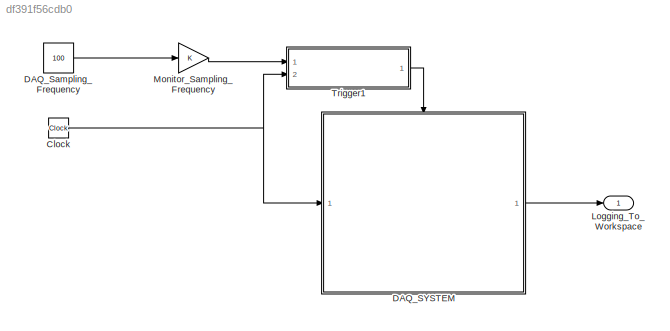
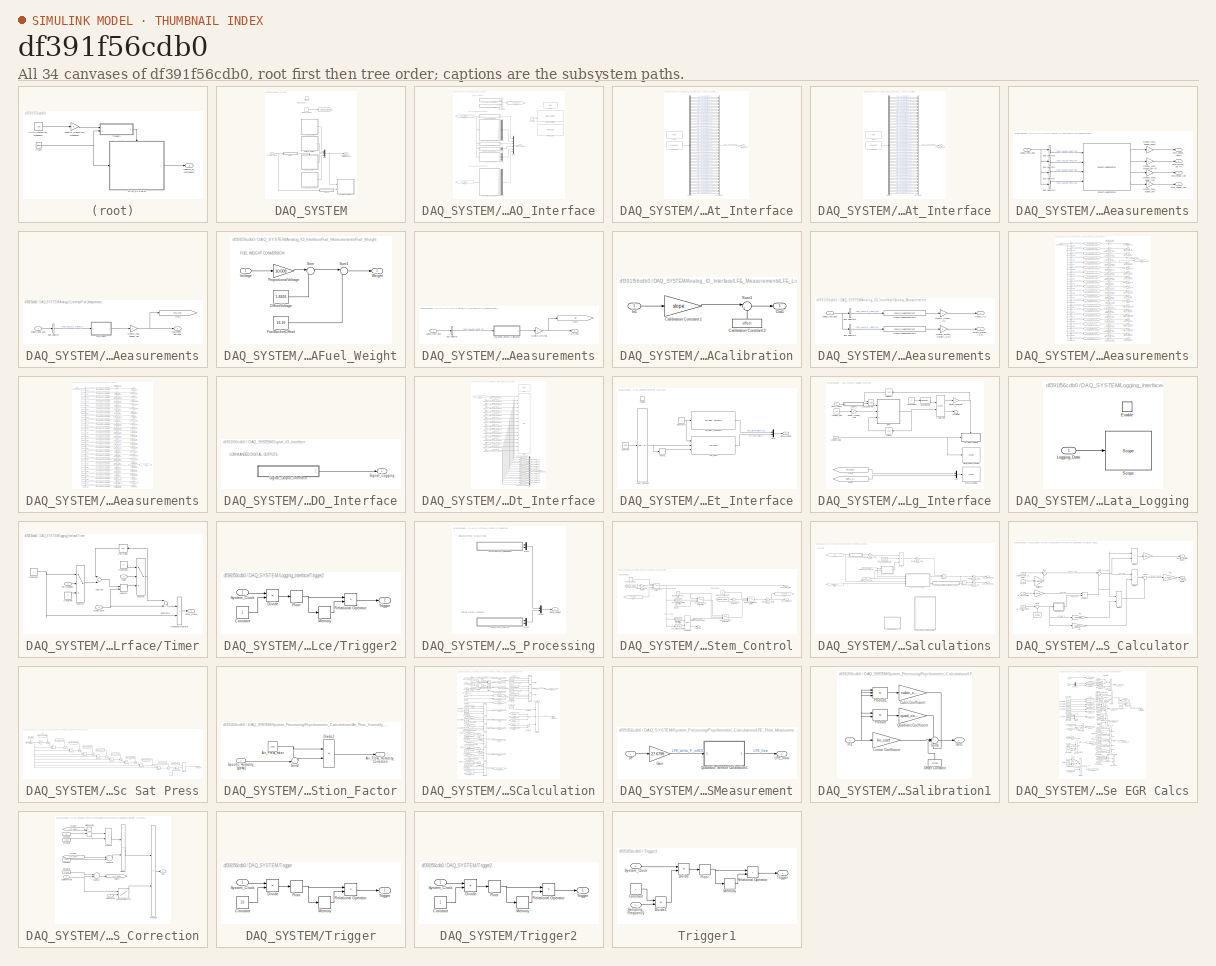
[diagram: thumbnail index - all 34 canvases of the model, root first then tree order]
MODEL slx_df391f56cdb0
KIND model
CONFIG AbsTol = auto
CONFIG EnableMultiTasking = on
CONFIG FixedStep = 0.001
CONFIG MaxStep = auto
CONFIG MinStep = auto
CONFIG RelTol = 1e-3
CONFIG SampleTimeConstraint = Unconstrained
CONFIG Solver = ode4
CONFIG SolverName = ode4
CONFIG StartTime = 0.0
CONFIG StopTime = 10000
BLOCK [Clock] Clock
BLOCK [SubSystem] DAQ_SYSTEM
  Ports = [1, 1, 0, 1]
  RequestExecContextInheritance = off
  Variant = off
BLOCK [Goto] DAQ_SYSTEM/ 
  GotoTag = Debug_Mode
  TagVisibility = global
BLOCK [SubSystem] DAQ_SYSTEM/Analog_IO_Interface
  Ports = [0, 1]
  RequestExecContextInheritance = off
  Variant = off
BLOCK [BusCreator] DAQ_SYSTEM/Analog_IO_Interface/Bus Creator
  DisplayOption = bar
  InheritFromInputs = on
  Inputs = 2
  Ports = [2, 1]
BLOCK [SubSystem] DAQ_SYSTEM/Analog_IO_Interface/CH1_Analog_Input_Interface
  Ports = [0, 1]
  RequestExecContextInheritance = off
  Variant = off
BLOCK [Reference] DAQ_SYSTEM/Analog_IO_Interface/CH1_Analog_Input_Interface/Analog input  REF=speedgoatlib_IO106/Analog input
  Ports = [0, 1]
  SourceBlock = speedgoatlib_IO106/Analog input
  SourceProductName = Simulink Real-Time: Speedgoat I/O Driver Library
  SourceType = ad_IO106
BLOCK [BusCreator] DAQ_SYSTEM/Analog_IO_Interface/CH1_Analog_Input_Interface/Bus Creator
  DisplayOption = bar
  InheritFromInputs = on
  Inputs = 64
  Ports = [64, 1]
BLOCK [Outport] DAQ_SYSTEM/Analog_IO_Interface/CH1_Analog_Input_Interface/CH1_ANALOG_INPUTS
  IconDisplay = Port number
BLOCK [Demux] DAQ_SYSTEM/Analog_IO_Interface/CH1_Analog_Input_Interface/Demux
  DisplayOption = bar
  Outputs = 64
  Ports = [1, 64]
BLOCK [Reference] DAQ_SYSTEM/Analog_IO_Interface/CH1_Analog_Input_Interface/Setup  REF=speedgoatlib_IO106/Setup
  Ports = []
  SourceBlock = speedgoatlib_IO106/Setup
  SourceProductName = Simulink Real-Time: Speedgoat I/O Driver Library
  SourceType = setup_IO106
BLOCK [SubSystem] DAQ_SYSTEM/Analog_IO_Interface/CH2_Analog_Input_Interface
  Ports = [0, 1]
  RequestExecContextInheritance = off
  Variant = off
BLOCK [Reference] DAQ_SYSTEM/Analog_IO_Interface/CH2_Analog_Input_Interface/Analog input  REF=speedgoatlib_IO106/Analog input
  Ports = [0, 1]
  SourceBlock = speedgoatlib_IO106/Analog input
  SourceProductName = Simulink Real-Time: Speedgoat I/O Driver Library
  SourceType = ad_IO106
BLOCK [BusCreator] DAQ_SYSTEM/Analog_IO_Interface/CH2_Analog_Input_Interface/Bus Creator
  DisplayOption = bar
  InheritFromInputs = on
  Inputs = 64
  Ports = [64, 1]
BLOCK [Outport] DAQ_SYSTEM/Analog_IO_Interface/CH2_Analog_Input_Interface/CH2_ANALOG_INPUTS
  IconDisplay = Port number
BLOCK [Demux] DAQ_SYSTEM/Analog_IO_Interface/CH2_Analog_Input_Interface/Demux
  DisplayOption = bar
  Outputs = 64
  Ports = [1, 64]
BLOCK [Reference] DAQ_SYSTEM/Analog_IO_Interface/CH2_Analog_Input_Interface/Setup  REF=speedgoatlib_IO106/Setup
  Ports = []
  SourceBlock = speedgoatlib_IO106/Setup
  SourceProductName = Simulink Real-Time: Speedgoat I/O Driver Library
  SourceType = setup_IO106
BLOCK [Constant] DAQ_SYSTEM/Analog_IO_Interface/Constant1
  Value = .2
BLOCK [SubSystem] DAQ_SYSTEM/Analog_IO_Interface/Dyno_Measurements
  Ports = [1, 4]
  RequestExecContextInheritance = off
  Variant = off
BLOCK [Inport] DAQ_SYSTEM/Analog_IO_Interface/Dyno_Measurements/Analog_Input_Bus
  IconDisplay = Port number
BLOCK [BusSelector] DAQ_SYSTEM/Analog_IO_Interface/Dyno_Measurements/Bus Selector1
  OutputAsBus = off
  OutputSignals = CH1_ANALOG_INPUTS.CH1_ANALOG_INPUT_34
  Ports = [1, 1]
BLOCK [BusSelector] DAQ_SYSTEM/Analog_IO_Interface/Dyno_Measurements/Bus Selector2
  OutputAsBus = off
  OutputSignals = CH1_ANALOG_INPUTS.CH1_ANALOG_INPUT_35
  Ports = [1, 1]
BLOCK [BusSelector] DAQ_SYSTEM/Analog_IO_Interface/Dyno_Measurements/Bus Selector3
  OutputAsBus = off
  OutputSignals = CH1_ANALOG_INPUTS.CH1_ANALOG_INPUT_36
  Ports = [1, 1]
BLOCK [BusSelector] DAQ_SYSTEM/Analog_IO_Interface/Dyno_Measurements/Bus Selector5
  OutputAsBus = off
  OutputSignals = CH1_ANALOG_INPUTS.CH1_ANALOG_INPUT_33
  Ports = [1, 1]
BLOCK [Reference] DAQ_SYSTEM/Analog_IO_Interface/Dyno_Measurements/ConvertAnalogToDyno  REF=NEXTCAR_Library/ConvertAnalogToDyno
  Ports = [4, 4]
  SourceBlock = NEXTCAR_Library/ConvertAnalogToDyno
  SourceProductName = NEXTCAR Library
  SourceType = Voltage [V] to Dyno Parameter Conversion
BLOCK [Outport] DAQ_SYSTEM/Analog_IO_Interface/Dyno_Measurements/Dyno_Power_[HP]
  IconDisplay = Port number
  Port = 3
BLOCK [Outport] DAQ_SYSTEM/Analog_IO_Interface/Dyno_Measurements/Dyno_Speed_[RPM]
  IconDisplay = Port number
BLOCK [Outport] DAQ_SYSTEM/Analog_IO_Interface/Dyno_Measurements/Dyno_Torque_[lbf-ft]
  IconDisplay = Port number
  Port = 2
BLOCK [Outport] DAQ_SYSTEM/Analog_IO_Interface/Dyno_Measurements/Dyno_Trigger_[int]
  IconDisplay = Port number
  Port = 4
BLOCK [Gain] DAQ_SYSTEM/Analog_IO_Interface/Dyno_Measurements/Monitor_Dyno_Power_[HP]
  OutDataTypeStr = Inherit: Inherit via internal rule
  ParamDataTypeStr = Inherit: Inherit via internal rule
  SaturateOnIntegerOverflow = off
BLOCK [Gain] DAQ_SYSTEM/Analog_IO_Interface/Dyno_Measurements/Monitor_Dyno_Speed_[RPM]
  OutDataTypeStr = Inherit: Inherit via internal rule
  ParamDataTypeStr = Inherit: Inherit via internal rule
  SaturateOnIntegerOverflow = off
BLOCK [Gain] DAQ_SYSTEM/Analog_IO_Interface/Dyno_Measurements/Monitor_Dyno_Torque_[lbf-ft]
  OutDataTypeStr = Inherit: Inherit via internal rule
  ParamDataTypeStr = Inherit: Inherit via internal rule
  SaturateOnIntegerOverflow = off
BLOCK [Gain] DAQ_SYSTEM/Analog_IO_Interface/Dyno_Measurements/Monitor_Dyno_Trigger_[int]
  OutDataTypeStr = Inherit: Inherit via internal rule
  ParamDataTypeStr = Inherit: Inherit via internal rule
  SaturateOnIntegerOverflow = off
BLOCK [From] DAQ_SYSTEM/Analog_IO_Interface/From5
  GotoTag = ANALOG_INPUT_BUS
  TagVisibility = global
BLOCK [From] DAQ_SYSTEM/Analog_IO_Interface/From6
  GotoTag = ANALOG_INPUT_BUS
  TagVisibility = global
BLOCK [SubSystem] DAQ_SYSTEM/Analog_IO_Interface/Fuel_Measurements
  Ports = [1, 1]
  RequestExecContextInheritance = off
  Variant = off
BLOCK [Inport] DAQ_SYSTEM/Analog_IO_Interface/Fuel_Measurements/Analog_Input_Bus 
  IconDisplay = Port number
BLOCK [BusSelector] DAQ_SYSTEM/Analog_IO_Interface/Fuel_Measurements/Bus Selector
  OutputAsBus = off
  OutputSignals = CH1_ANALOG_INPUTS.CH1_ANALOG_INPUT_1
  Ports = [1, 1]
BLOCK [SubSystem] DAQ_SYSTEM/Analog_IO_Interface/Fuel_Measurements/Fuel_Weight
  Ports = [1, 1]
  RequestExecContextInheritance = off
  Variant = off
BLOCK [Constant] DAQ_SYSTEM/Analog_IO_Interface/Fuel_Measurements/Fuel_Weight/FuelBucketOffset  
  Value = 16.16
BLOCK [Constant] DAQ_SYSTEM/Analog_IO_Interface/Fuel_Measurements/Fuel_Weight/OffsetVoltage 
  Value = 1.8826
BLOCK [Gain] DAQ_SYSTEM/Analog_IO_Interface/Fuel_Measurements/Fuel_Weight/ProportionalVoltage 
  Gain = 10.009
  OutDataTypeStr = Inherit: Inherit via internal rule
  ParamDataTypeStr = Inherit: Inherit via internal rule
  SaturateOnIntegerOverflow = off
BLOCK [Sum] DAQ_SYSTEM/Analog_IO_Interface/Fuel_Measurements/Fuel_Weight/Sum
  IconShape = round
  InputSameDT = off
  Inputs = |+-
  OutDataTypeStr = Inherit: Inherit via internal rule
  Ports = [2, 1]
  SaturateOnIntegerOverflow = off
BLOCK [Sum] DAQ_SYSTEM/Analog_IO_Interface/Fuel_Measurements/Fuel_Weight/Sum1
  IconShape = round
  InputSameDT = off
  Inputs = |+-
  OutDataTypeStr = Inherit: Inherit via internal rule
  Ports = [2, 1]
  SaturateOnIntegerOverflow = off
BLOCK [Inport] DAQ_SYSTEM/Analog_IO_Interface/Fuel_Measurements/Fuel_Weight/Voltage
  IconDisplay = Port number
BLOCK [Outport] DAQ_SYSTEM/Analog_IO_Interface/Fuel_Measurements/Fuel_Weight/Weight
  IconDisplay = Port number
BLOCK [Outport] DAQ_SYSTEM/Analog_IO_Interface/Fuel_Measurements/Fuel_Weight_[lb][kPa]
  IconDisplay = Port number
BLOCK [Goto] DAQ_SYSTEM/Analog_IO_Interface/Fuel_Measurements/Goto
  GotoTag = Fuel_Weight
BLOCK [Gain] DAQ_SYSTEM/Analog_IO_Interface/Fuel_Measurements/Monitor_Fuel_Weight_[lb]
  OutDataTypeStr = Inherit: Inherit via internal rule
  ParamDataTypeStr = Inherit: Inherit via internal rule
  SaturateOnIntegerOverflow = off
BLOCK [Goto] DAQ_SYSTEM/Analog_IO_Interface/Goto2
  GotoTag = ANALOG_INPUT_BUS
  TagVisibility = global
BLOCK [SubSystem] DAQ_SYSTEM/Analog_IO_Interface/LFE_Measurements
  Ports = [1, 1]
  RequestExecContextInheritance = off
  Variant = off
BLOCK [Inport] DAQ_SYSTEM/Analog_IO_Interface/LFE_Measurements/Analog_Input_Bus
  IconDisplay = Port number
BLOCK [BusSelector] DAQ_SYSTEM/Analog_IO_Interface/LFE_Measurements/Bus Selector
  OutputAsBus = off
  OutputSignals = CH1_ANALOG_INPUTS.CH1_ANALOG_INPUT_27
  Ports = [1, 1]
BLOCK [Outport] DAQ_SYSTEM/Analog_IO_Interface/LFE_Measurements/DP_[Psi]
  IconDisplay = Port number
BLOCK [Goto] DAQ_SYSTEM/Analog_IO_Interface/LFE_Measurements/Goto
  GotoTag = DP
  TagVisibility = global
BLOCK [SubSystem] DAQ_SYSTEM/Analog_IO_Interface/LFE_Measurements/LFE_Linear_Sensor_Calibration
  Ports = [1, 1]
  RequestExecContextInheritance = off
  Variant = off
BLOCK [Gain] DAQ_SYSTEM/Analog_IO_Interface/LFE_Measurements/LFE_Linear_Sensor_Calibration/Calibration Constant 1
  Gain = slope
BLOCK [Constant] DAQ_SYSTEM/Analog_IO_Interface/LFE_Measurements/LFE_Linear_Sensor_Calibration/Calibration Constant 2
  Value = offset
BLOCK [Inport] DAQ_SYSTEM/Analog_IO_Interface/LFE_Measurements/LFE_Linear_Sensor_Calibration/In1
  IconDisplay = Port number
BLOCK [Outport] DAQ_SYSTEM/Analog_IO_Interface/LFE_Measurements/LFE_Linear_Sensor_Calibration/Out1
  IconDisplay = Port number
BLOCK [Sum] DAQ_SYSTEM/Analog_IO_Interface/LFE_Measurements/LFE_Linear_Sensor_Calibration/Sum1
  IconShape = round
  Inputs = |++
  Ports = [2, 1]
BLOCK [Gain] DAQ_SYSTEM/Analog_IO_Interface/LFE_Measurements/Monitor_DP_[Psi]
  OutDataTypeStr = Inherit: Inherit via internal rule
  ParamDataTypeStr = Inherit: Inherit via internal rule
  SaturateOnIntegerOverflow = off
BLOCK [Mux] DAQ_SYSTEM/Analog_IO_Interface/Mux2
  DisplayOption = bar
  Inputs = 21
  Ports = [21, 1]
BLOCK [Mux] DAQ_SYSTEM/Analog_IO_Interface/Mux3
  DisplayOption = bar
  Ports = [4, 1]
BLOCK [Mux] DAQ_SYSTEM/Analog_IO_Interface/Mux4
  DisplayOption = bar
  Inputs = 2
  Ports = [2, 1]
BLOCK [Mux] DAQ_SYSTEM/Analog_IO_Interface/Mux5
  DisplayOption = bar
  Inputs = 26
  Ports = [26, 1]
BLOCK [Mux] DAQ_SYSTEM/Analog_IO_Interface/Mux6
  DisplayOption = bar
  Inputs = 6
  Ports = [6, 1]
BLOCK [SubSystem] DAQ_SYSTEM/Analog_IO_Interface/Opacity_Measurements
  Ports = [1, 2]
  RequestExecContextInheritance = off
  Variant = off
BLOCK [Inport] DAQ_SYSTEM/Analog_IO_Interface/Opacity_Measurements/Analog_Input_Bus
  IconDisplay = Port number
BLOCK [BusSelector] DAQ_SYSTEM/Analog_IO_Interface/Opacity_Measurements/Bus Selector1
  OutputAsBus = off
  OutputSignals = CH1_ANALOG_INPUTS.CH1_ANALOG_INPUT_30
  Ports = [1, 1]
BLOCK [BusSelector] DAQ_SYSTEM/Analog_IO_Interface/Opacity_Measurements/Bus Selector5
  OutputAsBus = off
  OutputSignals = CH1_ANALOG_INPUTS.CH1_ANALOG_INPUT_29
  Ports = [1, 1]
BLOCK [Reference] DAQ_SYSTEM/Analog_IO_Interface/Opacity_Measurements/ConvertAnalogToPercent1  REF=NEXTCAR_Library/ConvertAnalogToPercent
  Ports = [1, 1]
  SourceBlock = NEXTCAR_Library/ConvertAnalogToPercent
  SourceProductName = NEXTCAR Library
  SourceType = Voltage [V] to Percentage [%] Conversion
BLOCK [Reference] DAQ_SYSTEM/Analog_IO_Interface/Opacity_Measurements/ConvertAnalogToPercent2  REF=NEXTCAR_Library/ConvertAnalogToPercent
  Ports = [1, 1]
  SourceBlock = NEXTCAR_Library/ConvertAnalogToPercent
  SourceProductName = NEXTCAR Library
  SourceType = Voltage [V] to Percentage [%] Conversion
BLOCK [Gain] DAQ_SYSTEM/Analog_IO_Interface/Opacity_Measurements/Monitor_Opacity_[%]
  OutDataTypeStr = Inherit: Inherit via internal rule
  ParamDataTypeStr = Inherit: Inherit via internal rule
  SaturateOnIntegerOverflow = off
BLOCK [Gain] DAQ_SYSTEM/Analog_IO_Interface/Opacity_Measurements/Monitor_Smoke_Density_[1//m]
  OutDataTypeStr = Inherit: Inherit via internal rule
  ParamDataTypeStr = Inherit: Inherit via internal rule
  SaturateOnIntegerOverflow = off
BLOCK [Outport] DAQ_SYSTEM/Analog_IO_Interface/Opacity_Measurements/Opacity_[%]
  IconDisplay = Port number
BLOCK [Outport] DAQ_SYSTEM/Analog_IO_Interface/Opacity_Measurements/Smoke_Density_[1//m]
  IconDisplay = Port number
  Port = 2
BLOCK [Reference] DAQ_SYSTEM/Analog_IO_Interface/PWM Capture  REF=speedgoatlib_fpga_pwm/PWM Capture
  Commented = on
  Ports = [0, 3]
  SourceBlock = speedgoatlib_fpga_pwm/PWM Capture
  SourceProductName = Simulink Real-Time: Speedgoat I/O Driver Library
  SourceType = cap_fpga_1
BLOCK [Reference] DAQ_SYSTEM/Analog_IO_Interface/PWM generation (5)  REF=speedgoatlib_fpga_pwm/PWM generation (5)
  Ports = [2]
  SourceBlock = speedgoatlib_fpga_pwm/PWM generation (5)
  SourceProductName = Simulink Real-Time: Speedgoat I/O Driver Library
  SourceType = pwm_fpga_5
BLOCK [SubSystem] DAQ_SYSTEM/Analog_IO_Interface/Pressure_Measurements
  Ports = [1, 21]
  RequestExecContextInheritance = off
  Variant = off
BLOCK [Inport] DAQ_SYSTEM/Analog_IO_Interface/Pressure_Measurements/Analog_Input_Bus
  IconDisplay = Port number
BLOCK [Outport] DAQ_SYSTEM/Analog_IO_Interface/Pressure_Measurements/Block_Intake_Pressure_[kPa]
  IconDisplay = Port number
  Port = 20
BLOCK [Outport] DAQ_SYSTEM/Analog_IO_Interface/Pressure_Measurements/Blowby_Pressure_[kPa]
  IconDisplay = Port number
  Port = 9
BLOCK [BusSelector] DAQ_SYSTEM/Analog_IO_Interface/Pressure_Measurements/Bus Selector
  OutputAsBus = off
  OutputSignals = CH1_ANALOG_INPUTS.CH1_ANALOG_INPUT_7
  Ports = [1, 1]
BLOCK [BusSelector] DAQ_SYSTEM/Analog_IO_Interface/Pressure_Measurements/Bus Selector1
  OutputAsBus = off
  OutputSignals = CH1_ANALOG_INPUTS.CH1_ANALOG_INPUT_16
  Ports = [1, 1]
BLOCK [BusSelector] DAQ_SYSTEM/Analog_IO_Interface/Pressure_Measurements/Bus Selector10
  OutputAsBus = off
  OutputSignals = CH1_ANALOG_INPUTS.CH1_ANALOG_INPUT_17
  Ports = [1, 1]
BLOCK [BusSelector] DAQ_SYSTEM/Analog_IO_Interface/Pressure_Measurements/Bus Selector11
  OutputAsBus = off
  OutputSignals = CH1_ANALOG_INPUTS.CH1_ANALOG_INPUT_18
  Ports = [1, 1]
BLOCK [BusSelector] DAQ_SYSTEM/Analog_IO_Interface/Pressure_Measurements/Bus Selector12
  OutputAsBus = off
  OutputSignals = CH1_ANALOG_INPUTS.CH1_ANALOG_INPUT_19
  Ports = [1, 1]
BLOCK [BusSelector] DAQ_SYSTEM/Analog_IO_Interface/Pressure_Measurements/Bus Selector13
  OutputAsBus = off
  OutputSignals = CH1_ANALOG_INPUTS.CH1_ANALOG_INPUT_21
  Ports = [1, 1]
BLOCK [BusSelector] DAQ_SYSTEM/Analog_IO_Interface/Pressure_Measurements/Bus Selector14
  OutputAsBus = off
  OutputSignals = CH1_ANALOG_INPUTS.CH1_ANALOG_INPUT_22
  Ports = [1, 1]
BLOCK [BusSelector] DAQ_SYSTEM/Analog_IO_Interface/Pressure_Measurements/Bus Selector15
  OutputAsBus = off
  OutputSignals = CH1_ANALOG_INPUTS.CH1_ANALOG_INPUT_23
  Ports = [1, 1]
BLOCK [BusSelector] DAQ_SYSTEM/Analog_IO_Interface/Pressure_Measurements/Bus Selector16
  OutputAsBus = off
  OutputSignals = CH1_ANALOG_INPUTS.CH1_ANALOG_INPUT_24
  Ports = [1, 1]
BLOCK [BusSelector] DAQ_SYSTEM/Analog_IO_Interface/Pressure_Measurements/Bus Selector17
  OutputAsBus = off
  OutputSignals = CH1_ANALOG_INPUTS.CH1_ANALOG_INPUT_25
  Ports = [1, 1]
BLOCK [BusSelector] DAQ_SYSTEM/Analog_IO_Interface/Pressure_Measurements/Bus Selector18
  OutputAsBus = off
  OutputSignals = CH1_ANALOG_INPUTS.CH1_ANALOG_INPUT_3
  Ports = [1, 1]
BLOCK [BusSelector] DAQ_SYSTEM/Analog_IO_Interface/Pressure_Measurements/Bus Selector19
  OutputAsBus = off
  OutputSignals = CH1_ANALOG_INPUTS.CH1_ANALOG_INPUT_4
  Ports = [1, 1]
BLOCK [BusSelector] DAQ_SYSTEM/Analog_IO_Interface/Pressure_Measurements/Bus Selector2
  OutputAsBus = off
  OutputSignals = CH1_ANALOG_INPUTS.CH1_ANALOG_INPUT_12
  Ports = [1, 1]
BLOCK [BusSelector] DAQ_SYSTEM/Analog_IO_Interface/Pressure_Measurements/Bus Selector20
  OutputAsBus = off
  OutputSignals = CH1_ANALOG_INPUTS.CH1_ANALOG_INPUT_2
  Ports = [1, 1]
BLOCK [BusSelector] DAQ_SYSTEM/Analog_IO_Interface/Pressure_Measurements/Bus Selector3
  OutputAsBus = off
  OutputSignals = CH1_ANALOG_INPUTS.CH1_ANALOG_INPUT_26
  Ports = [1, 1]
BLOCK [BusSelector] DAQ_SYSTEM/Analog_IO_Interface/Pressure_Measurements/Bus Selector4
  OutputAsBus = off
  OutputSignals = CH1_ANALOG_INPUTS.CH1_ANALOG_INPUT_6
  Ports = [1, 1]
BLOCK [BusSelector] DAQ_SYSTEM/Analog_IO_Interface/Pressure_Measurements/Bus Selector5
  OutputAsBus = off
  OutputSignals = CH1_ANALOG_INPUTS.CH1_ANALOG_INPUT_8
  Ports = [1, 1]
BLOCK [BusSelector] DAQ_SYSTEM/Analog_IO_Interface/Pressure_Measurements/Bus Selector6
  OutputAsBus = off
  OutputSignals = CH1_ANALOG_INPUTS.CH1_ANALOG_INPUT_10
  Ports = [1, 1]
BLOCK [BusSelector] DAQ_SYSTEM/Analog_IO_Interface/Pressure_Measurements/Bus Selector7
  OutputAsBus = off
  OutputSignals = CH1_ANALOG_INPUTS.CH1_ANALOG_INPUT_11
  Ports = [1, 1]
BLOCK [BusSelector] DAQ_SYSTEM/Analog_IO_Interface/Pressure_Measurements/Bus Selector8
  OutputAsBus = off
  OutputSignals = CH1_ANALOG_INPUTS.CH1_ANALOG_INPUT_14
  Ports = [1, 1]
BLOCK [BusSelector] DAQ_SYSTEM/Analog_IO_Interface/Pressure_Measurements/Bus Selector9
  OutputAsBus = off
  OutputSignals = CH1_ANALOG_INPUTS.CH1_ANALOG_INPUT_15
  Ports = [1, 1]
BLOCK [Outport] DAQ_SYSTEM/Analog_IO_Interface/Pressure_Measurements/CAC_In_Pressure_[kPa]
  IconDisplay = Port number
  Port = 10
BLOCK [Outport] DAQ_SYSTEM/Analog_IO_Interface/Pressure_Measurements/CAC_Out_Pressure_[kPa]
  IconDisplay = Port number
  Port = 13
BLOCK [Outport] DAQ_SYSTEM/Analog_IO_Interface/Pressure_Measurements/Compressor_In_Pressure_[kPa]
  IconDisplay = Port number
  Port = 5
BLOCK [Outport] DAQ_SYSTEM/Analog_IO_Interface/Pressure_Measurements/Compressor_Out_Pressure_[kPa]
  IconDisplay = Port number
  Port = 11
BLOCK [Reference] DAQ_SYSTEM/Analog_IO_Interface/Pressure_Measurements/ConvertAnalogTokPa  REF=NEXTCAR_Library/ConvertAnalogTokPa
  Ports = [1, 1]
  SourceBlock = NEXTCAR_Library/ConvertAnalogTokPa
  SourceProductName = NEXTCAR Library
  SourceType = Voltage [V] to Pressure [kPa] Conversion
BLOCK [Reference] DAQ_SYSTEM/Analog_IO_Interface/Pressure_Measurements/ConvertAnalogTokPa1  REF=NEXTCAR_Library/ConvertAnalogTokPa
  Ports = [1, 1]
  SourceBlock = NEXTCAR_Library/ConvertAnalogTokPa
  SourceProductName = NEXTCAR Library
  SourceType = Voltage [V] to Pressure [kPa] Conversion
BLOCK [Reference] DAQ_SYSTEM/Analog_IO_Interface/Pressure_Measurements/ConvertAnalogTokPa10  REF=NEXTCAR_Library/ConvertAnalogTokPa
  Ports = [1, 1]
  SourceBlock = NEXTCAR_Library/ConvertAnalogTokPa
  SourceProductName = NEXTCAR Library
  SourceType = Voltage [V] to Pressure [kPa] Conversion
BLOCK [Reference] DAQ_SYSTEM/Analog_IO_Interface/Pressure_Measurements/ConvertAnalogTokPa11  REF=NEXTCAR_Library/ConvertAnalogTokPa
  Ports = [1, 1]
  SourceBlock = NEXTCAR_Library/ConvertAnalogTokPa
  SourceProductName = NEXTCAR Library
  SourceType = Voltage [V] to Pressure [kPa] Conversion
BLOCK [Reference] DAQ_SYSTEM/Analog_IO_Interface/Pressure_Measurements/ConvertAnalogTokPa12  REF=NEXTCAR_Library/ConvertAnalogTokPa
  Ports = [1, 1]
  SourceBlock = NEXTCAR_Library/ConvertAnalogTokPa
  SourceProductName = NEXTCAR Library
  SourceType = Voltage [V] to Pressure [kPa] Conversion
BLOCK [Reference] DAQ_SYSTEM/Analog_IO_Interface/Pressure_Measurements/ConvertAnalogTokPa13  REF=NEXTCAR_Library/ConvertAnalogTokPa
  Ports = [1, 1]
  SourceBlock = NEXTCAR_Library/ConvertAnalogTokPa
  SourceProductName = NEXTCAR Library
  SourceType = Voltage [V] to Pressure [kPa] Conversion
BLOCK [Reference] DAQ_SYSTEM/Analog_IO_Interface/Pressure_Measurements/ConvertAnalogTokPa14  REF=NEXTCAR_Library/ConvertAnalogTokPa
  Ports = [1, 1]
  SourceBlock = NEXTCAR_Library/ConvertAnalogTokPa
  SourceProductName = NEXTCAR Library
  SourceType = Voltage [V] to Pressure [kPa] Conversion
BLOCK [Reference] DAQ_SYSTEM/Analog_IO_Interface/Pressure_Measurements/ConvertAnalogTokPa15  REF=NEXTCAR_Library/ConvertAnalogTokPa
  Ports = [1, 1]
  SourceBlock = NEXTCAR_Library/ConvertAnalogTokPa
  SourceProductName = NEXTCAR Library
  SourceType = Voltage [V] to Pressure [kPa] Conversion
BLOCK [Reference] DAQ_SYSTEM/Analog_IO_Interface/Pressure_Measurements/ConvertAnalogTokPa16  REF=NEXTCAR_Library/ConvertAnalogTokPa
  Ports = [1, 1]
  SourceBlock = NEXTCAR_Library/ConvertAnalogTokPa
  SourceProductName = NEXTCAR Library
  SourceType = Voltage [V] to Pressure [kPa] Conversion
BLOCK [Reference] DAQ_SYSTEM/Analog_IO_Interface/Pressure_Measurements/ConvertAnalogTokPa17  REF=NEXTCAR_Library/ConvertAnalogTokPa
  Ports = [1, 1]
  SourceBlock = NEXTCAR_Library/ConvertAnalogTokPa
  SourceProductName = NEXTCAR Library
  SourceType = Voltage [V] to Pressure [kPa] Conversion
BLOCK [Reference] DAQ_SYSTEM/Analog_IO_Interface/Pressure_Measurements/ConvertAnalogTokPa18  REF=NEXTCAR_Library/ConvertAnalogTokPa
  Ports = [1, 1]
  SourceBlock = NEXTCAR_Library/ConvertAnalogTokPa
  SourceProductName = NEXTCAR Library
  SourceType = Voltage [V] to Pressure [kPa] Conversion
BLOCK [Reference] DAQ_SYSTEM/Analog_IO_Interface/Pressure_Measurements/ConvertAnalogTokPa19  REF=NEXTCAR_Library/ConvertAnalogTokPa
  Ports = [1, 1]
  SourceBlock = NEXTCAR_Library/ConvertAnalogTokPa
  SourceProductName = NEXTCAR Library
  SourceType = Voltage [V] to Pressure [kPa] Conversion
BLOCK [Reference] DAQ_SYSTEM/Analog_IO_Interface/Pressure_Measurements/ConvertAnalogTokPa2  REF=NEXTCAR_Library/ConvertAnalogTokPa
  Ports = [1, 1]
  SourceBlock = NEXTCAR_Library/ConvertAnalogTokPa
  SourceProductName = NEXTCAR Library
  SourceType = Voltage [V] to Pressure [kPa] Conversion
BLOCK [Reference] DAQ_SYSTEM/Analog_IO_Interface/Pressure_Measurements/ConvertAnalogTokPa20  REF=NEXTCAR_Library/ConvertAnalogTokPa
  Ports = [1, 1]
  SourceBlock = NEXTCAR_Library/ConvertAnalogTokPa
  SourceProductName = NEXTCAR Library
  SourceType = Voltage [V] to Pressure [kPa] Conversion
BLOCK [Reference] DAQ_SYSTEM/Analog_IO_Interface/Pressure_Measurements/ConvertAnalogTokPa3  REF=NEXTCAR_Library/ConvertAnalogTokPa
  Ports = [1, 1]
  SourceBlock = NEXTCAR_Library/ConvertAnalogTokPa
  SourceProductName = NEXTCAR Library
  SourceType = Voltage [V] to Pressure [kPa] Conversion
BLOCK [Reference] DAQ_SYSTEM/Analog_IO_Interface/Pressure_Measurements/ConvertAnalogTokPa4  REF=NEXTCAR_Library/ConvertAnalogTokPa
  Ports = [1, 1]
  SourceBlock = NEXTCAR_Library/ConvertAnalogTokPa
  SourceProductName = NEXTCAR Library
  SourceType = Voltage [V] to Pressure [kPa] Conversion
BLOCK [Reference] DAQ_SYSTEM/Analog_IO_Interface/Pressure_Measurements/ConvertAnalogTokPa5  REF=NEXTCAR_Library/ConvertAnalogTokPa
  Ports = [1, 1]
  SourceBlock = NEXTCAR_Library/ConvertAnalogTokPa
  SourceProductName = NEXTCAR Library
  SourceType = Voltage [V] to Pressure [kPa] Conversion
BLOCK [Reference] DAQ_SYSTEM/Analog_IO_Interface/Pressure_Measurements/ConvertAnalogTokPa6  REF=NEXTCAR_Library/ConvertAnalogTokPa
  Ports = [1, 1]
  SourceBlock = NEXTCAR_Library/ConvertAnalogTokPa
  SourceProductName = NEXTCAR Library
  SourceType = Voltage [V] to Pressure [kPa] Conversion
BLOCK [Reference] DAQ_SYSTEM/Analog_IO_Interface/Pressure_Measurements/ConvertAnalogTokPa7  REF=NEXTCAR_Library/ConvertAnalogTokPa
  Ports = [1, 1]
  SourceBlock = NEXTCAR_Library/ConvertAnalogTokPa
  SourceProductName = NEXTCAR Library
  SourceType = Voltage [V] to Pressure [kPa] Conversion
BLOCK [Reference] DAQ_SYSTEM/Analog_IO_Interface/Pressure_Measurements/ConvertAnalogTokPa8  REF=NEXTCAR_Library/ConvertAnalogTokPa
  Ports = [1, 1]
  SourceBlock = NEXTCAR_Library/ConvertAnalogTokPa
  SourceProductName = NEXTCAR Library
  SourceType = Voltage [V] to Pressure [kPa] Conversion
BLOCK [Reference] DAQ_SYSTEM/Analog_IO_Interface/Pressure_Measurements/ConvertAnalogTokPa9  REF=NEXTCAR_Library/ConvertAnalogTokPa
  Ports = [1, 1]
  SourceBlock = NEXTCAR_Library/ConvertAnalogTokPa
  SourceProductName = NEXTCAR Library
  SourceType = Voltage [V] to Pressure [kPa] Conversion
BLOCK [Outport] DAQ_SYSTEM/Analog_IO_Interface/Pressure_Measurements/Coolant_In_Pressure_[kPa]
  IconDisplay = Port number
  Port = 17
BLOCK [Outport] DAQ_SYSTEM/Analog_IO_Interface/Pressure_Measurements/Coolant_Out_Pressure_[kPa]
  IconDisplay = Port number
  Port = 21
BLOCK [Outport] DAQ_SYSTEM/Analog_IO_Interface/Pressure_Measurements/Crank_Case_Pressure_[kPa]
  IconDisplay = Port number
  Port = 4
BLOCK [Outport] DAQ_SYSTEM/Analog_IO_Interface/Pressure_Measurements/EGR_Bypass_Out_Pressure_[kPa]
  IconDisplay = Port number
  Port = 14
BLOCK [Outport] DAQ_SYSTEM/Analog_IO_Interface/Pressure_Measurements/EGR_Coolant_In_Pressure_[kPa]
  IconDisplay = Port number
  Port = 18
BLOCK [Outport] DAQ_SYSTEM/Analog_IO_Interface/Pressure_Measurements/EGR_Coolant_Out_Pressure_[kPa]
  IconDisplay = Port number
  Port = 19
BLOCK [Outport] DAQ_SYSTEM/Analog_IO_Interface/Pressure_Measurements/EGR_Cooler_Out_Pressure_[kPa]
  IconDisplay = Port number
  Port = 16
BLOCK [Outport] DAQ_SYSTEM/Analog_IO_Interface/Pressure_Measurements/EGR_In_Pressure_[kPa]
  IconDisplay = Port number
  Port = 6
BLOCK [Outport] DAQ_SYSTEM/Analog_IO_Interface/Pressure_Measurements/Fuel_Pump_In_Pressure_[kPa]
  IconDisplay = Port number
  Port = 2
BLOCK [Outport] DAQ_SYSTEM/Analog_IO_Interface/Pressure_Measurements/Fuel_Return_Pressure_[kPa]
  IconDisplay = Port number
  Port = 3
BLOCK [Goto] DAQ_SYSTEM/Analog_IO_Interface/Pressure_Measurements/Goto
  GotoTag = Compressor_In_Pressure
  TagVisibility = global
BLOCK [Outport] DAQ_SYSTEM/Analog_IO_Interface/Pressure_Measurements/Intake_Manifold_Pressure_[kPa]
  IconDisplay = Port number
  Port = 15
BLOCK [Gain] DAQ_SYSTEM/Analog_IO_Interface/Pressure_Measurements/Monitor_Block_Intake_Pressure_[kPa]
  OutDataTypeStr = Inherit: Inherit via internal rule
  ParamDataTypeStr = Inherit: Inherit via internal rule
  SaturateOnIntegerOverflow = off
BLOCK [Gain] DAQ_SYSTEM/Analog_IO_Interface/Pressure_Measurements/Monitor_Blowby_Pressure_[kPa]
  OutDataTypeStr = Inherit: Inherit via internal rule
  ParamDataTypeStr = Inherit: Inherit via internal rule
  SaturateOnIntegerOverflow = off
BLOCK [Gain] DAQ_SYSTEM/Analog_IO_Interface/Pressure_Measurements/Monitor_CAC_In_Pressure_[kPa]
  OutDataTypeStr = Inherit: Inherit via internal rule
  ParamDataTypeStr = Inherit: Inherit via internal rule
  SaturateOnIntegerOverflow = off
BLOCK [Gain] DAQ_SYSTEM/Analog_IO_Interface/Pressure_Measurements/Monitor_CAC_Out_Pressure_[kPa]
  OutDataTypeStr = Inherit: Inherit via internal rule
  ParamDataTypeStr = Inherit: Inherit via internal rule
  SaturateOnIntegerOverflow = off
BLOCK [Gain] DAQ_SYSTEM/Analog_IO_Interface/Pressure_Measurements/Monitor_Compressor_In_Pressure_[kPa]
  OutDataTypeStr = Inherit: Inherit via internal rule
  ParamDataTypeStr = Inherit: Inherit via internal rule
  SaturateOnIntegerOverflow = off
BLOCK [Gain] DAQ_SYSTEM/Analog_IO_Interface/Pressure_Measurements/Monitor_Compressor_Out_Pressure_[kPa]
  OutDataTypeStr = Inherit: Inherit via internal rule
  ParamDataTypeStr = Inherit: Inherit via internal rule
  SaturateOnIntegerOverflow = off
BLOCK [Gain] DAQ_SYSTEM/Analog_IO_Interface/Pressure_Measurements/Monitor_Coolant_In_Pressure_[kPa]
  OutDataTypeStr = Inherit: Inherit via internal rule
  ParamDataTypeStr = Inherit: Inherit via internal rule
  SaturateOnIntegerOverflow = off
BLOCK [Gain] DAQ_SYSTEM/Analog_IO_Interface/Pressure_Measurements/Monitor_Coolant_Out_Pressure_[kPa]
  OutDataTypeStr = Inherit: Inherit via internal rule
  ParamDataTypeStr = Inherit: Inherit via internal rule
  SaturateOnIntegerOverflow = off
BLOCK [Gain] DAQ_SYSTEM/Analog_IO_Interface/Pressure_Measurements/Monitor_Crank_Case_Pressure_[kPa]
  OutDataTypeStr = Inherit: Inherit via internal rule
  ParamDataTypeStr = Inherit: Inherit via internal rule
  SaturateOnIntegerOverflow = off
BLOCK [Gain] DAQ_SYSTEM/Analog_IO_Interface/Pressure_Measurements/Monitor_EGR_Bypass_Out_Pressure_[kPa]
  OutDataTypeStr = Inherit: Inherit via internal rule
  ParamDataTypeStr = Inherit: Inherit via internal rule
  SaturateOnIntegerOverflow = off
BLOCK [Gain] DAQ_SYSTEM/Analog_IO_Interface/Pressure_Measurements/Monitor_EGR_Coolant_In_Pressure_[kPa]
  OutDataTypeStr = Inherit: Inherit via internal rule
  ParamDataTypeStr = Inherit: Inherit via internal rule
  SaturateOnIntegerOverflow = off
BLOCK [Gain] DAQ_SYSTEM/Analog_IO_Interface/Pressure_Measurements/Monitor_EGR_Coolant_Out_Pressure_[kPa]
  OutDataTypeStr = Inherit: Inherit via internal rule
  ParamDataTypeStr = Inherit: Inherit via internal rule
  SaturateOnIntegerOverflow = off
BLOCK [Gain] DAQ_SYSTEM/Analog_IO_Interface/Pressure_Measurements/Monitor_EGR_Cooler_Out_Pressure_[kPa]
  OutDataTypeStr = Inherit: Inherit via internal rule
  ParamDataTypeStr = Inherit: Inherit via internal rule
  SaturateOnIntegerOverflow = off
BLOCK [Gain] DAQ_SYSTEM/Analog_IO_Interface/Pressure_Measurements/Monitor_EGR_In_Pressure_[kPa]
  OutDataTypeStr = Inherit: Inherit via internal rule
  ParamDataTypeStr = Inherit: Inherit via internal rule
  SaturateOnIntegerOverflow = off
BLOCK [Gain] DAQ_SYSTEM/Analog_IO_Interface/Pressure_Measurements/Monitor_Fuel_Pump_In_Pressure_[kPa]
  OutDataTypeStr = Inherit: Inherit via internal rule
  ParamDataTypeStr = Inherit: Inherit via internal rule
  SaturateOnIntegerOverflow = off
BLOCK [Gain] DAQ_SYSTEM/Analog_IO_Interface/Pressure_Measurements/Monitor_Fuel_Return_Pressure_[kPa]
  OutDataTypeStr = Inherit: Inherit via internal rule
  ParamDataTypeStr = Inherit: Inherit via internal rule
  SaturateOnIntegerOverflow = off
BLOCK [Gain] DAQ_SYSTEM/Analog_IO_Interface/Pressure_Measurements/Monitor_Intake_Manifold_Pressure_[kPa]
  OutDataTypeStr = Inherit: Inherit via internal rule
  ParamDataTypeStr = Inherit: Inherit via internal rule
  SaturateOnIntegerOverflow = off
BLOCK [Gain] DAQ_SYSTEM/Analog_IO_Interface/Pressure_Measurements/Monitor_Oil_Refill_Pressure_[kPa]
  OutDataTypeStr = Inherit: Inherit via internal rule
  ParamDataTypeStr = Inherit: Inherit via internal rule
  SaturateOnIntegerOverflow = off
BLOCK [Gain] DAQ_SYSTEM/Analog_IO_Interface/Pressure_Measurements/Monitor_Turbine_Front_Pressure_[kPa]
  OutDataTypeStr = Inherit: Inherit via internal rule
  ParamDataTypeStr = Inherit: Inherit via internal rule
  SaturateOnIntegerOverflow = off
BLOCK [Gain] DAQ_SYSTEM/Analog_IO_Interface/Pressure_Measurements/Monitor_Turbine_Out_Pressure_[kPa]
  OutDataTypeStr = Inherit: Inherit via internal rule
  ParamDataTypeStr = Inherit: Inherit via internal rule
  SaturateOnIntegerOverflow = off
BLOCK [Gain] DAQ_SYSTEM/Analog_IO_Interface/Pressure_Measurements/Monitor_Turbine_Rear_Pressure_[kPa]
  OutDataTypeStr = Inherit: Inherit via internal rule
  ParamDataTypeStr = Inherit: Inherit via internal rule
  SaturateOnIntegerOverflow = off
BLOCK [Outport] DAQ_SYSTEM/Analog_IO_Interface/Pressure_Measurements/Oil_Refill_Pressure_[kPa]
  IconDisplay = Port number
BLOCK [Outport] DAQ_SYSTEM/Analog_IO_Interface/Pressure_Measurements/Turbine_Front_Pressure_[kPa]
  IconDisplay = Port number
  Port = 7
BLOCK [Outport] DAQ_SYSTEM/Analog_IO_Interface/Pressure_Measurements/Turbine_Out_Pressure_[kPa]
  IconDisplay = Port number
  Port = 12
BLOCK [Outport] DAQ_SYSTEM/Analog_IO_Interface/Pressure_Measurements/Turbine_Rear_Pressure_[kPa]
  IconDisplay = Port number
  Port = 8
BLOCK [Reference] DAQ_SYSTEM/Analog_IO_Interface/Setup  REF=speedgoatlib_fpga/Setup/Setup
  Ports = []
  SourceBlock = speedgoatlib_fpga/Setup/Setup
  SourceProductName = Simulink Real-Time: Speedgoat I/O Driver Library
  SourceType = setup_fpga_3
BLOCK [Outport] DAQ_SYSTEM/Analog_IO_Interface/Signal_Logging
  IconDisplay = Port number
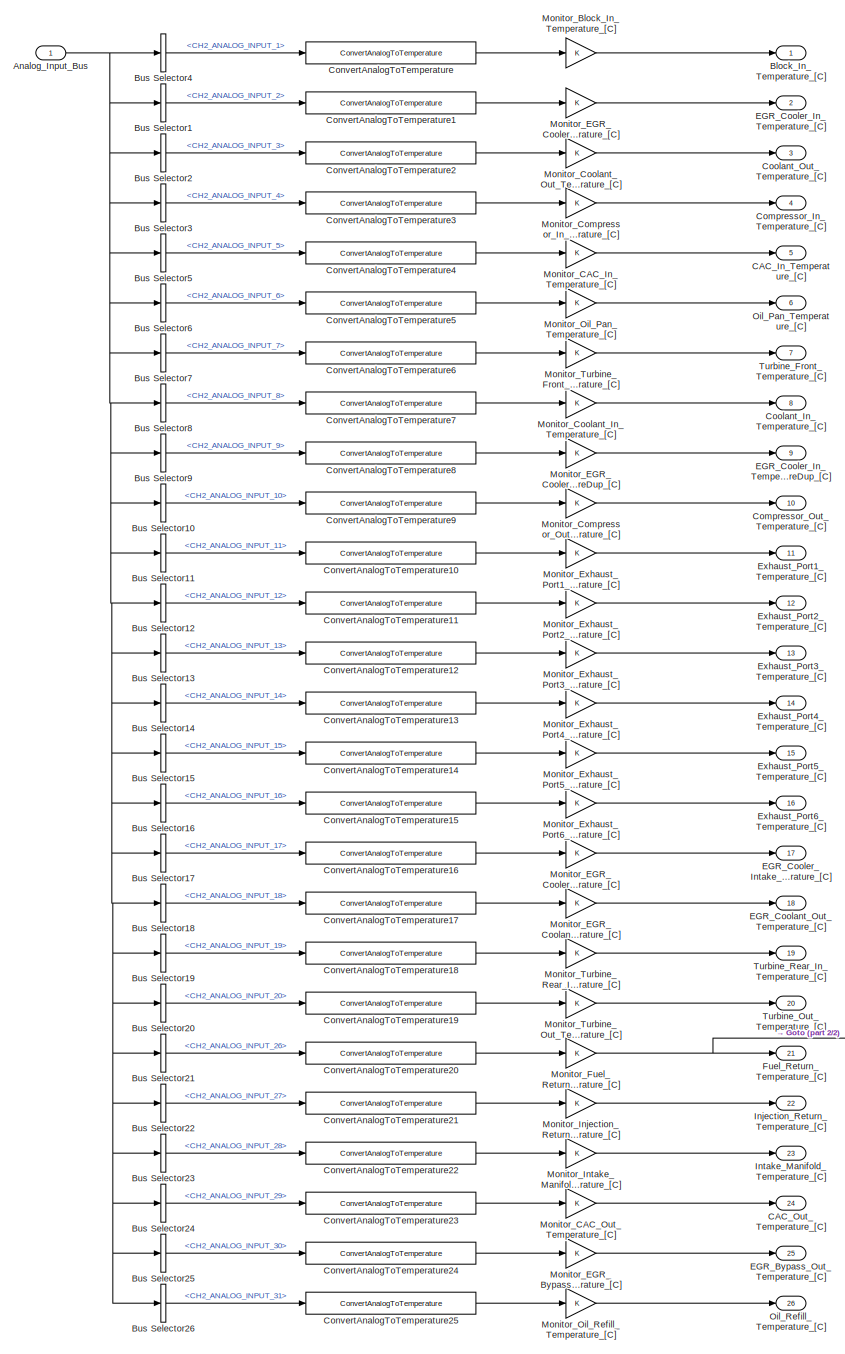
[diagram: DAQ_SYSTEM/Analog_IO_Interface/Temperature_Measurements - part 1/2, most of the canvas]
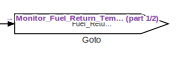
[diagram: DAQ_SYSTEM/Analog_IO_Interface/Temperature_Measurements - part 2/2, bottom right region]
BLOCK [SubSystem] DAQ_SYSTEM/Analog_IO_Interface/Temperature_Measurements
  Ports = [1, 26]
  RequestExecContextInheritance = off
  Variant = off
BLOCK [Inport] DAQ_SYSTEM/Analog_IO_Interface/Temperature_Measurements/Analog_Input_Bus
  IconDisplay = Port number
BLOCK [Outport] DAQ_SYSTEM/Analog_IO_Interface/Temperature_Measurements/Block_In_Temperature_[C]
  IconDisplay = Port number
BLOCK [BusSelector] DAQ_SYSTEM/Analog_IO_Interface/Temperature_Measurements/Bus Selector1
  OutputAsBus = off
  OutputSignals = CH2_ANALOG_INPUTS.CH2_ANALOG_INPUT_2
  Ports = [1, 1]
BLOCK [BusSelector] DAQ_SYSTEM/Analog_IO_Interface/Temperature_Measurements/Bus Selector10
  OutputAsBus = off
  OutputSignals = CH2_ANALOG_INPUTS.CH2_ANALOG_INPUT_10
  Ports = [1, 1]
BLOCK [BusSelector] DAQ_SYSTEM/Analog_IO_Interface/Temperature_Measurements/Bus Selector11
  OutputAsBus = off
  OutputSignals = CH2_ANALOG_INPUTS.CH2_ANALOG_INPUT_11
  Ports = [1, 1]
BLOCK [BusSelector] DAQ_SYSTEM/Analog_IO_Interface/Temperature_Measurements/Bus Selector12
  OutputAsBus = off
  OutputSignals = CH2_ANALOG_INPUTS.CH2_ANALOG_INPUT_12
  Ports = [1, 1]
BLOCK [BusSelector] DAQ_SYSTEM/Analog_IO_Interface/Temperature_Measurements/Bus Selector13
  OutputAsBus = off
  OutputSignals = CH2_ANALOG_INPUTS.CH2_ANALOG_INPUT_13
  Ports = [1, 1]
BLOCK [BusSelector] DAQ_SYSTEM/Analog_IO_Interface/Temperature_Measurements/Bus Selector14
  OutputAsBus = off
  OutputSignals = CH2_ANALOG_INPUTS.CH2_ANALOG_INPUT_14
  Ports = [1, 1]
BLOCK [BusSelector] DAQ_SYSTEM/Analog_IO_Interface/Temperature_Measurements/Bus Selector15
  OutputAsBus = off
  OutputSignals = CH2_ANALOG_INPUTS.CH2_ANALOG_INPUT_15
  Ports = [1, 1]
BLOCK [BusSelector] DAQ_SYSTEM/Analog_IO_Interface/Temperature_Measurements/Bus Selector16
  OutputAsBus = off
  OutputSignals = CH2_ANALOG_INPUTS.CH2_ANALOG_INPUT_16
  Ports = [1, 1]
BLOCK [BusSelector] DAQ_SYSTEM/Analog_IO_Interface/Temperature_Measurements/Bus Selector17
  OutputAsBus = off
  OutputSignals = CH2_ANALOG_INPUTS.CH2_ANALOG_INPUT_17
  Ports = [1, 1]
BLOCK [BusSelector] DAQ_SYSTEM/Analog_IO_Interface/Temperature_Measurements/Bus Selector18
  OutputAsBus = off
  OutputSignals = CH2_ANALOG_INPUTS.CH2_ANALOG_INPUT_18
  Ports = [1, 1]
BLOCK [BusSelector] DAQ_SYSTEM/Analog_IO_Interface/Temperature_Measurements/Bus Selector19
  OutputAsBus = off
  OutputSignals = CH2_ANALOG_INPUTS.CH2_ANALOG_INPUT_19
  Ports = [1, 1]
BLOCK [BusSelector] DAQ_SYSTEM/Analog_IO_Interface/Temperature_Measurements/Bus Selector2
  OutputAsBus = off
  OutputSignals = CH2_ANALOG_INPUTS.CH2_ANALOG_INPUT_3
  Ports = [1, 1]
BLOCK [BusSelector] DAQ_SYSTEM/Analog_IO_Interface/Temperature_Measurements/Bus Selector20
  OutputAsBus = off
  OutputSignals = CH2_ANALOG_INPUTS.CH2_ANALOG_INPUT_20
  Ports = [1, 1]
BLOCK [BusSelector] DAQ_SYSTEM/Analog_IO_Interface/Temperature_Measurements/Bus Selector21
  OutputAsBus = off
  OutputSignals = CH2_ANALOG_INPUTS.CH2_ANALOG_INPUT_26
  Ports = [1, 1]
BLOCK [BusSelector] DAQ_SYSTEM/Analog_IO_Interface/Temperature_Measurements/Bus Selector22
  OutputAsBus = off
  OutputSignals = CH2_ANALOG_INPUTS.CH2_ANALOG_INPUT_27
  Ports = [1, 1]
BLOCK [BusSelector] DAQ_SYSTEM/Analog_IO_Interface/Temperature_Measurements/Bus Selector23
  OutputAsBus = off
  OutputSignals = CH2_ANALOG_INPUTS.CH2_ANALOG_INPUT_28
  Ports = [1, 1]
BLOCK [BusSelector] DAQ_SYSTEM/Analog_IO_Interface/Temperature_Measurements/Bus Selector24
  OutputAsBus = off
  OutputSignals = CH2_ANALOG_INPUTS.CH2_ANALOG_INPUT_29
  Ports = [1, 1]
BLOCK [BusSelector] DAQ_SYSTEM/Analog_IO_Interface/Temperature_Measurements/Bus Selector25
  OutputAsBus = off
  OutputSignals = CH2_ANALOG_INPUTS.CH2_ANALOG_INPUT_30
  Ports = [1, 1]
BLOCK [BusSelector] DAQ_SYSTEM/Analog_IO_Interface/Temperature_Measurements/Bus Selector26
  OutputAsBus = off
  OutputSignals = CH2_ANALOG_INPUTS.CH2_ANALOG_INPUT_31
  Ports = [1, 1]
BLOCK [BusSelector] DAQ_SYSTEM/Analog_IO_Interface/Temperature_Measurements/Bus Selector3
  OutputAsBus = off
  OutputSignals = CH2_ANALOG_INPUTS.CH2_ANALOG_INPUT_4
  Ports = [1, 1]
BLOCK [BusSelector] DAQ_SYSTEM/Analog_IO_Interface/Temperature_Measurements/Bus Selector4
  OutputAsBus = off
  OutputSignals = CH2_ANALOG_INPUTS.CH2_ANALOG_INPUT_1
  Ports = [1, 1]
BLOCK [BusSelector] DAQ_SYSTEM/Analog_IO_Interface/Temperature_Measurements/Bus Selector5
  OutputAsBus = off
  OutputSignals = CH2_ANALOG_INPUTS.CH2_ANALOG_INPUT_5
  Ports = [1, 1]
BLOCK [BusSelector] DAQ_SYSTEM/Analog_IO_Interface/Temperature_Measurements/Bus Selector6
  OutputAsBus = off
  OutputSignals = CH2_ANALOG_INPUTS.CH2_ANALOG_INPUT_6
  Ports = [1, 1]
BLOCK [BusSelector] DAQ_SYSTEM/Analog_IO_Interface/Temperature_Measurements/Bus Selector7
  OutputAsBus = off
  OutputSignals = CH2_ANALOG_INPUTS.CH2_ANALOG_INPUT_7
  Ports = [1, 1]
BLOCK [BusSelector] DAQ_SYSTEM/Analog_IO_Interface/Temperature_Measurements/Bus Selector8
  OutputAsBus = off
  OutputSignals = CH2_ANALOG_INPUTS.CH2_ANALOG_INPUT_8
  Ports = [1, 1]
BLOCK [BusSelector] DAQ_SYSTEM/Analog_IO_Interface/Temperature_Measurements/Bus Selector9
  OutputAsBus = off
  OutputSignals = CH2_ANALOG_INPUTS.CH2_ANALOG_INPUT_9
  Ports = [1, 1]
BLOCK [Outport] DAQ_SYSTEM/Analog_IO_Interface/Temperature_Measurements/CAC_In_Temperature_[C]
  IconDisplay = Port number
  Port = 5
BLOCK [Outport] DAQ_SYSTEM/Analog_IO_Interface/Temperature_Measurements/CAC_Out_Temperature_[C]
  IconDisplay = Port number
  Port = 24
BLOCK [Outport] DAQ_SYSTEM/Analog_IO_Interface/Temperature_Measurements/Compressor_In_Temperature_[C]
  IconDisplay = Port number
  Port = 4
BLOCK [Outport] DAQ_SYSTEM/Analog_IO_Interface/Temperature_Measurements/Compressor_Out_Temperature_[C]
  IconDisplay = Port number
  Port = 10
BLOCK [Reference] DAQ_SYSTEM/Analog_IO_Interface/Temperature_Measurements/ConvertAnalogToTemperature  REF=NEXTCAR_Library/ConvertAnalogToTemperature
  Ports = [1, 1]
  SourceBlock = NEXTCAR_Library/ConvertAnalogToTemperature
  SourceProductName = NEXTCAR Library
  SourceType = Voltage [V] to Temperature [C] Conversion
BLOCK [Reference] DAQ_SYSTEM/Analog_IO_Interface/Temperature_Measurements/ConvertAnalogToTemperature1  REF=NEXTCAR_Library/ConvertAnalogToTemperature
  Ports = [1, 1]
  SourceBlock = NEXTCAR_Library/ConvertAnalogToTemperature
  SourceProductName = NEXTCAR Library
  SourceType = Voltage [V] to Temperature [C] Conversion
BLOCK [Reference] DAQ_SYSTEM/Analog_IO_Interface/Temperature_Measurements/ConvertAnalogToTemperature10  REF=NEXTCAR_Library/ConvertAnalogToTemperature
  Ports = [1, 1]
  SourceBlock = NEXTCAR_Library/ConvertAnalogToTemperature
  SourceProductName = NEXTCAR Library
  SourceType = Voltage [V] to Temperature [C] Conversion
BLOCK [Reference] DAQ_SYSTEM/Analog_IO_Interface/Temperature_Measurements/ConvertAnalogToTemperature11  REF=NEXTCAR_Library/ConvertAnalogToTemperature
  Ports = [1, 1]
  SourceBlock = NEXTCAR_Library/ConvertAnalogToTemperature
  SourceProductName = NEXTCAR Library
  SourceType = Voltage [V] to Temperature [C] Conversion
BLOCK [Reference] DAQ_SYSTEM/Analog_IO_Interface/Temperature_Measurements/ConvertAnalogToTemperature12  REF=NEXTCAR_Library/ConvertAnalogToTemperature
  Ports = [1, 1]
  SourceBlock = NEXTCAR_Library/ConvertAnalogToTemperature
  SourceProductName = NEXTCAR Library
  SourceType = Voltage [V] to Temperature [C] Conversion
BLOCK [Reference] DAQ_SYSTEM/Analog_IO_Interface/Temperature_Measurements/ConvertAnalogToTemperature13  REF=NEXTCAR_Library/ConvertAnalogToTemperature
  Ports = [1, 1]
  SourceBlock = NEXTCAR_Library/ConvertAnalogToTemperature
  SourceProductName = NEXTCAR Library
  SourceType = Voltage [V] to Temperature [C] Conversion
BLOCK [Reference] DAQ_SYSTEM/Analog_IO_Interface/Temperature_Measurements/ConvertAnalogToTemperature14  REF=NEXTCAR_Library/ConvertAnalogToTemperature
  Ports = [1, 1]
  SourceBlock = NEXTCAR_Library/ConvertAnalogToTemperature
  SourceProductName = NEXTCAR Library
  SourceType = Voltage [V] to Temperature [C] Conversion
BLOCK [Reference] DAQ_SYSTEM/Analog_IO_Interface/Temperature_Measurements/ConvertAnalogToTemperature15  REF=NEXTCAR_Library/ConvertAnalogToTemperature
  Ports = [1, 1]
  SourceBlock = NEXTCAR_Library/ConvertAnalogToTemperature
  SourceProductName = NEXTCAR Library
  SourceType = Voltage [V] to Temperature [C] Conversion
BLOCK [Reference] DAQ_SYSTEM/Analog_IO_Interface/Temperature_Measurements/ConvertAnalogToTemperature16  REF=NEXTCAR_Library/ConvertAnalogToTemperature
  Ports = [1, 1]
  SourceBlock = NEXTCAR_Library/ConvertAnalogToTemperature
  SourceProductName = NEXTCAR Library
  SourceType = Voltage [V] to Temperature [C] Conversion
BLOCK [Reference] DAQ_SYSTEM/Analog_IO_Interface/Temperature_Measurements/ConvertAnalogToTemperature17  REF=NEXTCAR_Library/ConvertAnalogToTemperature
  Ports = [1, 1]
  SourceBlock = NEXTCAR_Library/ConvertAnalogToTemperature
  SourceProductName = NEXTCAR Library
  SourceType = Voltage [V] to Temperature [C] Conversion
BLOCK [Reference] DAQ_SYSTEM/Analog_IO_Interface/Temperature_Measurements/ConvertAnalogToTemperature18  REF=NEXTCAR_Library/ConvertAnalogToTemperature
  Ports = [1, 1]
  SourceBlock = NEXTCAR_Library/ConvertAnalogToTemperature
  SourceProductName = NEXTCAR Library
  SourceType = Voltage [V] to Temperature [C] Conversion
BLOCK [Reference] DAQ_SYSTEM/Analog_IO_Interface/Temperature_Measurements/ConvertAnalogToTemperature19  REF=NEXTCAR_Library/ConvertAnalogToTemperature
  Ports = [1, 1]
  SourceBlock = NEXTCAR_Library/ConvertAnalogToTemperature
  SourceProductName = NEXTCAR Library
  SourceType = Voltage [V] to Temperature [C] Conversion
BLOCK [Reference] DAQ_SYSTEM/Analog_IO_Interface/Temperature_Measurements/ConvertAnalogToTemperature2  REF=NEXTCAR_Library/ConvertAnalogToTemperature
  Ports = [1, 1]
  SourceBlock = NEXTCAR_Library/ConvertAnalogToTemperature
  SourceProductName = NEXTCAR Library
  SourceType = Voltage [V] to Temperature [C] Conversion
BLOCK [Reference] DAQ_SYSTEM/Analog_IO_Interface/Temperature_Measurements/ConvertAnalogToTemperature20  REF=NEXTCAR_Library/ConvertAnalogToTemperature
  Ports = [1, 1]
  SourceBlock = NEXTCAR_Library/ConvertAnalogToTemperature
  SourceProductName = NEXTCAR Library
  SourceType = Voltage [V] to Temperature [C] Conversion
BLOCK [Reference] DAQ_SYSTEM/Analog_IO_Interface/Temperature_Measurements/ConvertAnalogToTemperature21  REF=NEXTCAR_Library/ConvertAnalogToTemperature
  Ports = [1, 1]
  SourceBlock = NEXTCAR_Library/ConvertAnalogToTemperature
  SourceProductName = NEXTCAR Library
  SourceType = Voltage [V] to Temperature [C] Conversion
BLOCK [Reference] DAQ_SYSTEM/Analog_IO_Interface/Temperature_Measurements/ConvertAnalogToTemperature22  REF=NEXTCAR_Library/ConvertAnalogToTemperature
  Ports = [1, 1]
  SourceBlock = NEXTCAR_Library/ConvertAnalogToTemperature
  SourceProductName = NEXTCAR Library
  SourceType = Voltage [V] to Temperature [C] Conversion
BLOCK [Reference] DAQ_SYSTEM/Analog_IO_Interface/Temperature_Measurements/ConvertAnalogToTemperature23  REF=NEXTCAR_Library/ConvertAnalogToTemperature
  Ports = [1, 1]
  SourceBlock = NEXTCAR_Library/ConvertAnalogToTemperature
  SourceProductName = NEXTCAR Library
  SourceType = Voltage [V] to Temperature [C] Conversion
BLOCK [Reference] DAQ_SYSTEM/Analog_IO_Interface/Temperature_Measurements/ConvertAnalogToTemperature24  REF=NEXTCAR_Library/ConvertAnalogToTemperature
  Ports = [1, 1]
  SourceBlock = NEXTCAR_Library/ConvertAnalogToTemperature
  SourceProductName = NEXTCAR Library
  SourceType = Voltage [V] to Temperature [C] Conversion
BLOCK [Reference] DAQ_SYSTEM/Analog_IO_Interface/Temperature_Measurements/ConvertAnalogToTemperature25  REF=NEXTCAR_Library/ConvertAnalogToTemperature
  Ports = [1, 1]
  SourceBlock = NEXTCAR_Library/ConvertAnalogToTemperature
  SourceProductName = NEXTCAR Library
  SourceType = Voltage [V] to Temperature [C] Conversion
BLOCK [Reference] DAQ_SYSTEM/Analog_IO_Interface/Temperature_Measurements/ConvertAnalogToTemperature3  REF=NEXTCAR_Library/ConvertAnalogToTemperature
  Ports = [1, 1]
  SourceBlock = NEXTCAR_Library/ConvertAnalogToTemperature
  SourceProductName = NEXTCAR Library
  SourceType = Voltage [V] to Temperature [C] Conversion
BLOCK [Reference] DAQ_SYSTEM/Analog_IO_Interface/Temperature_Measurements/ConvertAnalogToTemperature4  REF=NEXTCAR_Library/ConvertAnalogToTemperature
  Ports = [1, 1]
  SourceBlock = NEXTCAR_Library/ConvertAnalogToTemperature
  SourceProductName = NEXTCAR Library
  SourceType = Voltage [V] to Temperature [C] Conversion
BLOCK [Reference] DAQ_SYSTEM/Analog_IO_Interface/Temperature_Measurements/ConvertAnalogToTemperature5  REF=NEXTCAR_Library/ConvertAnalogToTemperature
  Ports = [1, 1]
  SourceBlock = NEXTCAR_Library/ConvertAnalogToTemperature
  SourceProductName = NEXTCAR Library
  SourceType = Voltage [V] to Temperature [C] Conversion
BLOCK [Reference] DAQ_SYSTEM/Analog_IO_Interface/Temperature_Measurements/ConvertAnalogToTemperature6  REF=NEXTCAR_Library/ConvertAnalogToTemperature
  Ports = [1, 1]
  SourceBlock = NEXTCAR_Library/ConvertAnalogToTemperature
  SourceProductName = NEXTCAR Library
  SourceType = Voltage [V] to Temperature [C] Conversion
BLOCK [Reference] DAQ_SYSTEM/Analog_IO_Interface/Temperature_Measurements/ConvertAnalogToTemperature7  REF=NEXTCAR_Library/ConvertAnalogToTemperature
  Ports = [1, 1]
  SourceBlock = NEXTCAR_Library/ConvertAnalogToTemperature
  SourceProductName = NEXTCAR Library
  SourceType = Voltage [V] to Temperature [C] Conversion
BLOCK [Reference] DAQ_SYSTEM/Analog_IO_Interface/Temperature_Measurements/ConvertAnalogToTemperature8  REF=NEXTCAR_Library/ConvertAnalogToTemperature
  Ports = [1, 1]
  SourceBlock = NEXTCAR_Library/ConvertAnalogToTemperature
  SourceProductName = NEXTCAR Library
  SourceType = Voltage [V] to Temperature [C] Conversion
BLOCK [Reference] DAQ_SYSTEM/Analog_IO_Interface/Temperature_Measurements/ConvertAnalogToTemperature9  REF=NEXTCAR_Library/ConvertAnalogToTemperature
  Ports = [1, 1]
  SourceBlock = NEXTCAR_Library/ConvertAnalogToTemperature
  SourceProductName = NEXTCAR Library
  SourceType = Voltage [V] to Temperature [C] Conversion
BLOCK [Outport] DAQ_SYSTEM/Analog_IO_Interface/Temperature_Measurements/Coolant_In_Temperature_[C]
  IconDisplay = Port number
  Port = 8
BLOCK [Outport] DAQ_SYSTEM/Analog_IO_Interface/Temperature_Measurements/Coolant_Out_Temperature_[C]
  IconDisplay = Port number
  Port = 3
BLOCK [Outport] DAQ_SYSTEM/Analog_IO_Interface/Temperature_Measurements/EGR_Bypass_Out_Temperature_[C]
  IconDisplay = Port number
  Port = 25
BLOCK [Outport] DAQ_SYSTEM/Analog_IO_Interface/Temperature_Measurements/EGR_Coolant_Out_Temperature_[C]
  IconDisplay = Port number
  Port = 18
BLOCK [Outport] DAQ_SYSTEM/Analog_IO_Interface/Temperature_Measurements/EGR_Cooler_In_TemperatureDup_[C]
  IconDisplay = Port number
  Port = 9
BLOCK [Outport] DAQ_SYSTEM/Analog_IO_Interface/Temperature_Measurements/EGR_Cooler_In_Temperature_[C]
  IconDisplay = Port number
  Port = 2
BLOCK [Outport] DAQ_SYSTEM/Analog_IO_Interface/Temperature_Measurements/EGR_Cooler_Intake_Temperature_[C]
  IconDisplay = Port number
  Port = 17
BLOCK [Outport] DAQ_SYSTEM/Analog_IO_Interface/Temperature_Measurements/Exhaust_Port1_Temperature_[C]
  IconDisplay = Port number
  Port = 11
BLOCK [Outport] DAQ_SYSTEM/Analog_IO_Interface/Temperature_Measurements/Exhaust_Port2_Temperature_[C]
  IconDisplay = Port number
  Port = 12
BLOCK [Outport] DAQ_SYSTEM/Analog_IO_Interface/Temperature_Measurements/Exhaust_Port3_Temperature_[C]
  IconDisplay = Port number
  Port = 13
BLOCK [Outport] DAQ_SYSTEM/Analog_IO_Interface/Temperature_Measurements/Exhaust_Port4_Temperature_[C]
  IconDisplay = Port number
  Port = 14
BLOCK [Outport] DAQ_SYSTEM/Analog_IO_Interface/Temperature_Measurements/Exhaust_Port5_Temperature_[C]
  IconDisplay = Port number
  Port = 15
BLOCK [Outport] DAQ_SYSTEM/Analog_IO_Interface/Temperature_Measurements/Exhaust_Port6_Temperature_[C]
  IconDisplay = Port number
  Port = 16
BLOCK [Outport] DAQ_SYSTEM/Analog_IO_Interface/Temperature_Measurements/Fuel_Return_Temperature_[C]
  IconDisplay = Port number
  Port = 21
BLOCK [Goto] DAQ_SYSTEM/Analog_IO_Interface/Temperature_Measurements/Goto
  GotoTag = Fuel_Return_Temperature
  TagVisibility = global
BLOCK [Outport] DAQ_SYSTEM/Analog_IO_Interface/Temperature_Measurements/Injection_Return_Temperature_[C]
  IconDisplay = Port number
  Port = 22
BLOCK [Outport] DAQ_SYSTEM/Analog_IO_Interface/Temperature_Measurements/Intake_Manifold_Temperature_[C]
  IconDisplay = Port number
  Port = 23
BLOCK [Gain] DAQ_SYSTEM/Analog_IO_Interface/Temperature_Measurements/Monitor_Block_In_Temperature_[C]
  OutDataTypeStr = Inherit: Inherit via internal rule
  ParamDataTypeStr = Inherit: Inherit via internal rule
  SaturateOnIntegerOverflow = off
BLOCK [Gain] DAQ_SYSTEM/Analog_IO_Interface/Temperature_Measurements/Monitor_CAC_In_Temperature_[C]
  OutDataTypeStr = Inherit: Inherit via internal rule
  ParamDataTypeStr = Inherit: Inherit via internal rule
  SaturateOnIntegerOverflow = off
BLOCK [Gain] DAQ_SYSTEM/Analog_IO_Interface/Temperature_Measurements/Monitor_CAC_Out_Temperature_[C]
  OutDataTypeStr = Inherit: Inherit via internal rule
  ParamDataTypeStr = Inherit: Inherit via internal rule
  SaturateOnIntegerOverflow = off
BLOCK [Gain] DAQ_SYSTEM/Analog_IO_Interface/Temperature_Measurements/Monitor_Compressor_In_Temperature_[C]
  OutDataTypeStr = Inherit: Inherit via internal rule
  ParamDataTypeStr = Inherit: Inherit via internal rule
  SaturateOnIntegerOverflow = off
BLOCK [Gain] DAQ_SYSTEM/Analog_IO_Interface/Temperature_Measurements/Monitor_Compressor_Out_Temperature_[C]
  OutDataTypeStr = Inherit: Inherit via internal rule
  ParamDataTypeStr = Inherit: Inherit via internal rule
  SaturateOnIntegerOverflow = off
BLOCK [Gain] DAQ_SYSTEM/Analog_IO_Interface/Temperature_Measurements/Monitor_Coolant_In_Temperature_[C]
  OutDataTypeStr = Inherit: Inherit via internal rule
  ParamDataTypeStr = Inherit: Inherit via internal rule
  SaturateOnIntegerOverflow = off
BLOCK [Gain] DAQ_SYSTEM/Analog_IO_Interface/Temperature_Measurements/Monitor_Coolant_Out_Temperature_[C]
  OutDataTypeStr = Inherit: Inherit via internal rule
  ParamDataTypeStr = Inherit: Inherit via internal rule
  SaturateOnIntegerOverflow = off
BLOCK [Gain] DAQ_SYSTEM/Analog_IO_Interface/Temperature_Measurements/Monitor_EGR_Bypass_Out_Temperature_[C]
  OutDataTypeStr = Inherit: Inherit via internal rule
  ParamDataTypeStr = Inherit: Inherit via internal rule
  SaturateOnIntegerOverflow = off
BLOCK [Gain] DAQ_SYSTEM/Analog_IO_Interface/Temperature_Measurements/Monitor_EGR_Coolant_Out_Temperature_[C]
  OutDataTypeStr = Inherit: Inherit via internal rule
  ParamDataTypeStr = Inherit: Inherit via internal rule
  SaturateOnIntegerOverflow = off
BLOCK [Gain] DAQ_SYSTEM/Analog_IO_Interface/Temperature_Measurements/Monitor_EGR_Cooler_In_TemperatureDup_[C]
  OutDataTypeStr = Inherit: Inherit via internal rule
  ParamDataTypeStr = Inherit: Inherit via internal rule
  SaturateOnIntegerOverflow = off
BLOCK [Gain] DAQ_SYSTEM/Analog_IO_Interface/Temperature_Measurements/Monitor_EGR_Cooler_In_Temperature_[C]
  OutDataTypeStr = Inherit: Inherit via internal rule
  ParamDataTypeStr = Inherit: Inherit via internal rule
  SaturateOnIntegerOverflow = off
BLOCK [Gain] DAQ_SYSTEM/Analog_IO_Interface/Temperature_Measurements/Monitor_EGR_Cooler_Intake_Temperature_[C]
  OutDataTypeStr = Inherit: Inherit via internal rule
  ParamDataTypeStr = Inherit: Inherit via internal rule
  SaturateOnIntegerOverflow = off
BLOCK [Gain] DAQ_SYSTEM/Analog_IO_Interface/Temperature_Measurements/Monitor_Exhaust_Port1_Temperature_[C]
  OutDataTypeStr = Inherit: Inherit via internal rule
  ParamDataTypeStr = Inherit: Inherit via internal rule
  SaturateOnIntegerOverflow = off
BLOCK [Gain] DAQ_SYSTEM/Analog_IO_Interface/Temperature_Measurements/Monitor_Exhaust_Port2_Temperature_[C]
  OutDataTypeStr = Inherit: Inherit via internal rule
  ParamDataTypeStr = Inherit: Inherit via internal rule
  SaturateOnIntegerOverflow = off
BLOCK [Gain] DAQ_SYSTEM/Analog_IO_Interface/Temperature_Measurements/Monitor_Exhaust_Port3_Temperature_[C]
  OutDataTypeStr = Inherit: Inherit via internal rule
  ParamDataTypeStr = Inherit: Inherit via internal rule
  SaturateOnIntegerOverflow = off
BLOCK [Gain] DAQ_SYSTEM/Analog_IO_Interface/Temperature_Measurements/Monitor_Exhaust_Port4_Temperature_[C]
  OutDataTypeStr = Inherit: Inherit via internal rule
  ParamDataTypeStr = Inherit: Inherit via internal rule
  SaturateOnIntegerOverflow = off
BLOCK [Gain] DAQ_SYSTEM/Analog_IO_Interface/Temperature_Measurements/Monitor_Exhaust_Port5_Temperature_[C]
  OutDataTypeStr = Inherit: Inherit via internal rule
  ParamDataTypeStr = Inherit: Inherit via internal rule
  SaturateOnIntegerOverflow = off
BLOCK [Gain] DAQ_SYSTEM/Analog_IO_Interface/Temperature_Measurements/Monitor_Exhaust_Port6_Temperature_[C]
  OutDataTypeStr = Inherit: Inherit via internal rule
  ParamDataTypeStr = Inherit: Inherit via internal rule
  SaturateOnIntegerOverflow = off
BLOCK [Gain] DAQ_SYSTEM/Analog_IO_Interface/Temperature_Measurements/Monitor_Fuel_Return_Temperature_[C]
  OutDataTypeStr = Inherit: Inherit via internal rule
  ParamDataTypeStr = Inherit: Inherit via internal rule
  SaturateOnIntegerOverflow = off
BLOCK [Gain] DAQ_SYSTEM/Analog_IO_Interface/Temperature_Measurements/Monitor_Injection_Return_Temperature_[C]
  OutDataTypeStr = Inherit: Inherit via internal rule
  ParamDataTypeStr = Inherit: Inherit via internal rule
  SaturateOnIntegerOverflow = off
BLOCK [Gain] DAQ_SYSTEM/Analog_IO_Interface/Temperature_Measurements/Monitor_Intake_Manifold_Temperature_[C]
  OutDataTypeStr = Inherit: Inherit via internal rule
  ParamDataTypeStr = Inherit: Inherit via internal rule
  SaturateOnIntegerOverflow = off
BLOCK [Gain] DAQ_SYSTEM/Analog_IO_Interface/Temperature_Measurements/Monitor_Oil_Pan_Temperature_[C]
  OutDataTypeStr = Inherit: Inherit via internal rule
  ParamDataTypeStr = Inherit: Inherit via internal rule
  SaturateOnIntegerOverflow = off
BLOCK [Gain] DAQ_SYSTEM/Analog_IO_Interface/Temperature_Measurements/Monitor_Oil_Refill_Temperature_[C]
  OutDataTypeStr = Inherit: Inherit via internal rule
  ParamDataTypeStr = Inherit: Inherit via internal rule
  SaturateOnIntegerOverflow = off
BLOCK [Gain] DAQ_SYSTEM/Analog_IO_Interface/Temperature_Measurements/Monitor_Turbine_Front_Temperature_[C]
  OutDataTypeStr = Inherit: Inherit via internal rule
  ParamDataTypeStr = Inherit: Inherit via internal rule
  SaturateOnIntegerOverflow = off
BLOCK [Gain] DAQ_SYSTEM/Analog_IO_Interface/Temperature_Measurements/Monitor_Turbine_Out_Temperature_[C]
  OutDataTypeStr = Inherit: Inherit via internal rule
  ParamDataTypeStr = Inherit: Inherit via internal rule
  SaturateOnIntegerOverflow = off
BLOCK [Gain] DAQ_SYSTEM/Analog_IO_Interface/Temperature_Measurements/Monitor_Turbine_Rear_In_Temperature_[C]
  OutDataTypeStr = Inherit: Inherit via internal rule
  ParamDataTypeStr = Inherit: Inherit via internal rule
  SaturateOnIntegerOverflow = off
BLOCK [Outport] DAQ_SYSTEM/Analog_IO_Interface/Temperature_Measurements/Oil_Pan_Temperature_[C]
  IconDisplay = Port number
  Port = 6
BLOCK [Outport] DAQ_SYSTEM/Analog_IO_Interface/Temperature_Measurements/Oil_Refill_Temperature_[C]
  IconDisplay = Port number
  Port = 26
BLOCK [Outport] DAQ_SYSTEM/Analog_IO_Interface/Temperature_Measurements/Turbine_Front_Temperature_[C]
  IconDisplay = Port number
  Port = 7
BLOCK [Outport] DAQ_SYSTEM/Analog_IO_Interface/Temperature_Measurements/Turbine_Out_Temperature_[C]
  IconDisplay = Port number
  Port = 20
BLOCK [Outport] DAQ_SYSTEM/Analog_IO_Interface/Temperature_Measurements/Turbine_Rear_In_Temperature_[C]
  IconDisplay = Port number
  Port = 19
BLOCK [Constant] DAQ_SYSTEM/Debug_Mode
  Value = 0
BLOCK [SubSystem] DAQ_SYSTEM/Digital_IO_Interface
  Ports = [0, 1]
  RequestExecContextInheritance = off
  Variant = off
BLOCK [SubSystem] DAQ_SYSTEM/Digital_IO_Interface/Digital_Output_Interface
  Ports = [0, 1]
  RequestExecContextInheritance = off
  Variant = off
BLOCK [DataTypeConversion] DAQ_SYSTEM/Digital_IO_Interface/Digital_Output_Interface/Data Type Conversion
  OutDataTypeStr = boolean
  RndMeth = Floor
  SaturateOnIntegerOverflow = off
BLOCK [DataTypeConversion] DAQ_SYSTEM/Digital_IO_Interface/Digital_Output_Interface/Data Type Conversion1
  OutDataTypeStr = boolean
  RndMeth = Floor
  SaturateOnIntegerOverflow = off
BLOCK [DataTypeConversion] DAQ_SYSTEM/Digital_IO_Interface/Digital_Output_Interface/Data Type Conversion10
  OutDataTypeStr = boolean
  RndMeth = Floor
  SaturateOnIntegerOverflow = off
BLOCK [DataTypeConversion] DAQ_SYSTEM/Digital_IO_Interface/Digital_Output_Interface/Data Type Conversion11
  OutDataTypeStr = boolean
  RndMeth = Floor
  SaturateOnIntegerOverflow = off
BLOCK [DataTypeConversion] DAQ_SYSTEM/Digital_IO_Interface/Digital_Output_Interface/Data Type Conversion12
  OutDataTypeStr = boolean
  RndMeth = Floor
  SaturateOnIntegerOverflow = off
BLOCK [DataTypeConversion] DAQ_SYSTEM/Digital_IO_Interface/Digital_Output_Interface/Data Type Conversion13
  OutDataTypeStr = boolean
  RndMeth = Floor
  SaturateOnIntegerOverflow = off
BLOCK [DataTypeConversion] DAQ_SYSTEM/Digital_IO_Interface/Digital_Output_Interface/Data Type Conversion14
  OutDataTypeStr = boolean
  RndMeth = Floor
  SaturateOnIntegerOverflow = off
BLOCK [DataTypeConversion] DAQ_SYSTEM/Digital_IO_Interface/Digital_Output_Interface/Data Type Conversion15
  OutDataTypeStr = boolean
  RndMeth = Floor
  SaturateOnIntegerOverflow = off
BLOCK [DataTypeConversion] DAQ_SYSTEM/Digital_IO_Interface/Digital_Output_Interface/Data Type Conversion16
  OutDataTypeStr = double
  RndMeth = Floor
  SaturateOnIntegerOverflow = off
BLOCK [DataTypeConversion] DAQ_SYSTEM/Digital_IO_Interface/Digital_Output_Interface/Data Type Conversion17
  OutDataTypeStr = double
  RndMeth = Floor
  SaturateOnIntegerOverflow = off
BLOCK [DataTypeConversion] DAQ_SYSTEM/Digital_IO_Interface/Digital_Output_Interface/Data Type Conversion18
  OutDataTypeStr = double
  RndMeth = Floor
  SaturateOnIntegerOverflow = off
BLOCK [DataTypeConversion] DAQ_SYSTEM/Digital_IO_Interface/Digital_Output_Interface/Data Type Conversion19
  OutDataTypeStr = double
  RndMeth = Floor
  SaturateOnIntegerOverflow = off
BLOCK [DataTypeConversion] DAQ_SYSTEM/Digital_IO_Interface/Digital_Output_Interface/Data Type Conversion2
  OutDataTypeStr = boolean
  RndMeth = Floor
  SaturateOnIntegerOverflow = off
BLOCK [DataTypeConversion] DAQ_SYSTEM/Digital_IO_Interface/Digital_Output_Interface/Data Type Conversion20
  OutDataTypeStr = double
  RndMeth = Floor
  SaturateOnIntegerOverflow = off
BLOCK [DataTypeConversion] DAQ_SYSTEM/Digital_IO_Interface/Digital_Output_Interface/Data Type Conversion21
  OutDataTypeStr = double
  RndMeth = Floor
  SaturateOnIntegerOverflow = off
BLOCK [DataTypeConversion] DAQ_SYSTEM/Digital_IO_Interface/Digital_Output_Interface/Data Type Conversion22
  OutDataTypeStr = double
  RndMeth = Floor
  SaturateOnIntegerOverflow = off
BLOCK [DataTypeConversion] DAQ_SYSTEM/Digital_IO_Interface/Digital_Output_Interface/Data Type Conversion23
  OutDataTypeStr = double
  RndMeth = Floor
  SaturateOnIntegerOverflow = off
BLOCK [DataTypeConversion] DAQ_SYSTEM/Digital_IO_Interface/Digital_Output_Interface/Data Type Conversion24
  OutDataTypeStr = double
  RndMeth = Floor
  SaturateOnIntegerOverflow = off
BLOCK [DataTypeConversion] DAQ_SYSTEM/Digital_IO_Interface/Digital_Output_Interface/Data Type Conversion25
  OutDataTypeStr = double
  RndMeth = Floor
  SaturateOnIntegerOverflow = off
BLOCK [DataTypeConversion] DAQ_SYSTEM/Digital_IO_Interface/Digital_Output_Interface/Data Type Conversion26
  OutDataTypeStr = double
  RndMeth = Floor
  SaturateOnIntegerOverflow = off
BLOCK [DataTypeConversion] DAQ_SYSTEM/Digital_IO_Interface/Digital_Output_Interface/Data Type Conversion27
  OutDataTypeStr = double
  RndMeth = Floor
  SaturateOnIntegerOverflow = off
BLOCK [DataTypeConversion] DAQ_SYSTEM/Digital_IO_Interface/Digital_Output_Interface/Data Type Conversion28
  OutDataTypeStr = double
  RndMeth = Floor
  SaturateOnIntegerOverflow = off
BLOCK [DataTypeConversion] DAQ_SYSTEM/Digital_IO_Interface/Digital_Output_Interface/Data Type Conversion29
  OutDataTypeStr = double
  RndMeth = Floor
  SaturateOnIntegerOverflow = off
BLOCK [DataTypeConversion] DAQ_SYSTEM/Digital_IO_Interface/Digital_Output_Interface/Data Type Conversion3
  OutDataTypeStr = boolean
  RndMeth = Floor
  SaturateOnIntegerOverflow = off
BLOCK [DataTypeConversion] DAQ_SYSTEM/Digital_IO_Interface/Digital_Output_Interface/Data Type Conversion30
  OutDataTypeStr = double
  RndMeth = Floor
  SaturateOnIntegerOverflow = off
BLOCK [DataTypeConversion] DAQ_SYSTEM/Digital_IO_Interface/Digital_Output_Interface/Data Type Conversion31
  OutDataTypeStr = double
  RndMeth = Floor
  SaturateOnIntegerOverflow = off
BLOCK [DataTypeConversion] DAQ_SYSTEM/Digital_IO_Interface/Digital_Output_Interface/Data Type Conversion4
  OutDataTypeStr = boolean
  RndMeth = Floor
  SaturateOnIntegerOverflow = off
BLOCK [DataTypeConversion] DAQ_SYSTEM/Digital_IO_Interface/Digital_Output_Interface/Data Type Conversion5
  OutDataTypeStr = boolean
  RndMeth = Floor
  SaturateOnIntegerOverflow = off
BLOCK [DataTypeConversion] DAQ_SYSTEM/Digital_IO_Interface/Digital_Output_Interface/Data Type Conversion6
  OutDataTypeStr = boolean
  RndMeth = Floor
  SaturateOnIntegerOverflow = off
BLOCK [DataTypeConversion] DAQ_SYSTEM/Digital_IO_Interface/Digital_Output_Interface/Data Type Conversion7
  OutDataTypeStr = boolean
  RndMeth = Floor
  SaturateOnIntegerOverflow = off
BLOCK [DataTypeConversion] DAQ_SYSTEM/Digital_IO_Interface/Digital_Output_Interface/Data Type Conversion8
  OutDataTypeStr = boolean
  RndMeth = Floor
  SaturateOnIntegerOverflow = off
BLOCK [DataTypeConversion] DAQ_SYSTEM/Digital_IO_Interface/Digital_Output_Interface/Data Type Conversion9
  OutDataTypeStr = boolean
  RndMeth = Floor
  SaturateOnIntegerOverflow = off
BLOCK [From] DAQ_SYSTEM/Digital_IO_Interface/Digital_Output_Interface/From1
  GotoTag = Fuel_Refill
  TagVisibility = global
BLOCK [Ground] DAQ_SYSTEM/Digital_IO_Interface/Digital_Output_Interface/Ground1
BLOCK [Ground] DAQ_SYSTEM/Digital_IO_Interface/Digital_Output_Interface/Ground10
BLOCK [Ground] DAQ_SYSTEM/Digital_IO_Interface/Digital_Output_Interface/Ground11
BLOCK [Ground] DAQ_SYSTEM/Digital_IO_Interface/Digital_Output_Interface/Ground12
BLOCK [Ground] DAQ_SYSTEM/Digital_IO_Interface/Digital_Output_Interface/Ground13
BLOCK [Ground] DAQ_SYSTEM/Digital_IO_Interface/Digital_Output_Interface/Ground14
BLOCK [Ground] DAQ_SYSTEM/Digital_IO_Interface/Digital_Output_Interface/Ground15
BLOCK [Ground] DAQ_SYSTEM/Digital_IO_Interface/Digital_Output_Interface/Ground2
BLOCK [Ground] DAQ_SYSTEM/Digital_IO_Interface/Digital_Output_Interface/Ground3
BLOCK [Ground] DAQ_SYSTEM/Digital_IO_Interface/Digital_Output_Interface/Ground4
BLOCK [Ground] DAQ_SYSTEM/Digital_IO_Interface/Digital_Output_Interface/Ground5
BLOCK [Ground] DAQ_SYSTEM/Digital_IO_Interface/Digital_Output_Interface/Ground6
BLOCK [Ground] DAQ_SYSTEM/Digital_IO_Interface/Digital_Output_Interface/Ground7
BLOCK [Ground] DAQ_SYSTEM/Digital_IO_Interface/Digital_Output_Interface/Ground8
BLOCK [Ground] DAQ_SYSTEM/Digital_IO_Interface/Digital_Output_Interface/Ground9
BLOCK [Mux] DAQ_SYSTEM/Digital_IO_Interface/Digital_Output_Interface/Mux
  DisplayOption = bar
  Inputs = 16
  Ports = [16, 1]
BLOCK [Reference] DAQ_SYSTEM/Digital_IO_Interface/Digital_Output_Interface/Setup  REF=speedgoatlib_IO204/Setup
  Ports = []
  SourceBlock = speedgoatlib_IO204/Setup
  SourceProductName = Simulink Real-Time: Speedgoat I/O Driver Library
  SourceType = setup_IO204
BLOCK [Outport] DAQ_SYSTEM/Digital_IO_Interface/Digital_Output_Interface/Signal_Logging
  IconDisplay = Port number
BLOCK [Reference] DAQ_SYSTEM/Digital_IO_Interface/Digital_Output_Interface/Write  REF=speedgoatlib_IO204/Write
  Ports = [16]
  SourceBlock = speedgoatlib_IO204/Write
  SourceProductName = Simulink Real-Time: Speedgoat I/O Driver Library
  SourceType = write_IO204
BLOCK [Outport] DAQ_SYSTEM/Digital_IO_Interface/Signal_Logging
  IconDisplay = Port number
BLOCK [SubSystem] DAQ_SYSTEM/Ethernet_Interface
  Ports = [0, 1, 0, 1]
  RequestExecContextInheritance = off
  TreatAsAtomicUnit = on
  Variant = off
BLOCK [Reference] DAQ_SYSTEM/Ethernet_Interface/ASCII_Encode  REF=xpcseriallib/ASCII Encode 
  Ports = [1, 1]
  SourceBlock = xpcseriallib/ASCII Encode
  SourceProductBaseCode = XP
  SourceProductName = Simulink Real-Time
  SourceType = ASCII Encode
BLOCK [Constant] DAQ_SYSTEM/Ethernet_Interface/Constant
  Value = 100
BLOCK [Constant] DAQ_SYSTEM/Ethernet_Interface/Constant1
BLOCK [Mux] DAQ_SYSTEM/Ethernet_Interface/Mux
  DisplayOption = bar
  Inputs = 2
  Ports = [2, 1]
BLOCK [Outport] DAQ_SYSTEM/Ethernet_Interface/Signal_Logging
  IconDisplay = Port number
BLOCK [Reference] DAQ_SYSTEM/Ethernet_Interface/TCP_Client_Configure  REF=slrttcplib/TCP Client Configure
  Ports = [1, 1]
  Priority = -1
  SourceBlock = slrttcplib/TCP Client Configure
  SourceProductBaseCode = XP
  SourceProductName = Simulink Real-Time
  SourceType = slrttcpclientconfig
BLOCK [Reference] DAQ_SYSTEM/Ethernet_Interface/TCP_Send  REF=slrttcplib/TCP Send
  Ports = [3, 1]
  SourceBlock = slrttcplib/TCP Send
  SourceProductBaseCode = XP
  SourceProductName = Simulink Real-Time
  SourceType = slrttcpsend
BLOCK [TriggerPort] DAQ_SYSTEM/Ethernet_Interface/Trigger
  Ports = []
  StatesWhenEnabling = held
  VariantControl = Variant
BLOCK [Width] DAQ_SYSTEM/Ethernet_Interface/Width1
BLOCK [SubSystem] DAQ_SYSTEM/Logging_Interface
  Ports = [2]
  RequestExecContextInheritance = off
  Variant = off
BLOCK [SubSystem] DAQ_SYSTEM/Logging_Interface/CPL_Data_Logging
  Ports = [1, 0, 1]
  RequestExecContextInheritance = off
  TreatAsAtomicUnit = on
  Variant = off
BLOCK [EnablePort] DAQ_SYSTEM/Logging_Interface/CPL_Data_Logging/Enable
  Ports = []
  StatesWhenEnabling = reset
BLOCK [Inport] DAQ_SYSTEM/Logging_Interface/CPL_Data_Logging/Logging_Data
  IconDisplay = Port number
BLOCK [Reference] DAQ_SYSTEM/Logging_Interface/CPL_Data_Logging/Scope   REF=slrtlib/Displays and
Logging/Scope 
  Ports = [1]
  SourceBlock = slrtlib/Displays and\nLogging/Scope
  SourceProductBaseCode = XP
  SourceProductName = Simulink Real-Time
  SourceType = xpcscopeblock
BLOCK [Inport] DAQ_SYSTEM/Logging_Interface/Clock_Trigger
  IconDisplay = Port number
  Port = 2
BLOCK [Reference] DAQ_SYSTEM/Logging_Interface/Edge Detector  REF=powerlib_meascontrol/Logic/Edge Detector
  Ports = [1, 1]
  SourceBlock = powerlib_meascontrol/Logic/Edge Detector
  SourceProductBaseCode = PS
  SourceProductName = Simscape Power Systems
  SourceType = Edge Detector
BLOCK [From] DAQ_SYSTEM/Logging_Interface/From
  GotoTag = DIGITAL_OUTPUT_BUS
  TagVisibility = global
BLOCK [From] DAQ_SYSTEM/Logging_Interface/From1
  GotoTag = ANALOG_INPUT_BUS
  TagVisibility = global
BLOCK [Inport] DAQ_SYSTEM/Logging_Interface/Logging_Data
  IconDisplay = Port number
BLOCK [Constant] DAQ_SYSTEM/Logging_Interface/Logging_Time
  Value = 30
BLOCK [Logic] DAQ_SYSTEM/Logging_Interface/Logical Operator
  AllPortsSameDT = off
  OutDataTypeStr = boolean
  Ports = [2, 1]
BLOCK [Reference] DAQ_SYSTEM/Logging_Interface/Model_Signal_Logging   REF=slrtlib/Displays and
Logging/Scope 
  Ports = [1]
  SourceBlock = slrtlib/Displays and\nLogging/Scope
  SourceProductBaseCode = XP
  SourceProductName = Simulink Real-Time
  SourceType = xpcscopeblock
BLOCK [Gain] DAQ_SYSTEM/Logging_Interface/MonitorLoggingState
  OutDataTypeStr = Inherit: Inherit via internal rule
  ParamDataTypeStr = Inherit: Inherit via internal rule
  SaturateOnIntegerOverflow = off
BLOCK [Gain] DAQ_SYSTEM/Logging_Interface/Monitor_Logging_Time
  OutDataTypeStr = Inherit: Inherit via internal rule
  ParamDataTypeStr = Inherit: Inherit via internal rule
  SaturateOnIntegerOverflow = off
BLOCK [Mux] DAQ_SYSTEM/Logging_Interface/Mux
  DisplayOption = bar
  Inputs = 2
  Ports = [2, 1]
BLOCK [Reference] DAQ_SYSTEM/Logging_Interface/Raw_IO_Logging  REF=slrtlib/Displays and
Logging/Scope 
  Ports = [1]
  SourceBlock = slrtlib/Displays and\nLogging/Scope
  SourceProductBaseCode = XP
  SourceProductName = Simulink Real-Time
  SourceType = xpcscopeblock
BLOCK [Reference] DAQ_SYSTEM/Logging_Interface/S-R Flip-Flop  REF=simulink_extras/Flip Flops/S-R
Flip-Flop
  Ports = [2, 2]
  SourceBlock = simulink_extras/Flip Flops/S-R\nFlip-Flop
  SourceProductBaseCode = SL
  SourceProductName = Simulink
  SourceType = SRFlipFlop
BLOCK [Constant] DAQ_SYSTEM/Logging_Interface/StartLogging
  Value = 0
BLOCK [Terminator] DAQ_SYSTEM/Logging_Interface/Terminator
BLOCK [SubSystem] DAQ_SYSTEM/Logging_Interface/Timer
  Ports = [3, 1]
  RequestExecContextInheritance = off
  Variant = off
BLOCK [Constant] DAQ_SYSTEM/Logging_Interface/Timer/Constant
  Value = 0
BLOCK [Constant] DAQ_SYSTEM/Logging_Interface/Timer/Constant1
  Value = 0
BLOCK [Constant] DAQ_SYSTEM/Logging_Interface/Timer/Constant2
BLOCK [MinMax] DAQ_SYSTEM/Logging_Interface/Timer/MinMax
  InputSameDT = off
  Inputs = 2
  Ports = [2, 1]
  SaturateOnIntegerOverflow = off
BLOCK [RelationalOperator] DAQ_SYSTEM/Logging_Interface/Timer/Relational Operator
  InputSameDT = off
  Operator = <
  OutDataTypeStr = boolean
  Ports = [2, 1]
  RndMeth = Simplest
BLOCK [Sum] DAQ_SYSTEM/Logging_Interface/Timer/Subtract
  InputSameDT = off
  OutDataTypeStr = Inherit: Inherit via internal rule
  Ports = [2, 1]
  SaturateOnIntegerOverflow = off
BLOCK [Sum] DAQ_SYSTEM/Logging_Interface/Timer/Subtract1
  InputSameDT = off
  Inputs = -+
  OutDataTypeStr = Inherit: Inherit via internal rule
  Ports = [2, 1]
  SaturateOnIntegerOverflow = off
BLOCK [Switch] DAQ_SYSTEM/Logging_Interface/Timer/Switch1
  Criteria = u2 > Threshold
  InputSameDT = off
  SaturateOnIntegerOverflow = off
BLOCK [Switch] DAQ_SYSTEM/Logging_Interface/Timer/Switch2
  Criteria = u2 > Threshold
  InputSameDT = off
  SaturateOnIntegerOverflow = off
BLOCK [UnitDelay] DAQ_SYSTEM/Logging_Interface/Timer/Unit Delay
  InputProcessing = Elements as channels (sample based)
  SampleTime = -1
BLOCK [Inport] DAQ_SYSTEM/Logging_Interface/Timer/incr_condition
  IconDisplay = Port number
BLOCK [Inport] DAQ_SYSTEM/Logging_Interface/Timer/reset
  IconDisplay = Port number
  Port = 3
BLOCK [Inport] DAQ_SYSTEM/Logging_Interface/Timer/target_time
  IconDisplay = Port number
  Port = 2
BLOCK [Outport] DAQ_SYSTEM/Logging_Interface/Timer/timer_status
  IconDisplay = Port number
BLOCK [SubSystem] DAQ_SYSTEM/Logging_Interface/Trigger2
  Ports = [1, 1]
  RequestExecContextInheritance = off
  Variant = off
BLOCK [Constant] DAQ_SYSTEM/Logging_Interface/Trigger2/Constant
BLOCK [Product] DAQ_SYSTEM/Logging_Interface/Trigger2/Divide
  InputSameDT = off
  Inputs = */
  OutDataTypeStr = Inherit: Inherit via internal rule
  Ports = [2, 1]
  RndMeth = Floor
  SaturateOnIntegerOverflow = off
BLOCK [Rounding] DAQ_SYSTEM/Logging_Interface/Trigger2/Floor
BLOCK [Memory] DAQ_SYSTEM/Logging_Interface/Trigger2/Memory
  InheritSampleTime = on
BLOCK [RelationalOperator] DAQ_SYSTEM/Logging_Interface/Trigger2/Relational Operator
  InputSameDT = off
  Operator = >
  OutDataTypeStr = boolean
  Ports = [2, 1]
  RndMeth = Simplest
BLOCK [Inport] DAQ_SYSTEM/Logging_Interface/Trigger2/System_Clock
  IconDisplay = Port number
BLOCK [Outport] DAQ_SYSTEM/Logging_Interface/Trigger2/Trigger
  IconDisplay = Port number
BLOCK [UnitDelay] DAQ_SYSTEM/Logging_Interface/Unit Delay
  InputProcessing = Elements as channels (sample based)
  SampleTime = -1
BLOCK [UnitDelay] DAQ_SYSTEM/Logging_Interface/Unit Delay1
  InputProcessing = Elements as channels (sample based)
  SampleTime = -1
BLOCK [Outport] DAQ_SYSTEM/Logging_To_Workspace
  IconDisplay = Port number
BLOCK [Mux] DAQ_SYSTEM/Mux
  DisplayOption = bar
  Ports = [4, 1]
BLOCK [Inport] DAQ_SYSTEM/System_Clock
  IconDisplay = Port number
BLOCK [SubSystem] DAQ_SYSTEM/System_Processing
  Ports = [0, 1]
  RequestExecContextInheritance = off
  Variant = off
BLOCK [SubSystem] DAQ_SYSTEM/System_Processing/Fuel_System_Control
  Ports = [0, 2]
  RequestExecContextInheritance = off
  Variant = off
BLOCK [From] DAQ_SYSTEM/System_Processing/Fuel_System_Control/ 
  GotoTag = Debug_Mode
  TagVisibility = global
BLOCK [From] DAQ_SYSTEM/System_Processing/Fuel_System_Control/  
  GotoTag = Debug_Mode
  TagVisibility = global
BLOCK [DataTypeConversion] DAQ_SYSTEM/System_Processing/Fuel_System_Control/Data Type Conversion
  OutDataTypeStr = double
  RndMeth = Floor
  SaturateOnIntegerOverflow = off
BLOCK [Constant] DAQ_SYSTEM/System_Processing/Fuel_System_Control/Debug_Refill_Mode
BLOCK [Switch] DAQ_SYSTEM/System_Processing/Fuel_System_Control/Debug_Refill_Mode_Switch
  Criteria = u2 > Threshold
  InputSameDT = off
  SaturateOnIntegerOverflow = off
  Threshold = 0.5
BLOCK [Constant] DAQ_SYSTEM/System_Processing/Fuel_System_Control/Debug_Weight
BLOCK [Switch] DAQ_SYSTEM/System_Processing/Fuel_System_Control/Debug_Weight_Switch
  Criteria = u2 > Threshold
  InputSameDT = off
  SaturateOnIntegerOverflow = off
  Threshold = 0.5
BLOCK [Gain] DAQ_SYSTEM/System_Processing/Fuel_System_Control/Enable_Debug_Refill_Mode
  Gain = 0
  OutDataTypeStr = Inherit: Inherit via internal rule
  ParamDataTypeStr = Inherit: Inherit via internal rule
  SaturateOnIntegerOverflow = off
BLOCK [Gain] DAQ_SYSTEM/System_Processing/Fuel_System_Control/Enable_Debug_Weight
  Gain = 0
  OutDataTypeStr = Inherit: Inherit via internal rule
  ParamDataTypeStr = Inherit: Inherit via internal rule
  SaturateOnIntegerOverflow = off
BLOCK [Constant] DAQ_SYSTEM/System_Processing/Fuel_System_Control/Enable_Manual_Refill
  OutDataTypeStr = boolean
  Value = 0
BLOCK [Switch] DAQ_SYSTEM/System_Processing/Fuel_System_Control/Enable_Manual_Refill_Switch
  Criteria = u2 > Threshold
  InputSameDT = off
  SaturateOnIntegerOverflow = off
  Threshold = 0.5
BLOCK [Reference] DAQ_SYSTEM/System_Processing/Fuel_System_Control/End_Filling_Condition  REF=simulink/Logic and Bit
Operations/Compare
To Constant
  Ports = [1, 1]
  SourceBlock = simulink/Logic and Bit\nOperations/Compare\nTo Constant
  SourceProductBaseCode = SL
  SourceProductName = Simulink
  SourceType = Compare To Constant
BLOCK [Reference] DAQ_SYSTEM/System_Processing/Fuel_System_Control/End_Manual_Refill_Condition  REF=simulink/Logic and Bit
Operations/Compare
To Constant
  Ports = [1, 1]
  SourceBlock = simulink/Logic and Bit\nOperations/Compare\nTo Constant
  SourceProductBaseCode = SL
  SourceProductName = Simulink
  SourceType = Compare To Constant
BLOCK [From] DAQ_SYSTEM/System_Processing/Fuel_System_Control/From
  GotoTag = Fuel_Weight
BLOCK [Outport] DAQ_SYSTEM/System_Processing/Fuel_System_Control/Fuel_Refill_[bool]
  IconDisplay = Port number
  Port = 2
BLOCK [Outport] DAQ_SYSTEM/System_Processing/Fuel_System_Control/Fuel_Weight_[lb]
  IconDisplay = Port number
BLOCK [Goto] DAQ_SYSTEM/System_Processing/Fuel_System_Control/Goto1
  GotoTag = Fuel_Refill
  TagVisibility = global
BLOCK [Ground] DAQ_SYSTEM/System_Processing/Fuel_System_Control/Ground
BLOCK [Switch] DAQ_SYSTEM/System_Processing/Fuel_System_Control/Manual_Or_Auto_Refill_Switch
  Criteria = u2 > Threshold
  InputSameDT = off
  SaturateOnIntegerOverflow = off
  Threshold = 0.5
BLOCK [Gain] DAQ_SYSTEM/System_Processing/Fuel_System_Control/Monitor_Fuel_Refill_[bool]
  OutDataTypeStr = Inherit: Inherit via internal rule
  ParamDataTypeStr = Inherit: Inherit via internal rule
  SaturateOnIntegerOverflow = off
BLOCK [Reference] DAQ_SYSTEM/System_Processing/Fuel_System_Control/S-R Flip-Flop  REF=simulink_extras/Flip Flops/S-R
Flip-Flop
  Ports = [2, 2]
  SourceBlock = simulink_extras/Flip Flops/S-R\nFlip-Flop
  SourceProductBaseCode = SL
  SourceProductName = Simulink
  SourceType = SRFlipFlop
BLOCK [Reference] DAQ_SYSTEM/System_Processing/Fuel_System_Control/Start_Filling_Condition  REF=simulink/Logic and Bit
Operations/Compare
To Constant
  Ports = [1, 1]
  SourceBlock = simulink/Logic and Bit\nOperations/Compare\nTo Constant
  SourceProductBaseCode = SL
  SourceProductName = Simulink
  SourceType = Compare To Constant
BLOCK [Terminator] DAQ_SYSTEM/System_Processing/Fuel_System_Control/Terminator
BLOCK [Mux] DAQ_SYSTEM/System_Processing/Mux1
  DisplayOption = bar
  Inputs = 2
  Ports = [2, 1]
BLOCK [Mux] DAQ_SYSTEM/System_Processing/Mux2
  DisplayOption = bar
  Inputs = 2
  Ports = [2, 1]
BLOCK [Mux] DAQ_SYSTEM/System_Processing/Mux4
  DisplayOption = bar
  Inputs = 2
  Ports = [2, 1]
BLOCK [SubSystem] DAQ_SYSTEM/System_Processing/Psychrometric_Calculations
  Ports = [0, 2]
  RequestExecContextInheritance = off
  Variant = off
BLOCK [SubSystem] DAQ_SYSTEM/System_Processing/Psychrometric_Calculations/Air_Density_Calculator
  Ports = [4, 2]
  RequestExecContextInheritance = off
  Variant = off
BLOCK [Constant] DAQ_SYSTEM/System_Processing/Psychrometric_Calculations/Air_Density_Calculator/ 
  Value = 273.15
BLOCK [Gain] DAQ_SYSTEM/System_Processing/Psychrometric_Calculations/Air_Density_Calculator/     
  Gain = 0.01
  OutDataTypeStr = Inherit: Inherit via internal rule
  ParamDataTypeStr = Inherit: Inherit via internal rule
  SaturateOnIntegerOverflow = off
BLOCK [Gain] DAQ_SYSTEM/System_Processing/Psychrometric_Calculations/Air_Density_Calculator/        
  Gain = 621.1
  OutDataTypeStr = Inherit: Inherit via internal rule
  ParamDataTypeStr = Inherit: Inherit via internal rule
  SaturateOnIntegerOverflow = off
BLOCK [Outport] DAQ_SYSTEM/System_Processing/Psychrometric_Calculations/Air_Density_Calculator/Air_Density_[kgpft3]
  IconDisplay = Port number
BLOCK [Inport] DAQ_SYSTEM/System_Processing/Psychrometric_Calculations/Air_Density_Calculator/Air_RH_Fraction
  IconDisplay = Port number
  Port = 2
BLOCK [Inport] DAQ_SYSTEM/System_Processing/Psychrometric_Calculations/Air_Density_Calculator/Air_Temperature_[C]
  IconDisplay = Port number
BLOCK [SubSystem] DAQ_SYSTEM/System_Processing/Psychrometric_Calculations/Air_Density_Calculator/Calc Sat Press
  Ports = [1, 1]
  RequestExecContextInheritance = off
  Variant = off
BLOCK [Constant] DAQ_SYSTEM/System_Processing/Psychrometric_Calculations/Air_Density_Calculator/Calc Sat Press/ 
  Value = 8
BLOCK [Constant] DAQ_SYSTEM/System_Processing/Psychrometric_Calculations/Air_Density_Calculator/Calc Sat Press/  
  Value = 273.15
BLOCK [Constant] DAQ_SYSTEM/System_Processing/Psychrometric_Calculations/Air_Density_Calculator/Calc Sat Press/ 1
  Value = 0.61078
BLOCK [Gain] DAQ_SYSTEM/System_Processing/Psychrometric_Calculations/Air_Density_Calculator/Calc Sat Press/C9
  Gain = -0.30994571e-19
  OutDataTypeStr = Inherit: Inherit via internal rule
  ParamDataTypeStr = Inherit: Inherit via internal rule
  SaturateOnIntegerOverflow = off
BLOCK [Product] DAQ_SYSTEM/System_Processing/Psychrometric_Calculations/Air_Density_Calculator/Calc Sat Press/Divide3
  InputSameDT = off
  Inputs = */
  OutDataTypeStr = Inherit: Inherit via internal rule
  Ports = [2, 1]
  RndMeth = Floor
  SaturateOnIntegerOverflow = off
BLOCK [Inport] DAQ_SYSTEM/System_Processing/Psychrometric_Calculations/Air_Density_Calculator/Calc Sat Press/In1
  IconDisplay = Port number
BLOCK [Math] DAQ_SYSTEM/System_Processing/Psychrometric_Calculations/Air_Density_Calculator/Calc Sat Press/Math Function
  Operator = pow
  Ports = [2, 1]
BLOCK [Product] DAQ_SYSTEM/System_Processing/Psychrometric_Calculations/Air_Density_Calculator/Calc Sat Press/Product
  InputSameDT = off
  OutDataTypeStr = Inherit: Inherit via internal rule
  Ports = [2, 1]
  SaturateOnIntegerOverflow = off
BLOCK [Product] DAQ_SYSTEM/System_Processing/Psychrometric_Calculations/Air_Density_Calculator/Calc Sat Press/Product1
  InputSameDT = off
  OutDataTypeStr = Inherit: Inherit via internal rule
  Ports = [2, 1]
  SaturateOnIntegerOverflow = off
BLOCK [Product] DAQ_SYSTEM/System_Processing/Psychrometric_Calculations/Air_Density_Calculator/Calc Sat Press/Product2
  InputSameDT = off
  OutDataTypeStr = Inherit: Inherit via internal rule
  Ports = [2, 1]
  SaturateOnIntegerOverflow = off
BLOCK [Product] DAQ_SYSTEM/System_Processing/Psychrometric_Calculations/Air_Density_Calculator/Calc Sat Press/Product3
  InputSameDT = off
  OutDataTypeStr = Inherit: Inherit via internal rule
  Ports = [2, 1]
  SaturateOnIntegerOverflow = off
BLOCK [Product] DAQ_SYSTEM/System_Processing/Psychrometric_Calculations/Air_Density_Calculator/Calc Sat Press/Product4
  InputSameDT = off
  OutDataTypeStr = Inherit: Inherit via internal rule
  Ports = [2, 1]
  SaturateOnIntegerOverflow = off
BLOCK [Product] DAQ_SYSTEM/System_Processing/Psychrometric_Calculations/Air_Density_Calculator/Calc Sat Press/Product5
  InputSameDT = off
  OutDataTypeStr = Inherit: Inherit via internal rule
  Ports = [2, 1]
  SaturateOnIntegerOverflow = off
BLOCK [Product] DAQ_SYSTEM/System_Processing/Psychrometric_Calculations/Air_Density_Calculator/Calc Sat Press/Product6
  InputSameDT = off
  OutDataTypeStr = Inherit: Inherit via internal rule
  Ports = [2, 1]
  SaturateOnIntegerOverflow = off
BLOCK [Product] DAQ_SYSTEM/System_Processing/Psychrometric_Calculations/Air_Density_Calculator/Calc Sat Press/Product7
  InputSameDT = off
  OutDataTypeStr = Inherit: Inherit via internal rule
  Ports = [2, 1]
  SaturateOnIntegerOverflow = off
BLOCK [Outport] DAQ_SYSTEM/System_Processing/Psychrometric_Calculations/Air_Density_Calculator/Calc Sat Press/Psat_kPa
  IconDisplay = Port number
BLOCK [Sum] DAQ_SYSTEM/System_Processing/Psychrometric_Calculations/Air_Density_Calculator/Calc Sat Press/Sum1
  IconShape = round
  InputSameDT = off
  Inputs = ++|
  OutDataTypeStr = Inherit: Inherit via internal rule
  Ports = [2, 1]
  SaturateOnIntegerOverflow = off
BLOCK [Sum] DAQ_SYSTEM/System_Processing/Psychrometric_Calculations/Air_Density_Calculator/Calc Sat Press/Sum10
  IconShape = round
  InputSameDT = off
  Inputs = -+|
  OutDataTypeStr = Inherit: Inherit via internal rule
  Ports = [2, 1]
  SaturateOnIntegerOverflow = off
BLOCK [Sum] DAQ_SYSTEM/System_Processing/Psychrometric_Calculations/Air_Density_Calculator/Calc Sat Press/Sum2
  IconShape = round
  InputSameDT = off
  Inputs = ++|
  OutDataTypeStr = Inherit: Inherit via internal rule
  Ports = [2, 1]
  SaturateOnIntegerOverflow = off
BLOCK [Sum] DAQ_SYSTEM/System_Processing/Psychrometric_Calculations/Air_Density_Calculator/Calc Sat Press/Sum3
  IconShape = round
  InputSameDT = off
  Inputs = ++|
  OutDataTypeStr = Inherit: Inherit via internal rule
  Ports = [2, 1]
  SaturateOnIntegerOverflow = off
BLOCK [Sum] DAQ_SYSTEM/System_Processing/Psychrometric_Calculations/Air_Density_Calculator/Calc Sat Press/Sum4
  IconShape = round
  InputSameDT = off
  Inputs = ++|
  OutDataTypeStr = Inherit: Inherit via internal rule
  Ports = [2, 1]
  SaturateOnIntegerOverflow = off
BLOCK [Sum] DAQ_SYSTEM/System_Processing/Psychrometric_Calculations/Air_Density_Calculator/Calc Sat Press/Sum5
  IconShape = round
  InputSameDT = off
  Inputs = ++|
  OutDataTypeStr = Inherit: Inherit via internal rule
  Ports = [2, 1]
  SaturateOnIntegerOverflow = off
BLOCK [Sum] DAQ_SYSTEM/System_Processing/Psychrometric_Calculations/Air_Density_Calculator/Calc Sat Press/Sum6
  IconShape = round
  InputSameDT = off
  Inputs = ++|
  OutDataTypeStr = Inherit: Inherit via internal rule
  Ports = [2, 1]
  SaturateOnIntegerOverflow = off
BLOCK [Sum] DAQ_SYSTEM/System_Processing/Psychrometric_Calculations/Air_Density_Calculator/Calc Sat Press/Sum7
  IconShape = round
  InputSameDT = off
  Inputs = ++|
  OutDataTypeStr = Inherit: Inherit via internal rule
  Ports = [2, 1]
  SaturateOnIntegerOverflow = off
BLOCK [Sum] DAQ_SYSTEM/System_Processing/Psychrometric_Calculations/Air_Density_Calculator/Calc Sat Press/Sum8
  IconShape = round
  InputSameDT = off
  Inputs = ++|
  OutDataTypeStr = Inherit: Inherit via internal rule
  Ports = [2, 1]
  SaturateOnIntegerOverflow = off
BLOCK [Sum] DAQ_SYSTEM/System_Processing/Psychrometric_Calculations/Air_Density_Calculator/Calc Sat Press/Sum9
  IconShape = round
  InputSameDT = off
  Inputs = ++|
  OutDataTypeStr = Inherit: Inherit via internal rule
  Ports = [2, 1]
  SaturateOnIntegerOverflow = off
BLOCK [Constant] DAQ_SYSTEM/System_Processing/Psychrometric_Calculations/Air_Density_Calculator/Calc Sat Press/c0
  Value = 0.99999683
BLOCK [Constant] DAQ_SYSTEM/System_Processing/Psychrometric_Calculations/Air_Density_Calculator/Calc Sat Press/c1
  Value = -0.90826951e-2
BLOCK [Constant] DAQ_SYSTEM/System_Processing/Psychrometric_Calculations/Air_Density_Calculator/Calc Sat Press/c2
  Value = 0.78736169e-4
BLOCK [Constant] DAQ_SYSTEM/System_Processing/Psychrometric_Calculations/Air_Density_Calculator/Calc Sat Press/c3
  Value = -0.61117958e-6
BLOCK [Constant] DAQ_SYSTEM/System_Processing/Psychrometric_Calculations/Air_Density_Calculator/Calc Sat Press/c4
  Value = 0.43884187e-8
BLOCK [Constant] DAQ_SYSTEM/System_Processing/Psychrometric_Calculations/Air_Density_Calculator/Calc Sat Press/c5
  Value = -0.29883885e-10
BLOCK [Constant] DAQ_SYSTEM/System_Processing/Psychrometric_Calculations/Air_Density_Calculator/Calc Sat Press/c6
  Value = 0.21874425e-12
BLOCK [Constant] DAQ_SYSTEM/System_Processing/Psychrometric_Calculations/Air_Density_Calculator/Calc Sat Press/c7
  Value = -0.17892321e-14
BLOCK [Constant] DAQ_SYSTEM/System_Processing/Psychrometric_Calculations/Air_Density_Calculator/Calc Sat Press/c8
  Value = 0.11112018e-16
BLOCK [Inport] DAQ_SYSTEM/System_Processing/Psychrometric_Calculations/Air_Density_Calculator/Compressor_In_[kPa]
  IconDisplay = Port number
  Port = 4
BLOCK [Inport] DAQ_SYSTEM/System_Processing/Psychrometric_Calculations/Air_Density_Calculator/DP_[PSI]
  IconDisplay = Port number
  Port = 3
BLOCK [Product] DAQ_SYSTEM/System_Processing/Psychrometric_Calculations/Air_Density_Calculator/Divide1
  InputSameDT = off
  Inputs = */
  OutDataTypeStr = Inherit: Inherit via internal rule
  Ports = [2, 1]
  RndMeth = Floor
  SaturateOnIntegerOverflow = off
BLOCK [Product] DAQ_SYSTEM/System_Processing/Psychrometric_Calculations/Air_Density_Calculator/Divide2
  InputSameDT = off
  Inputs = */
  OutDataTypeStr = Inherit: Inherit via internal rule
  Ports = [2, 1]
  RndMeth = Floor
  SaturateOnIntegerOverflow = off
BLOCK [Product] DAQ_SYSTEM/System_Processing/Psychrometric_Calculations/Air_Density_Calculator/Divide3
  InputSameDT = off
  Inputs = */
  OutDataTypeStr = Inherit: Inherit via internal rule
  Ports = [2, 1]
  RndMeth = Floor
  SaturateOnIntegerOverflow = off
BLOCK [Product] DAQ_SYSTEM/System_Processing/Psychrometric_Calculations/Air_Density_Calculator/Product
  InputSameDT = off
  OutDataTypeStr = Inherit: Inherit via internal rule
  Ports = [2, 1]
  SaturateOnIntegerOverflow = off
BLOCK [Gain] DAQ_SYSTEM/System_Processing/Psychrometric_Calculations/Air_Density_Calculator/Rd
  Gain = 0.28705
  OutDataTypeStr = Inherit: Inherit via internal rule
  ParamDataTypeStr = Inherit: Inherit via internal rule
  SaturateOnIntegerOverflow = off
BLOCK [Gain] DAQ_SYSTEM/System_Processing/Psychrometric_Calculations/Air_Density_Calculator/Rv
  Gain = 0.461495
  OutDataTypeStr = Inherit: Inherit via internal rule
  ParamDataTypeStr = Inherit: Inherit via internal rule
  SaturateOnIntegerOverflow = off
BLOCK [Gain] DAQ_SYSTEM/System_Processing/Psychrometric_Calculations/Air_Density_Calculator/Rv1
  Gain = 0.028316
  OutDataTypeStr = Inherit: Inherit via internal rule
  ParamDataTypeStr = Inherit: Inherit via internal rule
  SaturateOnIntegerOverflow = off
BLOCK [Outport] DAQ_SYSTEM/System_Processing/Psychrometric_Calculations/Air_Density_Calculator/Specific_Humidity_[gpkg]
  IconDisplay = Port number
  Port = 2
BLOCK [Sum] DAQ_SYSTEM/System_Processing/Psychrometric_Calculations/Air_Density_Calculator/Sum
  IconShape = round
  InputSameDT = off
  Inputs = |++
  OutDataTypeStr = Inherit: Inherit via internal rule
  Ports = [2, 1]
  SaturateOnIntegerOverflow = off
BLOCK [Sum] DAQ_SYSTEM/System_Processing/Psychrometric_Calculations/Air_Density_Calculator/Sum1
  IconShape = round
  InputSameDT = off
  Inputs = |+-
  OutDataTypeStr = Inherit: Inherit via internal rule
  Ports = [2, 1]
  SaturateOnIntegerOverflow = off
BLOCK [Sum] DAQ_SYSTEM/System_Processing/Psychrometric_Calculations/Air_Density_Calculator/Sum2
  IconShape = round
  InputSameDT = off
  Inputs = |++
  OutDataTypeStr = Inherit: Inherit via internal rule
  Ports = [2, 1]
  SaturateOnIntegerOverflow = off
BLOCK [Sum] DAQ_SYSTEM/System_Processing/Psychrometric_Calculations/Air_Density_Calculator/Sum3
  IconShape = round
  InputSameDT = off
  Inputs = |++
  OutDataTypeStr = Inherit: Inherit via internal rule
  Ports = [2, 1]
  SaturateOnIntegerOverflow = off
BLOCK [Gain] DAQ_SYSTEM/System_Processing/Psychrometric_Calculations/Air_Density_Calculator/[PSI] to [kPa]
  Gain = 6.89476
  OutDataTypeStr = Inherit: Inherit via internal rule
  ParamDataTypeStr = Inherit: Inherit via internal rule
  SaturateOnIntegerOverflow = off
BLOCK [SubSystem] DAQ_SYSTEM/System_Processing/Psychrometric_Calculations/Air_Flow_Humidity_Correction_Factor
  Ports = [1, 1]
  RequestExecContextInheritance = off
  Variant = off
BLOCK [Outport] DAQ_SYSTEM/System_Processing/Psychrometric_Calculations/Air_Flow_Humidity_Correction_Factor/Air_Flow_Humidity_Correction
  IconDisplay = Port number
BLOCK [Constant] DAQ_SYSTEM/System_Processing/Psychrometric_Calculations/Air_Flow_Humidity_Correction_Factor/Air_Press_mbar
  Value = 1000
BLOCK [Product] DAQ_SYSTEM/System_Processing/Psychrometric_Calculations/Air_Flow_Humidity_Correction_Factor/Divide2
  InputSameDT = off
  Inputs = */
  OutDataTypeStr = Inherit: Inherit via internal rule
  Ports = [2, 1]
  RndMeth = Floor
  SaturateOnIntegerOverflow = off
BLOCK [Inport] DAQ_SYSTEM/System_Processing/Psychrometric_Calculations/Air_Flow_Humidity_Correction_Factor/Specific_Humidity_[gpkg]
  IconDisplay = Port number
BLOCK [Sum] DAQ_SYSTEM/System_Processing/Psychrometric_Calculations/Air_Flow_Humidity_Correction_Factor/Sum2
  IconShape = round
  InputSameDT = off
  Inputs = ++|
  OutDataTypeStr = Inherit: Inherit via internal rule
  Ports = [2, 1]
  SaturateOnIntegerOverflow = off
BLOCK [Constant] DAQ_SYSTEM/System_Processing/Psychrometric_Calculations/Ambient_Air_RH_[%]
  Value = 50
BLOCK [Constant] DAQ_SYSTEM/System_Processing/Psychrometric_Calculations/Ambient_Air_Temp_[C]
  Value = 25
BLOCK [SubSystem] DAQ_SYSTEM/System_Processing/Psychrometric_Calculations/Carbon Balance Error Calculation
  Ports = [7]
  RequestExecContextInheritance = off
  Variant = off
BLOCK [Inport] DAQ_SYSTEM/System_Processing/Psychrometric_Calculations/Carbon Balance Error Calculation/CO2_ppm
  IconDisplay = Port number
BLOCK [Constant] DAQ_SYSTEM/System_Processing/Psychrometric_Calculations/Carbon Balance Error Calculation/CO_frac_override_enable
BLOCK [Constant] DAQ_SYSTEM/System_Processing/Psychrometric_Calculations/Carbon Balance Error Calculation/CO_frac_override_value
  Value = 0
BLOCK [Inport] DAQ_SYSTEM/System_Processing/Psychrometric_Calculations/Carbon Balance Error Calculation/CO_ppm
  IconDisplay = Port number
  Port = 2
BLOCK [Constant] DAQ_SYSTEM/System_Processing/Psychrometric_Calculations/Carbon Balance Error Calculation/Constant
  Value = 44.01
BLOCK [Constant] DAQ_SYSTEM/System_Processing/Psychrometric_Calculations/Carbon Balance Error Calculation/Constant1
  Value = 0.00033
BLOCK [Constant] DAQ_SYSTEM/System_Processing/Psychrometric_Calculations/Carbon Balance Error Calculation/Constant10
  Value = 12.011
BLOCK [Constant] DAQ_SYSTEM/System_Processing/Psychrometric_Calculations/Carbon Balance Error Calculation/Constant11
  Value = 44.01
BLOCK [Constant] DAQ_SYSTEM/System_Processing/Psychrometric_Calculations/Carbon Balance Error Calculation/Constant12
  Value = 12.011
BLOCK [Constant] DAQ_SYSTEM/System_Processing/Psychrometric_Calculations/Carbon Balance Error Calculation/Constant13
  Value = 28.01
BLOCK [Constant] DAQ_SYSTEM/System_Processing/Psychrometric_Calculations/Carbon Balance Error Calculation/Constant14
  Value = 12.011
BLOCK [Constant] DAQ_SYSTEM/System_Processing/Psychrometric_Calculations/Carbon Balance Error Calculation/Constant15
  Value = 13.88
BLOCK [Constant] DAQ_SYSTEM/System_Processing/Psychrometric_Calculations/Carbon Balance Error Calculation/Constant16
  Value = 100
BLOCK [Constant] DAQ_SYSTEM/System_Processing/Psychrometric_Calculations/Carbon Balance Error Calculation/Constant2
  Value = 28.9644
BLOCK [Constant] DAQ_SYSTEM/System_Processing/Psychrometric_Calculations/Carbon Balance Error Calculation/Constant3
  Value = 12.011
BLOCK [Constant] DAQ_SYSTEM/System_Processing/Psychrometric_Calculations/Carbon Balance Error Calculation/Constant4
  Value = 216.198
BLOCK [Constant] DAQ_SYSTEM/System_Processing/Psychrometric_Calculations/Carbon Balance Error Calculation/Constant5
  Value = 44.01
BLOCK [Constant] DAQ_SYSTEM/System_Processing/Psychrometric_Calculations/Carbon Balance Error Calculation/Constant6
  Value = 44.01
BLOCK [Constant] DAQ_SYSTEM/System_Processing/Psychrometric_Calculations/Carbon Balance Error Calculation/Constant7
  Value = 252.4824
BLOCK [Constant] DAQ_SYSTEM/System_Processing/Psychrometric_Calculations/Carbon Balance Error Calculation/Constant8
  Value = 28.01
BLOCK [Constant] DAQ_SYSTEM/System_Processing/Psychrometric_Calculations/Carbon Balance Error Calculation/Constant9
  Value = 13.88
BLOCK [Product] DAQ_SYSTEM/System_Processing/Psychrometric_Calculations/Carbon Balance Error Calculation/Divide
  InputSameDT = off
  Inputs = ***/
  OutDataTypeStr = Inherit: Inherit via internal rule
  Ports = [4, 1]
  RndMeth = Floor
  SaturateOnIntegerOverflow = off
BLOCK [Product] DAQ_SYSTEM/System_Processing/Psychrometric_Calculations/Carbon Balance Error Calculation/Divide1
  InputSameDT = off
  Inputs = **/
  OutDataTypeStr = Inherit: Inherit via internal rule
  Ports = [3, 1]
  RndMeth = Floor
  SaturateOnIntegerOverflow = off
BLOCK [Product] DAQ_SYSTEM/System_Processing/Psychrometric_Calculations/Carbon Balance Error Calculation/Divide2
  InputSameDT = off
  Inputs = **/
  OutDataTypeStr = Inherit: Inherit via internal rule
  Ports = [3, 1]
  RndMeth = Floor
  SaturateOnIntegerOverflow = off
BLOCK [Product] DAQ_SYSTEM/System_Processing/Psychrometric_Calculations/Carbon Balance Error Calculation/Divide3
  InputSameDT = off
  Inputs = ***/
  OutDataTypeStr = Inherit: Inherit via internal rule
  Ports = [4, 1]
  RndMeth = Floor
  SaturateOnIntegerOverflow = off
BLOCK [Product] DAQ_SYSTEM/System_Processing/Psychrometric_Calculations/Carbon Balance Error Calculation/Divide4
  InputSameDT = off
  Inputs = ***/
  OutDataTypeStr = Inherit: Inherit via internal rule
  Ports = [4, 1]
  RndMeth = Floor
  SaturateOnIntegerOverflow = off
BLOCK [Product] DAQ_SYSTEM/System_Processing/Psychrometric_Calculations/Carbon Balance Error Calculation/Divide5
  InputSameDT = off
  Inputs = ***/
  OutDataTypeStr = Inherit: Inherit via internal rule
  Ports = [4, 1]
  RndMeth = Floor
  SaturateOnIntegerOverflow = off
BLOCK [Product] DAQ_SYSTEM/System_Processing/Psychrometric_Calculations/Carbon Balance Error Calculation/Divide6
  InputSameDT = off
  Inputs = **/
  OutDataTypeStr = Inherit: Inherit via internal rule
  Ports = [3, 1]
  RndMeth = Floor
  SaturateOnIntegerOverflow = off
BLOCK [Product] DAQ_SYSTEM/System_Processing/Psychrometric_Calculations/Carbon Balance Error Calculation/Divide7
  InputSameDT = off
  Inputs = **/
  OutDataTypeStr = Inherit: Inherit via internal rule
  Ports = [3, 1]
  RndMeth = Floor
  SaturateOnIntegerOverflow = off
BLOCK [Product] DAQ_SYSTEM/System_Processing/Psychrometric_Calculations/Carbon Balance Error Calculation/Divide8
  InputSameDT = off
  Inputs = **/
  OutDataTypeStr = Inherit: Inherit via internal rule
  Ports = [3, 1]
  RndMeth = Floor
  SaturateOnIntegerOverflow = off
BLOCK [Product] DAQ_SYSTEM/System_Processing/Psychrometric_Calculations/Carbon Balance Error Calculation/Divide9
  InputSameDT = off
  Inputs = **/
  OutDataTypeStr = Inherit: Inherit via internal rule
  Ports = [3, 1]
  RndMeth = Floor
  SaturateOnIntegerOverflow = off
BLOCK [From] DAQ_SYSTEM/System_Processing/Psychrometric_Calculations/Carbon Balance Error Calculation/From
  CloseFcn = tagdialog Close
  GotoTag = lfe_dry_kgpm
BLOCK [From] DAQ_SYSTEM/System_Processing/Psychrometric_Calculations/Carbon Balance Error Calculation/From1
  CloseFcn = tagdialog Close
  GotoTag = Gco2aird
BLOCK [From] DAQ_SYSTEM/System_Processing/Psychrometric_Calculations/Carbon Balance Error Calculation/From10
  CloseFcn = tagdialog Close
  GotoTag = exh_mw_wet_th
BLOCK [From] DAQ_SYSTEM/System_Processing/Psychrometric_Calculations/Carbon Balance Error Calculation/From11
  CloseFcn = tagdialog Close
  GotoTag = exh_mw_wet_th
BLOCK [From] DAQ_SYSTEM/System_Processing/Psychrometric_Calculations/Carbon Balance Error Calculation/From12
  CloseFcn = tagdialog Close
  GotoTag = fuel_rate_kgpm
BLOCK [From] DAQ_SYSTEM/System_Processing/Psychrometric_Calculations/Carbon Balance Error Calculation/From13
  CloseFcn = tagdialog Close
  GotoTag = lfe_wet_kgpm
BLOCK [From] DAQ_SYSTEM/System_Processing/Psychrometric_Calculations/Carbon Balance Error Calculation/From14
  CloseFcn = tagdialog Close
  GotoTag = exh_hc_frac_wet
BLOCK [From] DAQ_SYSTEM/System_Processing/Psychrometric_Calculations/Carbon Balance Error Calculation/From15
  CloseFcn = tagdialog Close
  GotoTag = exh_mf_co2_wet
BLOCK [From] DAQ_SYSTEM/System_Processing/Psychrometric_Calculations/Carbon Balance Error Calculation/From16
  CloseFcn = tagdialog Close
  GotoTag = exh_mf_co_wet
BLOCK [From] DAQ_SYSTEM/System_Processing/Psychrometric_Calculations/Carbon Balance Error Calculation/From17
  CloseFcn = tagdialog Close
  GotoTag = exh_mf_hc_wet
BLOCK [From] DAQ_SYSTEM/System_Processing/Psychrometric_Calculations/Carbon Balance Error Calculation/From18
  CloseFcn = tagdialog Close
  GotoTag = Gcfuel
BLOCK [From] DAQ_SYSTEM/System_Processing/Psychrometric_Calculations/Carbon Balance Error Calculation/From19
  CloseFcn = tagdialog Close
  GotoTag = Gcaird
BLOCK [From] DAQ_SYSTEM/System_Processing/Psychrometric_Calculations/Carbon Balance Error Calculation/From2
  CloseFcn = tagdialog Close
  GotoTag = fuel_rate_kgpm
BLOCK [From] DAQ_SYSTEM/System_Processing/Psychrometric_Calculations/Carbon Balance Error Calculation/From20
  CloseFcn = tagdialog Close
  GotoTag = Gcexh
BLOCK [From] DAQ_SYSTEM/System_Processing/Psychrometric_Calculations/Carbon Balance Error Calculation/From21
  CloseFcn = tagdialog Close
  GotoTag = Gcfuel
BLOCK [From] DAQ_SYSTEM/System_Processing/Psychrometric_Calculations/Carbon Balance Error Calculation/From22
  CloseFcn = tagdialog Close
  GotoTag = Gcaird
BLOCK [From] DAQ_SYSTEM/System_Processing/Psychrometric_Calculations/Carbon Balance Error Calculation/From3
  CloseFcn = tagdialog Close
  GotoTag = fuel_rate_kgpm
BLOCK [From] DAQ_SYSTEM/System_Processing/Psychrometric_Calculations/Carbon Balance Error Calculation/From4
  CloseFcn = tagdialog Close
  GotoTag = lfe_wet_kgpm
BLOCK [From] DAQ_SYSTEM/System_Processing/Psychrometric_Calculations/Carbon Balance Error Calculation/From5
  CloseFcn = tagdialog Close
  GotoTag = exh_co2_frac_wet
BLOCK [From] DAQ_SYSTEM/System_Processing/Psychrometric_Calculations/Carbon Balance Error Calculation/From6
  CloseFcn = tagdialog Close
  GotoTag = exh_mw_wet_th
BLOCK [From] DAQ_SYSTEM/System_Processing/Psychrometric_Calculations/Carbon Balance Error Calculation/From7
  CloseFcn = tagdialog Close
  GotoTag = fuel_rate_kgpm
BLOCK [From] DAQ_SYSTEM/System_Processing/Psychrometric_Calculations/Carbon Balance Error Calculation/From8
  CloseFcn = tagdialog Close
  GotoTag = lfe_wet_kgpm
BLOCK [From] DAQ_SYSTEM/System_Processing/Psychrometric_Calculations/Carbon Balance Error Calculation/From9
  CloseFcn = tagdialog Close
  GotoTag = exh_co_frac_wet
BLOCK [Goto] DAQ_SYSTEM/System_Processing/Psychrometric_Calculations/Carbon Balance Error Calculation/Goto
  GotoTag = exh_co2_frac_wet
BLOCK [Goto] DAQ_SYSTEM/System_Processing/Psychrometric_Calculations/Carbon Balance Error Calculation/Goto1
  GotoTag = exh_co_frac_wet
BLOCK [Goto] DAQ_SYSTEM/System_Processing/Psychrometric_Calculations/Carbon Balance Error Calculation/Goto10
  GotoTag = exh_mf_co2_wet
BLOCK [Goto] DAQ_SYSTEM/System_Processing/Psychrometric_Calculations/Carbon Balance Error Calculation/Goto11
  GotoTag = exh_mf_co_wet
BLOCK [Goto] DAQ_SYSTEM/System_Processing/Psychrometric_Calculations/Carbon Balance Error Calculation/Goto12
  GotoTag = exh_mf_hc_wet
BLOCK [Goto] DAQ_SYSTEM/System_Processing/Psychrometric_Calculations/Carbon Balance Error Calculation/Goto13
  GotoTag = Gcexh
BLOCK [Goto] DAQ_SYSTEM/System_Processing/Psychrometric_Calculations/Carbon Balance Error Calculation/Goto2
  GotoTag = exh_hc_frac_wet
BLOCK [Goto] DAQ_SYSTEM/System_Processing/Psychrometric_Calculations/Carbon Balance Error Calculation/Goto3
  GotoTag = exh_mw_wet_th
BLOCK [Goto] DAQ_SYSTEM/System_Processing/Psychrometric_Calculations/Carbon Balance Error Calculation/Goto4
  GotoTag = lfe_wet_kgpm
BLOCK [Goto] DAQ_SYSTEM/System_Processing/Psychrometric_Calculations/Carbon Balance Error Calculation/Goto5
  GotoTag = lfe_dry_kgpm
BLOCK [Goto] DAQ_SYSTEM/System_Processing/Psychrometric_Calculations/Carbon Balance Error Calculation/Goto6
  GotoTag = fuel_rate_kgpm
BLOCK [Goto] DAQ_SYSTEM/System_Processing/Psychrometric_Calculations/Carbon Balance Error Calculation/Goto7
  GotoTag = Gco2aird
BLOCK [Goto] DAQ_SYSTEM/System_Processing/Psychrometric_Calculations/Carbon Balance Error Calculation/Goto8
  GotoTag = Gcaird
BLOCK [Goto] DAQ_SYSTEM/System_Processing/Psychrometric_Calculations/Carbon Balance Error Calculation/Goto9
  GotoTag = Gcfuel
BLOCK [Constant] DAQ_SYSTEM/System_Processing/Psychrometric_Calculations/Carbon Balance Error Calculation/HC_frac_override_VALUE
  Value = 0
BLOCK [Constant] DAQ_SYSTEM/System_Processing/Psychrometric_Calculations/Carbon Balance Error Calculation/HC_frac_override_enable
BLOCK [Inport] DAQ_SYSTEM/System_Processing/Psychrometric_Calculations/Carbon Balance Error Calculation/HC_ppm
  IconDisplay = Port number
  Port = 3
BLOCK [Sum] DAQ_SYSTEM/System_Processing/Psychrometric_Calculations/Carbon Balance Error Calculation/Subtract
  InputSameDT = off
  OutDataTypeStr = Inherit: Inherit via internal rule
  Ports = [2, 1]
  SaturateOnIntegerOverflow = off
BLOCK [Sum] DAQ_SYSTEM/System_Processing/Psychrometric_Calculations/Carbon Balance Error Calculation/Subtract1
  InputSameDT = off
  OutDataTypeStr = Inherit: Inherit via internal rule
  Ports = [2, 1]
  SaturateOnIntegerOverflow = off
BLOCK [Sum] DAQ_SYSTEM/System_Processing/Psychrometric_Calculations/Carbon Balance Error Calculation/Subtract2
  InputSameDT = off
  OutDataTypeStr = Inherit: Inherit via internal rule
  Ports = [2, 1]
  SaturateOnIntegerOverflow = off
BLOCK [Sum] DAQ_SYSTEM/System_Processing/Psychrometric_Calculations/Carbon Balance Error Calculation/Subtract3
  InputSameDT = off
  Inputs = +++
  OutDataTypeStr = Inherit: Inherit via internal rule
  Ports = [3, 1]
  SaturateOnIntegerOverflow = off
BLOCK [Sum] DAQ_SYSTEM/System_Processing/Psychrometric_Calculations/Carbon Balance Error Calculation/Subtract4
  InputSameDT = off
  Inputs = ++-
  OutDataTypeStr = Inherit: Inherit via internal rule
  Ports = [3, 1]
  SaturateOnIntegerOverflow = off
BLOCK [Sum] DAQ_SYSTEM/System_Processing/Psychrometric_Calculations/Carbon Balance Error Calculation/Subtract5
  InputSameDT = off
  OutDataTypeStr = Inherit: Inherit via internal rule
  Ports = [2, 1]
  SaturateOnIntegerOverflow = off
BLOCK [Switch] DAQ_SYSTEM/System_Processing/Psychrometric_Calculations/Carbon Balance Error Calculation/Switch
  InputSameDT = off
  SaturateOnIntegerOverflow = off
  Threshold = 0.5
BLOCK [Switch] DAQ_SYSTEM/System_Processing/Psychrometric_Calculations/Carbon Balance Error Calculation/Switch1
  InputSameDT = off
  SaturateOnIntegerOverflow = off
  Threshold = 0.5
BLOCK [Terminator] DAQ_SYSTEM/System_Processing/Psychrometric_Calculations/Carbon Balance Error Calculation/Terminator
BLOCK [Inport] DAQ_SYSTEM/System_Processing/Psychrometric_Calculations/Carbon Balance Error Calculation/exh_mw_wet
  IconDisplay = Port number
  Port = 4
BLOCK [Inport] DAQ_SYSTEM/System_Processing/Psychrometric_Calculations/Carbon Balance Error Calculation/fuel_rate
  IconDisplay = Port number
  Port = 7
BLOCK [Inport] DAQ_SYSTEM/System_Processing/Psychrometric_Calculations/Carbon Balance Error Calculation/lfe_dry
  IconDisplay = Port number
  Port = 6
BLOCK [Inport] DAQ_SYSTEM/System_Processing/Psychrometric_Calculations/Carbon Balance Error Calculation/lfe_wet
  IconDisplay = Port number
  Port = 5
BLOCK [Gain] DAQ_SYSTEM/System_Processing/Psychrometric_Calculations/Carbon Balance Error Calculation/ppm_to_frac
  Gain = 10^(-6)
  OutDataTypeStr = Inherit: Inherit via internal rule
  ParamDataTypeStr = Inherit: Inherit via internal rule
  SaturateOnIntegerOverflow = off
BLOCK [Gain] DAQ_SYSTEM/System_Processing/Psychrometric_Calculations/Carbon Balance Error Calculation/ppm_to_frac1
  Gain = 10^(-6)
  OutDataTypeStr = Inherit: Inherit via internal rule
  ParamDataTypeStr = Inherit: Inherit via internal rule
  SaturateOnIntegerOverflow = off
BLOCK [Gain] DAQ_SYSTEM/System_Processing/Psychrometric_Calculations/Carbon Balance Error Calculation/ppm_to_frac2
  Gain = 10^(-6)
  OutDataTypeStr = Inherit: Inherit via internal rule
  ParamDataTypeStr = Inherit: Inherit via internal rule
  SaturateOnIntegerOverflow = off
BLOCK [Product] DAQ_SYSTEM/System_Processing/Psychrometric_Calculations/Divide3
  InputSameDT = off
  Inputs = **/
  OutDataTypeStr = Inherit: Inherit via internal rule
  Ports = [3, 1]
  RndMeth = Floor
  SaturateOnIntegerOverflow = off
BLOCK [Constant] DAQ_SYSTEM/System_Processing/Psychrometric_Calculations/Dry_Air_Viscosity_At_70F_ref_micropoise
  Value = 181.87
BLOCK [From] DAQ_SYSTEM/System_Processing/Psychrometric_Calculations/From
  GotoTag = Compressor_In_Pressure
  TagVisibility = global
BLOCK [From] DAQ_SYSTEM/System_Processing/Psychrometric_Calculations/From1
  GotoTag = DP
BLOCK [Outport] DAQ_SYSTEM/System_Processing/Psychrometric_Calculations/LFE_Dry_[kgpm]
  IconDisplay = Port number
  Port = 2
BLOCK [SubSystem] DAQ_SYSTEM/System_Processing/Psychrometric_Calculations/LFE_Flow_Measurement
  Ports = [1, 1]
  RequestExecContextInheritance = off
  Variant = off
BLOCK [Inport] DAQ_SYSTEM/System_Processing/Psychrometric_Calculations/LFE_Flow_Measurement/DP
  IconDisplay = Port number
BLOCK [Gain] DAQ_SYSTEM/System_Processing/Psychrometric_Calculations/LFE_Flow_Measurement/Gain
  Gain = 27.6799
  OutDataTypeStr = Inherit: Inherit via internal rule
  ParamDataTypeStr = Inherit: Inherit via internal rule
  SaturateOnIntegerOverflow = off
BLOCK [Outport] DAQ_SYSTEM/System_Processing/Psychrometric_Calculations/LFE_Flow_Measurement/LFE_flow
  IconDisplay = Port number
BLOCK [SubSystem] DAQ_SYSTEM/System_Processing/Psychrometric_Calculations/LFE_Flow_Measurement/Quadratic Sensor Calibration1
  Ports = [1, 1]
  RequestExecContextInheritance = off
  Variant = off
BLOCK [Gain] DAQ_SYSTEM/System_Processing/Psychrometric_Calculations/LFE_Flow_Measurement/Quadratic Sensor Calibration1/Cubic Coefficient
  Gain = cubic_coef
BLOCK [Inport] DAQ_SYSTEM/System_Processing/Psychrometric_Calculations/LFE_Flow_Measurement/Quadratic Sensor Calibration1/In1
  IconDisplay = Port number
BLOCK [Gain] DAQ_SYSTEM/System_Processing/Psychrometric_Calculations/LFE_Flow_Measurement/Quadratic Sensor Calibration1/Linear Coefficient
  Gain = lin_coef
BLOCK [Constant] DAQ_SYSTEM/System_Processing/Psychrometric_Calculations/LFE_Flow_Measurement/Quadratic Sensor Calibration1/Offset Constant
  Value = offset
BLOCK [Outport] DAQ_SYSTEM/System_Processing/Psychrometric_Calculations/LFE_Flow_Measurement/Quadratic Sensor Calibration1/Out1
  IconDisplay = Port number
BLOCK [Product] DAQ_SYSTEM/System_Processing/Psychrometric_Calculations/LFE_Flow_Measurement/Quadratic Sensor Calibration1/Product
  Ports = [2, 1]
BLOCK [Product] DAQ_SYSTEM/System_Processing/Psychrometric_Calculations/LFE_Flow_Measurement/Quadratic Sensor Calibration1/Product1
  Inputs = 3
  Ports = [3, 1]
BLOCK [Gain] DAQ_SYSTEM/System_Processing/Psychrometric_Calculations/LFE_Flow_Measurement/Quadratic Sensor Calibration1/Quadratic Coefficient
  Gain = quad_coef
BLOCK [Sum] DAQ_SYSTEM/System_Processing/Psychrometric_Calculations/LFE_Flow_Measurement/Quadratic Sensor Calibration1/Sum1
  IconShape = round
  Inputs = ++++
  Ports = [4, 1]
BLOCK [Outport] DAQ_SYSTEM/System_Processing/Psychrometric_Calculations/LFE_Wet_[kgpm]
  IconDisplay = Port number
BLOCK [Gain] DAQ_SYSTEM/System_Processing/Psychrometric_Calculations/Monitor_LFE_Dry_[kgpm]
  OutDataTypeStr = Inherit: Inherit via internal rule
  ParamDataTypeStr = Inherit: Inherit via internal rule
  SaturateOnIntegerOverflow = off
BLOCK [Gain] DAQ_SYSTEM/System_Processing/Psychrometric_Calculations/Monitor_LFE_Flow_[acfm]
  OutDataTypeStr = Inherit: Inherit via internal rule
  ParamDataTypeStr = Inherit: Inherit via internal rule
  SaturateOnIntegerOverflow = off
BLOCK [Gain] DAQ_SYSTEM/System_Processing/Psychrometric_Calculations/Monitor_LFE_Flow_[scfm]
  OutDataTypeStr = Inherit: Inherit via internal rule
  ParamDataTypeStr = Inherit: Inherit via internal rule
  SaturateOnIntegerOverflow = off
BLOCK [Gain] DAQ_SYSTEM/System_Processing/Psychrometric_Calculations/Monitor_LFE_Wet_[kgpm]
  OutDataTypeStr = Inherit: Inherit via internal rule
  ParamDataTypeStr = Inherit: Inherit via internal rule
  SaturateOnIntegerOverflow = off
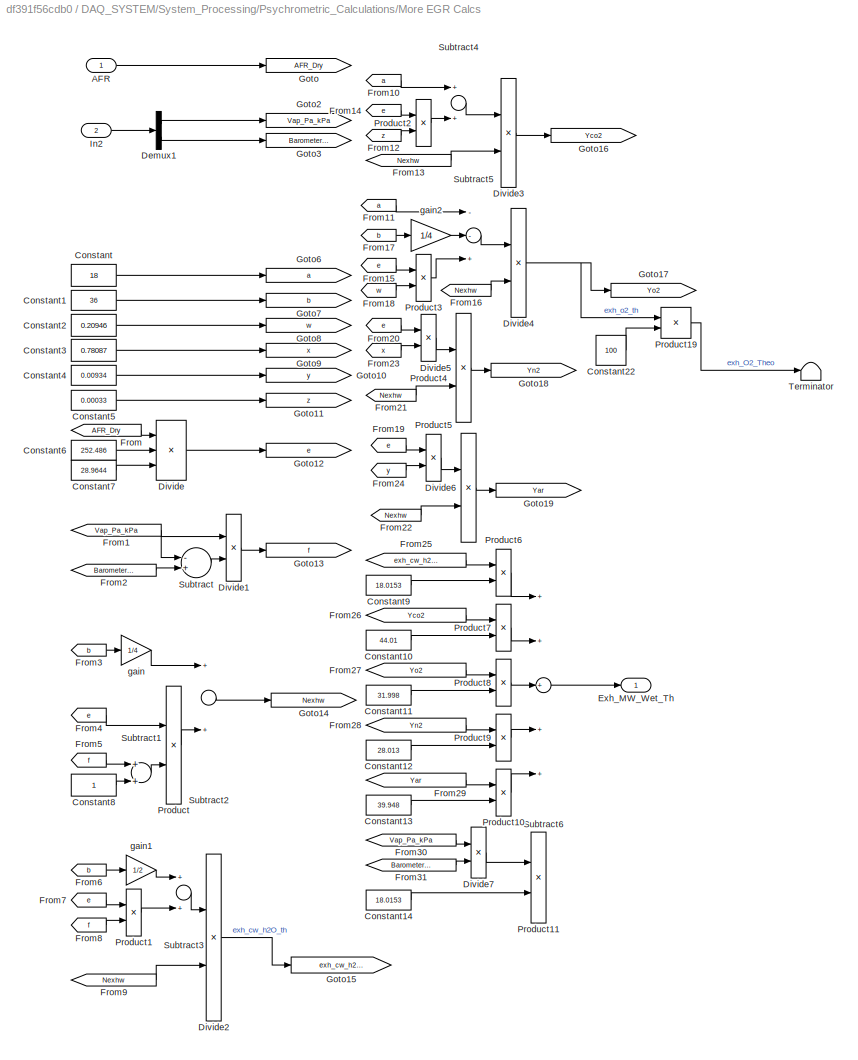
BLOCK [SubSystem] DAQ_SYSTEM/System_Processing/Psychrometric_Calculations/More EGR Calcs
  Ports = [2, 1]
  RequestExecContextInheritance = off
  Variant = off
BLOCK [Inport] DAQ_SYSTEM/System_Processing/Psychrometric_Calculations/More EGR Calcs/AFR
  IconDisplay = Port number
BLOCK [Constant] DAQ_SYSTEM/System_Processing/Psychrometric_Calculations/More EGR Calcs/Constant
  Value = 18
BLOCK [Constant] DAQ_SYSTEM/System_Processing/Psychrometric_Calculations/More EGR Calcs/Constant1
  Value = 36
BLOCK [Constant] DAQ_SYSTEM/System_Processing/Psychrometric_Calculations/More EGR Calcs/Constant10
  Value = 44.01
BLOCK [Constant] DAQ_SYSTEM/System_Processing/Psychrometric_Calculations/More EGR Calcs/Constant11
  Value = 31.998
BLOCK [Constant] DAQ_SYSTEM/System_Processing/Psychrometric_Calculations/More EGR Calcs/Constant12
  Value = 28.013
BLOCK [Constant] DAQ_SYSTEM/System_Processing/Psychrometric_Calculations/More EGR Calcs/Constant13
  Value = 39.948
BLOCK [Constant] DAQ_SYSTEM/System_Processing/Psychrometric_Calculations/More EGR Calcs/Constant14
  Value = 18.0153
BLOCK [Constant] DAQ_SYSTEM/System_Processing/Psychrometric_Calculations/More EGR Calcs/Constant2
  Value = 0.20946
BLOCK [Constant] DAQ_SYSTEM/System_Processing/Psychrometric_Calculations/More EGR Calcs/Constant22
  Value = 100
BLOCK [Constant] DAQ_SYSTEM/System_Processing/Psychrometric_Calculations/More EGR Calcs/Constant3
  Value = 0.78087
BLOCK [Constant] DAQ_SYSTEM/System_Processing/Psychrometric_Calculations/More EGR Calcs/Constant4
  Value = 0.00934
BLOCK [Constant] DAQ_SYSTEM/System_Processing/Psychrometric_Calculations/More EGR Calcs/Constant5
  Value = 0.00033
BLOCK [Constant] DAQ_SYSTEM/System_Processing/Psychrometric_Calculations/More EGR Calcs/Constant6
  Value = 252.486
BLOCK [Constant] DAQ_SYSTEM/System_Processing/Psychrometric_Calculations/More EGR Calcs/Constant7
  Value = 28.9644
BLOCK [Constant] DAQ_SYSTEM/System_Processing/Psychrometric_Calculations/More EGR Calcs/Constant8
BLOCK [Constant] DAQ_SYSTEM/System_Processing/Psychrometric_Calculations/More EGR Calcs/Constant9
  Value = 18.0153
BLOCK [Demux] DAQ_SYSTEM/System_Processing/Psychrometric_Calculations/More EGR Calcs/Demux1
  DisplayOption = bar
  Outputs = 2
  Ports = [1, 2]
BLOCK [Product] DAQ_SYSTEM/System_Processing/Psychrometric_Calculations/More EGR Calcs/Divide
  InputSameDT = off
  Inputs = **/
  OutDataTypeStr = Inherit: Inherit via internal rule
  Ports = [3, 1]
  RndMeth = Floor
  SaturateOnIntegerOverflow = off
BLOCK [Product] DAQ_SYSTEM/System_Processing/Psychrometric_Calculations/More EGR Calcs/Divide1
  InputSameDT = off
  Inputs = */
  OutDataTypeStr = Inherit: Inherit via internal rule
  Ports = [2, 1]
  RndMeth = Floor
  SaturateOnIntegerOverflow = off
BLOCK [Product] DAQ_SYSTEM/System_Processing/Psychrometric_Calculations/More EGR Calcs/Divide2
  InputSameDT = off
  Inputs = */
  OutDataTypeStr = Inherit: Inherit via internal rule
  Ports = [2, 1]
  RndMeth = Floor
  SaturateOnIntegerOverflow = off
BLOCK [Product] DAQ_SYSTEM/System_Processing/Psychrometric_Calculations/More EGR Calcs/Divide3
  InputSameDT = off
  Inputs = */
  OutDataTypeStr = Inherit: Inherit via internal rule
  Ports = [2, 1]
  RndMeth = Floor
  SaturateOnIntegerOverflow = off
BLOCK [Product] DAQ_SYSTEM/System_Processing/Psychrometric_Calculations/More EGR Calcs/Divide4
  InputSameDT = off
  Inputs = */
  OutDataTypeStr = Inherit: Inherit via internal rule
  Ports = [2, 1]
  RndMeth = Floor
  SaturateOnIntegerOverflow = off
BLOCK [Product] DAQ_SYSTEM/System_Processing/Psychrometric_Calculations/More EGR Calcs/Divide5
  InputSameDT = off
  Inputs = */
  OutDataTypeStr = Inherit: Inherit via internal rule
  Ports = [2, 1]
  RndMeth = Floor
  SaturateOnIntegerOverflow = off
BLOCK [Product] DAQ_SYSTEM/System_Processing/Psychrometric_Calculations/More EGR Calcs/Divide6
  InputSameDT = off
  Inputs = */
  OutDataTypeStr = Inherit: Inherit via internal rule
  Ports = [2, 1]
  RndMeth = Floor
  SaturateOnIntegerOverflow = off
BLOCK [Product] DAQ_SYSTEM/System_Processing/Psychrometric_Calculations/More EGR Calcs/Divide7
  InputSameDT = off
  Inputs = */
  OutDataTypeStr = Inherit: Inherit via internal rule
  Ports = [2, 1]
  RndMeth = Floor
  SaturateOnIntegerOverflow = off
BLOCK [Outport] DAQ_SYSTEM/System_Processing/Psychrometric_Calculations/More EGR Calcs/Exh_MW_Wet_Th
  IconDisplay = Port number
BLOCK [From] DAQ_SYSTEM/System_Processing/Psychrometric_Calculations/More EGR Calcs/From
  CloseFcn = tagdialog Close
  GotoTag = AFR_Dry
BLOCK [From] DAQ_SYSTEM/System_Processing/Psychrometric_Calculations/More EGR Calcs/From1
  CloseFcn = tagdialog Close
  GotoTag = Vap_Pa_kPa
BLOCK [From] DAQ_SYSTEM/System_Processing/Psychrometric_Calculations/More EGR Calcs/From10
  CloseFcn = tagdialog Close
  GotoTag = a
BLOCK [From] DAQ_SYSTEM/System_Processing/Psychrometric_Calculations/More EGR Calcs/From11
  CloseFcn = tagdialog Close
  GotoTag = a
BLOCK [From] DAQ_SYSTEM/System_Processing/Psychrometric_Calculations/More EGR Calcs/From12
  CloseFcn = tagdialog Close
  GotoTag = z
BLOCK [From] DAQ_SYSTEM/System_Processing/Psychrometric_Calculations/More EGR Calcs/From13
  CloseFcn = tagdialog Close
  GotoTag = Nexhw
BLOCK [From] DAQ_SYSTEM/System_Processing/Psychrometric_Calculations/More EGR Calcs/From14
  CloseFcn = tagdialog Close
  GotoTag = e
BLOCK [From] DAQ_SYSTEM/System_Processing/Psychrometric_Calculations/More EGR Calcs/From15
  CloseFcn = tagdialog Close
  GotoTag = e
BLOCK [From] DAQ_SYSTEM/System_Processing/Psychrometric_Calculations/More EGR Calcs/From16
  CloseFcn = tagdialog Close
  GotoTag = Nexhw
BLOCK [From] DAQ_SYSTEM/System_Processing/Psychrometric_Calculations/More EGR Calcs/From17
  CloseFcn = tagdialog Close
  GotoTag = b
BLOCK [From] DAQ_SYSTEM/System_Processing/Psychrometric_Calculations/More EGR Calcs/From18
  CloseFcn = tagdialog Close
  GotoTag = w
BLOCK [From] DAQ_SYSTEM/System_Processing/Psychrometric_Calculations/More EGR Calcs/From19
  CloseFcn = tagdialog Close
  GotoTag = e
BLOCK [From] DAQ_SYSTEM/System_Processing/Psychrometric_Calculations/More EGR Calcs/From2
  CloseFcn = tagdialog Close
  GotoTag = Barometer_kPa
BLOCK [From] DAQ_SYSTEM/System_Processing/Psychrometric_Calculations/More EGR Calcs/From20
  CloseFcn = tagdialog Close
  GotoTag = e
BLOCK [From] DAQ_SYSTEM/System_Processing/Psychrometric_Calculations/More EGR Calcs/From21
  CloseFcn = tagdialog Close
  GotoTag = Nexhw
BLOCK [From] DAQ_SYSTEM/System_Processing/Psychrometric_Calculations/More EGR Calcs/From22
  CloseFcn = tagdialog Close
  GotoTag = Nexhw
BLOCK [From] DAQ_SYSTEM/System_Processing/Psychrometric_Calculations/More EGR Calcs/From23
  CloseFcn = tagdialog Close
  GotoTag = x
BLOCK [From] DAQ_SYSTEM/System_Processing/Psychrometric_Calculations/More EGR Calcs/From24
  CloseFcn = tagdialog Close
  GotoTag = y
BLOCK [From] DAQ_SYSTEM/System_Processing/Psychrometric_Calculations/More EGR Calcs/From25
  CloseFcn = tagdialog Close
  GotoTag = exh_cw_h2o_th
BLOCK [From] DAQ_SYSTEM/System_Processing/Psychrometric_Calculations/More EGR Calcs/From26
  CloseFcn = tagdialog Close
  GotoTag = Yco2
BLOCK [From] DAQ_SYSTEM/System_Processing/Psychrometric_Calculations/More EGR Calcs/From27
  CloseFcn = tagdialog Close
  GotoTag = Yo2
BLOCK [From] DAQ_SYSTEM/System_Processing/Psychrometric_Calculations/More EGR Calcs/From28
  CloseFcn = tagdialog Close
  GotoTag = Yn2
BLOCK [From] DAQ_SYSTEM/System_Processing/Psychrometric_Calculations/More EGR Calcs/From29
  CloseFcn = tagdialog Close
  GotoTag = Yar
BLOCK [From] DAQ_SYSTEM/System_Processing/Psychrometric_Calculations/More EGR Calcs/From3
  CloseFcn = tagdialog Close
  GotoTag = b
BLOCK [From] DAQ_SYSTEM/System_Processing/Psychrometric_Calculations/More EGR Calcs/From30
  CloseFcn = tagdialog Close
  GotoTag = Vap_Pa_kPa
BLOCK [From] DAQ_SYSTEM/System_Processing/Psychrometric_Calculations/More EGR Calcs/From31
  CloseFcn = tagdialog Close
  GotoTag = Barometer_kPa
BLOCK [From] DAQ_SYSTEM/System_Processing/Psychrometric_Calculations/More EGR Calcs/From4
  CloseFcn = tagdialog Close
  GotoTag = e
BLOCK [From] DAQ_SYSTEM/System_Processing/Psychrometric_Calculations/More EGR Calcs/From5
  CloseFcn = tagdialog Close
  GotoTag = f
BLOCK [From] DAQ_SYSTEM/System_Processing/Psychrometric_Calculations/More EGR Calcs/From6
  CloseFcn = tagdialog Close
  GotoTag = b
BLOCK [From] DAQ_SYSTEM/System_Processing/Psychrometric_Calculations/More EGR Calcs/From7
  CloseFcn = tagdialog Close
  GotoTag = e
BLOCK [From] DAQ_SYSTEM/System_Processing/Psychrometric_Calculations/More EGR Calcs/From8
  CloseFcn = tagdialog Close
  GotoTag = f
BLOCK [From] DAQ_SYSTEM/System_Processing/Psychrometric_Calculations/More EGR Calcs/From9
  CloseFcn = tagdialog Close
  GotoTag = Nexhw
BLOCK [Goto] DAQ_SYSTEM/System_Processing/Psychrometric_Calculations/More EGR Calcs/Goto
  GotoTag = AFR_Dry
BLOCK [Goto] DAQ_SYSTEM/System_Processing/Psychrometric_Calculations/More EGR Calcs/Goto10
  GotoTag = y
BLOCK [Goto] DAQ_SYSTEM/System_Processing/Psychrometric_Calculations/More EGR Calcs/Goto11
  GotoTag = z
BLOCK [Goto] DAQ_SYSTEM/System_Processing/Psychrometric_Calculations/More EGR Calcs/Goto12
  GotoTag = e
BLOCK [Goto] DAQ_SYSTEM/System_Processing/Psychrometric_Calculations/More EGR Calcs/Goto13
  GotoTag = f
BLOCK [Goto] DAQ_SYSTEM/System_Processing/Psychrometric_Calculations/More EGR Calcs/Goto14
  GotoTag = Nexhw
BLOCK [Goto] DAQ_SYSTEM/System_Processing/Psychrometric_Calculations/More EGR Calcs/Goto15
  GotoTag = exh_cw_h2o_th
BLOCK [Goto] DAQ_SYSTEM/System_Processing/Psychrometric_Calculations/More EGR Calcs/Goto16
  GotoTag = Yco2
BLOCK [Goto] DAQ_SYSTEM/System_Processing/Psychrometric_Calculations/More EGR Calcs/Goto17
  GotoTag = Yo2
BLOCK [Goto] DAQ_SYSTEM/System_Processing/Psychrometric_Calculations/More EGR Calcs/Goto18
  GotoTag = Yn2
BLOCK [Goto] DAQ_SYSTEM/System_Processing/Psychrometric_Calculations/More EGR Calcs/Goto19
  GotoTag = Yar
BLOCK [Goto] DAQ_SYSTEM/System_Processing/Psychrometric_Calculations/More EGR Calcs/Goto2
  GotoTag = Vap_Pa_kPa
BLOCK [Goto] DAQ_SYSTEM/System_Processing/Psychrometric_Calculations/More EGR Calcs/Goto3
  GotoTag = Barometer_kPa
BLOCK [Goto] DAQ_SYSTEM/System_Processing/Psychrometric_Calculations/More EGR Calcs/Goto6
  GotoTag = a
BLOCK [Goto] DAQ_SYSTEM/System_Processing/Psychrometric_Calculations/More EGR Calcs/Goto7
  GotoTag = b
BLOCK [Goto] DAQ_SYSTEM/System_Processing/Psychrometric_Calculations/More EGR Calcs/Goto8
  GotoTag = w
BLOCK [Goto] DAQ_SYSTEM/System_Processing/Psychrometric_Calculations/More EGR Calcs/Goto9
  GotoTag = x
BLOCK [Inport] DAQ_SYSTEM/System_Processing/Psychrometric_Calculations/More EGR Calcs/In2
  IconDisplay = Port number
  Port = 2
BLOCK [Product] DAQ_SYSTEM/System_Processing/Psychrometric_Calculations/More EGR Calcs/Product
  InputSameDT = off
  OutDataTypeStr = Inherit: Inherit via internal rule
  Ports = [2, 1]
  SaturateOnIntegerOverflow = off
BLOCK [Product] DAQ_SYSTEM/System_Processing/Psychrometric_Calculations/More EGR Calcs/Product1
  InputSameDT = off
  OutDataTypeStr = Inherit: Inherit via internal rule
  Ports = [2, 1]
  SaturateOnIntegerOverflow = off
BLOCK [Product] DAQ_SYSTEM/System_Processing/Psychrometric_Calculations/More EGR Calcs/Product10
  InputSameDT = off
  OutDataTypeStr = Inherit: Inherit via internal rule
  Ports = [2, 1]
  SaturateOnIntegerOverflow = off
BLOCK [Product] DAQ_SYSTEM/System_Processing/Psychrometric_Calculations/More EGR Calcs/Product11
  InputSameDT = off
  OutDataTypeStr = Inherit: Inherit via internal rule
  Ports = [2, 1]
  SaturateOnIntegerOverflow = off
BLOCK [Product] DAQ_SYSTEM/System_Processing/Psychrometric_Calculations/More EGR Calcs/Product19
  InputSameDT = off
  OutDataTypeStr = Inherit: Inherit via internal rule
  Ports = [2, 1]
  SaturateOnIntegerOverflow = off
BLOCK [Product] DAQ_SYSTEM/System_Processing/Psychrometric_Calculations/More EGR Calcs/Product2
  InputSameDT = off
  OutDataTypeStr = Inherit: Inherit via internal rule
  Ports = [2, 1]
  SaturateOnIntegerOverflow = off
BLOCK [Product] DAQ_SYSTEM/System_Processing/Psychrometric_Calculations/More EGR Calcs/Product3
  InputSameDT = off
  OutDataTypeStr = Inherit: Inherit via internal rule
  Ports = [2, 1]
  SaturateOnIntegerOverflow = off
BLOCK [Product] DAQ_SYSTEM/System_Processing/Psychrometric_Calculations/More EGR Calcs/Product4
  InputSameDT = off
  OutDataTypeStr = Inherit: Inherit via internal rule
  Ports = [2, 1]
  SaturateOnIntegerOverflow = off
BLOCK [Product] DAQ_SYSTEM/System_Processing/Psychrometric_Calculations/More EGR Calcs/Product5
  InputSameDT = off
  OutDataTypeStr = Inherit: Inherit via internal rule
  Ports = [2, 1]
  SaturateOnIntegerOverflow = off
BLOCK [Product] DAQ_SYSTEM/System_Processing/Psychrometric_Calculations/More EGR Calcs/Product6
  InputSameDT = off
  OutDataTypeStr = Inherit: Inherit via internal rule
  Ports = [2, 1]
  SaturateOnIntegerOverflow = off
BLOCK [Product] DAQ_SYSTEM/System_Processing/Psychrometric_Calculations/More EGR Calcs/Product7
  InputSameDT = off
  OutDataTypeStr = Inherit: Inherit via internal rule
  Ports = [2, 1]
  SaturateOnIntegerOverflow = off
BLOCK [Product] DAQ_SYSTEM/System_Processing/Psychrometric_Calculations/More EGR Calcs/Product8
  InputSameDT = off
  OutDataTypeStr = Inherit: Inherit via internal rule
  Ports = [2, 1]
  SaturateOnIntegerOverflow = off
BLOCK [Product] DAQ_SYSTEM/System_Processing/Psychrometric_Calculations/More EGR Calcs/Product9
  InputSameDT = off
  OutDataTypeStr = Inherit: Inherit via internal rule
  Ports = [2, 1]
  SaturateOnIntegerOverflow = off
BLOCK [Sum] DAQ_SYSTEM/System_Processing/Psychrometric_Calculations/More EGR Calcs/Subtract
  InputSameDT = off
  Inputs = -+
  OutDataTypeStr = Inherit: Inherit via internal rule
  Ports = [2, 1]
  SaturateOnIntegerOverflow = off
BLOCK [Sum] DAQ_SYSTEM/System_Processing/Psychrometric_Calculations/More EGR Calcs/Subtract1
  InputSameDT = off
  OutDataTypeStr = Inherit: Inherit via internal rule
  Ports = [2, 1]
  SaturateOnIntegerOverflow = off
BLOCK [Sum] DAQ_SYSTEM/System_Processing/Psychrometric_Calculations/More EGR Calcs/Subtract2
  InputSameDT = off
  OutDataTypeStr = Inherit: Inherit via internal rule
  Ports = [2, 1]
  SaturateOnIntegerOverflow = off
BLOCK [Sum] DAQ_SYSTEM/System_Processing/Psychrometric_Calculations/More EGR Calcs/Subtract3
  InputSameDT = off
  OutDataTypeStr = Inherit: Inherit via internal rule
  Ports = [2, 1]
  SaturateOnIntegerOverflow = off
BLOCK [Sum] DAQ_SYSTEM/System_Processing/Psychrometric_Calculations/More EGR Calcs/Subtract4
  InputSameDT = off
  OutDataTypeStr = Inherit: Inherit via internal rule
  Ports = [2, 1]
  SaturateOnIntegerOverflow = off
BLOCK [Sum] DAQ_SYSTEM/System_Processing/Psychrometric_Calculations/More EGR Calcs/Subtract5
  InputSameDT = off
  Inputs = --+
  OutDataTypeStr = Inherit: Inherit via internal rule
  Ports = [3, 1]
  SaturateOnIntegerOverflow = off
BLOCK [Sum] DAQ_SYSTEM/System_Processing/Psychrometric_Calculations/More EGR Calcs/Subtract6
  InputSameDT = off
  Inputs = +++++
  OutDataTypeStr = Inherit: Inherit via internal rule
  Ports = [5, 1]
  SaturateOnIntegerOverflow = off
BLOCK [Terminator] DAQ_SYSTEM/System_Processing/Psychrometric_Calculations/More EGR Calcs/Terminator
BLOCK [Gain] DAQ_SYSTEM/System_Processing/Psychrometric_Calculations/More EGR Calcs/gain
  Gain = 1/4
  OutDataTypeStr = Inherit: Inherit via internal rule
  ParamDataTypeStr = Inherit: Inherit via internal rule
  SaturateOnIntegerOverflow = off
BLOCK [Gain] DAQ_SYSTEM/System_Processing/Psychrometric_Calculations/More EGR Calcs/gain1
  Gain = 1/2
  OutDataTypeStr = Inherit: Inherit via internal rule
  ParamDataTypeStr = Inherit: Inherit via internal rule
  SaturateOnIntegerOverflow = off
BLOCK [Gain] DAQ_SYSTEM/System_Processing/Psychrometric_Calculations/More EGR Calcs/gain2
  Gain = 1/4
  OutDataTypeStr = Inherit: Inherit via internal rule
  ParamDataTypeStr = Inherit: Inherit via internal rule
  SaturateOnIntegerOverflow = off
BLOCK [Product] DAQ_SYSTEM/System_Processing/Psychrometric_Calculations/Product
  InputSameDT = off
  OutDataTypeStr = Inherit: Inherit via internal rule
  Ports = [2, 1]
  SaturateOnIntegerOverflow = off
BLOCK [Product] DAQ_SYSTEM/System_Processing/Psychrometric_Calculations/Product1
  InputSameDT = off
  OutDataTypeStr = Inherit: Inherit via internal rule
  Ports = [2, 1]
  SaturateOnIntegerOverflow = off
BLOCK [SubSystem] DAQ_SYSTEM/System_Processing/Psychrometric_Calculations/Viscosity_Correction
  Ports = [2, 1]
  RequestExecContextInheritance = off
  Variant = off
BLOCK [Inport] DAQ_SYSTEM/System_Processing/Psychrometric_Calculations/Viscosity_Correction/AmbientAirRH
  IconDisplay = Port number
  Port = 2
BLOCK [Inport] DAQ_SYSTEM/System_Processing/Psychrometric_Calculations/Viscosity_Correction/AmbientAirTemp
  IconDisplay = Port number
BLOCK [Constant] DAQ_SYSTEM/System_Processing/Psychrometric_Calculations/Viscosity_Correction/Constant1
  Value = 273.15
BLOCK [Constant] DAQ_SYSTEM/System_Processing/Psychrometric_Calculations/Viscosity_Correction/Constant2
  Value = 3/2
BLOCK [Constant] DAQ_SYSTEM/System_Processing/Psychrometric_Calculations/Viscosity_Correction/Constant3
  Value = 14.58
BLOCK [Constant] DAQ_SYSTEM/System_Processing/Psychrometric_Calculations/Viscosity_Correction/Constant4
  Value = 110.4
BLOCK [Product] DAQ_SYSTEM/System_Processing/Psychrometric_Calculations/Viscosity_Correction/Divide4
  InputSameDT = off
  Inputs = */
  OutDataTypeStr = Inherit: Inherit via internal rule
  Ports = [2, 1]
  RndMeth = Floor
  SaturateOnIntegerOverflow = off
BLOCK [From] DAQ_SYSTEM/System_Processing/Psychrometric_Calculations/Viscosity_Correction/From24
  CloseFcn = tagdialog Close
  GotoTag = AAT_degK
BLOCK [From] DAQ_SYSTEM/System_Processing/Psychrometric_Calculations/Viscosity_Correction/From25
  CloseFcn = tagdialog Close
  GotoTag = AAT_degK
BLOCK [Goto] DAQ_SYSTEM/System_Processing/Psychrometric_Calculations/Viscosity_Correction/Goto19
  GotoTag = AAT_degK
BLOCK [Lookup2D] DAQ_SYSTEM/System_Processing/Psychrometric_Calculations/Viscosity_Correction/Lookup Table (2-D)
  ColumnIndex = [10	20	30	40	50	60	70	80	90]
  InputSameDT = off
  LookUpMeth = Interpolation-Use End Values
  RowIndex = [10.00	15.56	21.11	26.67	32.22	37.78	43.33	48.89	54.44	60.00	65.56]
  SaturateOnIntegerOverflow = off
  Table = [1.0000	1.0000	1.0000	1.0000	1.0000	1.0000	1.0000	1.0000	1.0000;1.0000	1.0000	1.0000	1.0000	1.0000	1.0000	0.9990	0.9989	0.9988;1.0000	1.0000	1.0000	1.0000	0.9990	0.9988	0.9985	0.9980	0.9975;1.0000	0.9996	0.9993	0.9989	0.9985	0.9980	0.9975	0.9963	0.9950;0.9996	0.9991	0.9985	0.9980	0.9975	0.9963	0.9950	0.9938	0.9925;0.9993	0.9986	0.9980	0.9970	0.9960	0.9943	0.9925	0.9913	0.9900;0.9989	0.9979	0.9968	...<+294ch>
BLOCK [Math] DAQ_SYSTEM/System_Processing/Psychrometric_Calculations/Viscosity_Correction/Math Function
  Operator = pow
  Ports = [2, 1]
BLOCK [Outport] DAQ_SYSTEM/System_Processing/Psychrometric_Calculations/Viscosity_Correction/Out1
  IconDisplay = Port number
BLOCK [Product] DAQ_SYSTEM/System_Processing/Psychrometric_Calculations/Viscosity_Correction/Product1
  InputSameDT = off
  OutDataTypeStr = Inherit: Inherit via internal rule
  Ports = [2, 1]
  SaturateOnIntegerOverflow = off
BLOCK [Product] DAQ_SYSTEM/System_Processing/Psychrometric_Calculations/Viscosity_Correction/Product2
  InputSameDT = off
  OutDataTypeStr = Inherit: Inherit via internal rule
  Ports = [2, 1]
  SaturateOnIntegerOverflow = off
BLOCK [Sum] DAQ_SYSTEM/System_Processing/Psychrometric_Calculations/Viscosity_Correction/Subtract
  InputSameDT = off
  OutDataTypeStr = Inherit: Inherit via internal rule
  Ports = [2, 1]
  SaturateOnIntegerOverflow = off
BLOCK [Sum] DAQ_SYSTEM/System_Processing/Psychrometric_Calculations/Viscosity_Correction/Subtract1
  InputSameDT = off
  OutDataTypeStr = Inherit: Inherit via internal rule
  Ports = [2, 1]
  SaturateOnIntegerOverflow = off
BLOCK [Outport] DAQ_SYSTEM/System_Processing/Signal_Logging
  IconDisplay = Port number
BLOCK [SubSystem] DAQ_SYSTEM/Trigger
  Ports = [1, 1]
  RequestExecContextInheritance = off
  Variant = off
BLOCK [Constant] DAQ_SYSTEM/Trigger/Constant
  Value = 10
BLOCK [Product] DAQ_SYSTEM/Trigger/Divide
  InputSameDT = off
  Inputs = */
  OutDataTypeStr = Inherit: Inherit via internal rule
  Ports = [2, 1]
  RndMeth = Floor
  SaturateOnIntegerOverflow = off
BLOCK [Rounding] DAQ_SYSTEM/Trigger/Floor
BLOCK [Memory] DAQ_SYSTEM/Trigger/Memory
  InheritSampleTime = on
BLOCK [RelationalOperator] DAQ_SYSTEM/Trigger/Relational Operator
  InputSameDT = off
  Operator = >
  OutDataTypeStr = boolean
  Ports = [2, 1]
  RndMeth = Simplest
BLOCK [Inport] DAQ_SYSTEM/Trigger/System_Clock
  IconDisplay = Port number
BLOCK [Outport] DAQ_SYSTEM/Trigger/Trigger
  IconDisplay = Port number
BLOCK [TriggerPort] DAQ_SYSTEM/Trigger1
  Ports = []
  StatesWhenEnabling = held
  VariantControl = Variant
BLOCK [SubSystem] DAQ_SYSTEM/Trigger2
  Ports = [1, 1]
  RequestExecContextInheritance = off
  Variant = off
BLOCK [Constant] DAQ_SYSTEM/Trigger2/Constant
BLOCK [Product] DAQ_SYSTEM/Trigger2/Divide
  InputSameDT = off
  Inputs = */
  OutDataTypeStr = Inherit: Inherit via internal rule
  Ports = [2, 1]
  RndMeth = Floor
  SaturateOnIntegerOverflow = off
BLOCK [Rounding] DAQ_SYSTEM/Trigger2/Floor
BLOCK [Memory] DAQ_SYSTEM/Trigger2/Memory
  InheritSampleTime = on
BLOCK [RelationalOperator] DAQ_SYSTEM/Trigger2/Relational Operator
  InputSameDT = off
  Operator = >
  OutDataTypeStr = boolean
  Ports = [2, 1]
  RndMeth = Simplest
BLOCK [Inport] DAQ_SYSTEM/Trigger2/System_Clock
  IconDisplay = Port number
BLOCK [Outport] DAQ_SYSTEM/Trigger2/Trigger
  IconDisplay = Port number
BLOCK [Constant] DAQ_Sampling_Frequency
  Value = 100
BLOCK [Outport] Logging_To_Workspace
  IconDisplay = Port number
BLOCK [Gain] Monitor_Sampling_Frequency
  OutDataTypeStr = Inherit: Inherit via internal rule
  ParamDataTypeStr = Inherit: Inherit via internal rule
  SaturateOnIntegerOverflow = off
BLOCK [SubSystem] Trigger1
  Ports = [2, 1]
  RequestExecContextInheritance = off
  Variant = off
BLOCK [Constant] Trigger1/Constant
BLOCK [Product] Trigger1/Divide
  InputSameDT = off
  Inputs = */
  OutDataTypeStr = Inherit: Inherit via internal rule
  Ports = [2, 1]
  RndMeth = Floor
  SaturateOnIntegerOverflow = off
BLOCK [Product] Trigger1/Divide1
  InputSameDT = off
  Inputs = */
  OutDataTypeStr = Inherit: Inherit via internal rule
  Ports = [2, 1]
  RndMeth = Floor
  SaturateOnIntegerOverflow = off
BLOCK [Rounding] Trigger1/Floor
BLOCK [Memory] Trigger1/Memory
  InheritSampleTime = on
BLOCK [RelationalOperator] Trigger1/Relational Operator
  InputSameDT = off
  Operator = >
  OutDataTypeStr = boolean
  Ports = [2, 1]
  RndMeth = Simplest
BLOCK [Inport] Trigger1/Sampling_Frequency
  IconDisplay = Port number
BLOCK [Inport] Trigger1/System_Clock
  IconDisplay = Port number
  Port = 2
BLOCK [Outport] Trigger1/Trigger
  IconDisplay = Port number
ANNOTATION DAQ_SYSTEM: DEBUG MODE
ANNOTATION DAQ_SYSTEM/Analog_IO_Interface: CH1 ANALOG INPUT PROCESSING
ANNOTATION DAQ_SYSTEM/Analog_IO_Interface: CH2 ANALOG INPUT PROCESSING
ANNOTATION DAQ_SYSTEM/Analog_IO_Interface: RAW ANALOG INPUTS
ANNOTATION DAQ_SYSTEM/Analog_IO_Interface/Fuel_Measurements/Fuel_Weight: FUEL WEIGHT CONVERSION
ANNOTATION DAQ_SYSTEM/Digital_IO_Interface: COMMANDED DIGITAL OUTPUTS
ANNOTATION DAQ_SYSTEM/System_Processing: ENGINE SYSTEM CALCULATIONS
ANNOTATION DAQ_SYSTEM/System_Processing: ENGINE SYSTEM CONTROLS
ANNOTATION DAQ_SYSTEM/System_Processing/Fuel_System_Control: DEBUG MODE
ANNOTATION DAQ_SYSTEM/System_Processing/Fuel_System_Control: MANUAL REFILL LOGIC
ANNOTATION DAQ_SYSTEM/System_Processing/Fuel_System_Control: REFILL LOGIC
ANNOTATION DAQ_SYSTEM/System_Processing/Psychrometric_Calculations: LFE LOGIC
NET Clock:1 -> DAQ_SYSTEM:1, Trigger1:2
LINE DAQ_SYSTEM/Analog_IO_Interface/Bus Creator:1 -> DAQ_SYSTEM/Analog_IO_Interface/Goto2:1
LINE DAQ_SYSTEM/Analog_IO_Interface/CH1_Analog_Input_Interface/Analog input:1 -> DAQ_SYSTEM/Analog_IO_Interface/CH1_Analog_Input_Interface/Demux:1
LINE DAQ_SYSTEM/Analog_IO_Interface/CH1_Analog_Input_Interface/Bus Creator:1 -> DAQ_SYSTEM/Analog_IO_Interface/CH1_Analog_Input_Interface/CH1_ANALOG_INPUTS:1
LINE DAQ_SYSTEM/Analog_IO_Interface/CH1_Analog_Input_Interface/Demux:1 -> DAQ_SYSTEM/Analog_IO_Interface/CH1_Analog_Input_Interface/Bus Creator:1
LINE DAQ_SYSTEM/Analog_IO_Interface/CH1_Analog_Input_Interface/Demux:10 -> DAQ_SYSTEM/Analog_IO_Interface/CH1_Analog_Input_Interface/Bus Creator:10
LINE DAQ_SYSTEM/Analog_IO_Interface/CH1_Analog_Input_Interface/Demux:11 -> DAQ_SYSTEM/Analog_IO_Interface/CH1_Analog_Input_Interface/Bus Creator:11
LINE DAQ_SYSTEM/Analog_IO_Interface/CH1_Analog_Input_Interface/Demux:12 -> DAQ_SYSTEM/Analog_IO_Interface/CH1_Analog_Input_Interface/Bus Creator:12
LINE DAQ_SYSTEM/Analog_IO_Interface/CH1_Analog_Input_Interface/Demux:13 -> DAQ_SYSTEM/Analog_IO_Interface/CH1_Analog_Input_Interface/Bus Creator:13
LINE DAQ_SYSTEM/Analog_IO_Interface/CH1_Analog_Input_Interface/Demux:14 -> DAQ_SYSTEM/Analog_IO_Interface/CH1_Analog_Input_Interface/Bus Creator:14
LINE DAQ_SYSTEM/Analog_IO_Interface/CH1_Analog_Input_Interface/Demux:15 -> DAQ_SYSTEM/Analog_IO_Interface/CH1_Analog_Input_Interface/Bus Creator:15
LINE DAQ_SYSTEM/Analog_IO_Interface/CH1_Analog_Input_Interface/Demux:16 -> DAQ_SYSTEM/Analog_IO_Interface/CH1_Analog_Input_Interface/Bus Creator:16
LINE DAQ_SYSTEM/Analog_IO_Interface/CH1_Analog_Input_Interface/Demux:17 -> DAQ_SYSTEM/Analog_IO_Interface/CH1_Analog_Input_Interface/Bus Creator:17
LINE DAQ_SYSTEM/Analog_IO_Interface/CH1_Analog_Input_Interface/Demux:18 -> DAQ_SYSTEM/Analog_IO_Interface/CH1_Analog_Input_Interface/Bus Creator:18
LINE DAQ_SYSTEM/Analog_IO_Interface/CH1_Analog_Input_Interface/Demux:19 -> DAQ_SYSTEM/Analog_IO_Interface/CH1_Analog_Input_Interface/Bus Creator:19
LINE DAQ_SYSTEM/Analog_IO_Interface/CH1_Analog_Input_Interface/Demux:2 -> DAQ_SYSTEM/Analog_IO_Interface/CH1_Analog_Input_Interface/Bus Creator:2
LINE DAQ_SYSTEM/Analog_IO_Interface/CH1_Analog_Input_Interface/Demux:20 -> DAQ_SYSTEM/Analog_IO_Interface/CH1_Analog_Input_Interface/Bus Creator:20
LINE DAQ_SYSTEM/Analog_IO_Interface/CH1_Analog_Input_Interface/Demux:21 -> DAQ_SYSTEM/Analog_IO_Interface/CH1_Analog_Input_Interface/Bus Creator:21
LINE DAQ_SYSTEM/Analog_IO_Interface/CH1_Analog_Input_Interface/Demux:22 -> DAQ_SYSTEM/Analog_IO_Interface/CH1_Analog_Input_Interface/Bus Creator:22
LINE DAQ_SYSTEM/Analog_IO_Interface/CH1_Analog_Input_Interface/Demux:23 -> DAQ_SYSTEM/Analog_IO_Interface/CH1_Analog_Input_Interface/Bus Creator:23
LINE DAQ_SYSTEM/Analog_IO_Interface/CH1_Analog_Input_Interface/Demux:24 -> DAQ_SYSTEM/Analog_IO_Interface/CH1_Analog_Input_Interface/Bus Creator:24
LINE DAQ_SYSTEM/Analog_IO_Interface/CH1_Analog_Input_Interface/Demux:25 -> DAQ_SYSTEM/Analog_IO_Interface/CH1_Analog_Input_Interface/Bus Creator:25
LINE DAQ_SYSTEM/Analog_IO_Interface/CH1_Analog_Input_Interface/Demux:26 -> DAQ_SYSTEM/Analog_IO_Interface/CH1_Analog_Input_Interface/Bus Creator:26
LINE DAQ_SYSTEM/Analog_IO_Interface/CH1_Analog_Input_Interface/Demux:27 -> DAQ_SYSTEM/Analog_IO_Interface/CH1_Analog_Input_Interface/Bus Creator:27
LINE DAQ_SYSTEM/Analog_IO_Interface/CH1_Analog_Input_Interface/Demux:28 -> DAQ_SYSTEM/Analog_IO_Interface/CH1_Analog_Input_Interface/Bus Creator:28
LINE DAQ_SYSTEM/Analog_IO_Interface/CH1_Analog_Input_Interface/Demux:29 -> DAQ_SYSTEM/Analog_IO_Interface/CH1_Analog_Input_Interface/Bus Creator:29
LINE DAQ_SYSTEM/Analog_IO_Interface/CH1_Analog_Input_Interface/Demux:3 -> DAQ_SYSTEM/Analog_IO_Interface/CH1_Analog_Input_Interface/Bus Creator:3
LINE DAQ_SYSTEM/Analog_IO_Interface/CH1_Analog_Input_Interface/Demux:30 -> DAQ_SYSTEM/Analog_IO_Interface/CH1_Analog_Input_Interface/Bus Creator:30
LINE DAQ_SYSTEM/Analog_IO_Interface/CH1_Analog_Input_Interface/Demux:31 -> DAQ_SYSTEM/Analog_IO_Interface/CH1_Analog_Input_Interface/Bus Creator:31
LINE DAQ_SYSTEM/Analog_IO_Interface/CH1_Analog_Input_Interface/Demux:32 -> DAQ_SYSTEM/Analog_IO_Interface/CH1_Analog_Input_Interface/Bus Creator:32
LINE DAQ_SYSTEM/Analog_IO_Interface/CH1_Analog_Input_Interface/Demux:33 -> DAQ_SYSTEM/Analog_IO_Interface/CH1_Analog_Input_Interface/Bus Creator:33
LINE DAQ_SYSTEM/Analog_IO_Interface/CH1_Analog_Input_Interface/Demux:34 -> DAQ_SYSTEM/Analog_IO_Interface/CH1_Analog_Input_Interface/Bus Creator:34
LINE DAQ_SYSTEM/Analog_IO_Interface/CH1_Analog_Input_Interface/Demux:35 -> DAQ_SYSTEM/Analog_IO_Interface/CH1_Analog_Input_Interface/Bus Creator:35
LINE DAQ_SYSTEM/Analog_IO_Interface/CH1_Analog_Input_Interface/Demux:36 -> DAQ_SYSTEM/Analog_IO_Interface/CH1_Analog_Input_Interface/Bus Creator:36
LINE DAQ_SYSTEM/Analog_IO_Interface/CH1_Analog_Input_Interface/Demux:37 -> DAQ_SYSTEM/Analog_IO_Interface/CH1_Analog_Input_Interface/Bus Creator:37
LINE DAQ_SYSTEM/Analog_IO_Interface/CH1_Analog_Input_Interface/Demux:38 -> DAQ_SYSTEM/Analog_IO_Interface/CH1_Analog_Input_Interface/Bus Creator:38
LINE DAQ_SYSTEM/Analog_IO_Interface/CH1_Analog_Input_Interface/Demux:39 -> DAQ_SYSTEM/Analog_IO_Interface/CH1_Analog_Input_Interface/Bus Creator:39
LINE DAQ_SYSTEM/Analog_IO_Interface/CH1_Analog_Input_Interface/Demux:4 -> DAQ_SYSTEM/Analog_IO_Interface/CH1_Analog_Input_Interface/Bus Creator:4
LINE DAQ_SYSTEM/Analog_IO_Interface/CH1_Analog_Input_Interface/Demux:40 -> DAQ_SYSTEM/Analog_IO_Interface/CH1_Analog_Input_Interface/Bus Creator:40
LINE DAQ_SYSTEM/Analog_IO_Interface/CH1_Analog_Input_Interface/Demux:41 -> DAQ_SYSTEM/Analog_IO_Interface/CH1_Analog_Input_Interface/Bus Creator:41
LINE DAQ_SYSTEM/Analog_IO_Interface/CH1_Analog_Input_Interface/Demux:42 -> DAQ_SYSTEM/Analog_IO_Interface/CH1_Analog_Input_Interface/Bus Creator:42
LINE DAQ_SYSTEM/Analog_IO_Interface/CH1_Analog_Input_Interface/Demux:43 -> DAQ_SYSTEM/Analog_IO_Interface/CH1_Analog_Input_Interface/Bus Creator:43
LINE DAQ_SYSTEM/Analog_IO_Interface/CH1_Analog_Input_Interface/Demux:44 -> DAQ_SYSTEM/Analog_IO_Interface/CH1_Analog_Input_Interface/Bus Creator:44
LINE DAQ_SYSTEM/Analog_IO_Interface/CH1_Analog_Input_Interface/Demux:45 -> DAQ_SYSTEM/Analog_IO_Interface/CH1_Analog_Input_Interface/Bus Creator:45
LINE DAQ_SYSTEM/Analog_IO_Interface/CH1_Analog_Input_Interface/Demux:46 -> DAQ_SYSTEM/Analog_IO_Interface/CH1_Analog_Input_Interface/Bus Creator:46
LINE DAQ_SYSTEM/Analog_IO_Interface/CH1_Analog_Input_Interface/Demux:47 -> DAQ_SYSTEM/Analog_IO_Interface/CH1_Analog_Input_Interface/Bus Creator:47
LINE DAQ_SYSTEM/Analog_IO_Interface/CH1_Analog_Input_Interface/Demux:48 -> DAQ_SYSTEM/Analog_IO_Interface/CH1_Analog_Input_Interface/Bus Creator:48
LINE DAQ_SYSTEM/Analog_IO_Interface/CH1_Analog_Input_Interface/Demux:49 -> DAQ_SYSTEM/Analog_IO_Interface/CH1_Analog_Input_Interface/Bus Creator:49
LINE DAQ_SYSTEM/Analog_IO_Interface/CH1_Analog_Input_Interface/Demux:5 -> DAQ_SYSTEM/Analog_IO_Interface/CH1_Analog_Input_Interface/Bus Creator:5
LINE DAQ_SYSTEM/Analog_IO_Interface/CH1_Analog_Input_Interface/Demux:50 -> DAQ_SYSTEM/Analog_IO_Interface/CH1_Analog_Input_Interface/Bus Creator:50
LINE DAQ_SYSTEM/Analog_IO_Interface/CH1_Analog_Input_Interface/Demux:51 -> DAQ_SYSTEM/Analog_IO_Interface/CH1_Analog_Input_Interface/Bus Creator:51
LINE DAQ_SYSTEM/Analog_IO_Interface/CH1_Analog_Input_Interface/Demux:52 -> DAQ_SYSTEM/Analog_IO_Interface/CH1_Analog_Input_Interface/Bus Creator:52
LINE DAQ_SYSTEM/Analog_IO_Interface/CH1_Analog_Input_Interface/Demux:53 -> DAQ_SYSTEM/Analog_IO_Interface/CH1_Analog_Input_Interface/Bus Creator:53
LINE DAQ_SYSTEM/Analog_IO_Interface/CH1_Analog_Input_Interface/Demux:54 -> DAQ_SYSTEM/Analog_IO_Interface/CH1_Analog_Input_Interface/Bus Creator:54
LINE DAQ_SYSTEM/Analog_IO_Interface/CH1_Analog_Input_Interface/Demux:55 -> DAQ_SYSTEM/Analog_IO_Interface/CH1_Analog_Input_Interface/Bus Creator:55
LINE DAQ_SYSTEM/Analog_IO_Interface/CH1_Analog_Input_Interface/Demux:56 -> DAQ_SYSTEM/Analog_IO_Interface/CH1_Analog_Input_Interface/Bus Creator:56
LINE DAQ_SYSTEM/Analog_IO_Interface/CH1_Analog_Input_Interface/Demux:57 -> DAQ_SYSTEM/Analog_IO_Interface/CH1_Analog_Input_Interface/Bus Creator:57
LINE DAQ_SYSTEM/Analog_IO_Interface/CH1_Analog_Input_Interface/Demux:58 -> DAQ_SYSTEM/Analog_IO_Interface/CH1_Analog_Input_Interface/Bus Creator:58
LINE DAQ_SYSTEM/Analog_IO_Interface/CH1_Analog_Input_Interface/Demux:59 -> DAQ_SYSTEM/Analog_IO_Interface/CH1_Analog_Input_Interface/Bus Creator:59
LINE DAQ_SYSTEM/Analog_IO_Interface/CH1_Analog_Input_Interface/Demux:6 -> DAQ_SYSTEM/Analog_IO_Interface/CH1_Analog_Input_Interface/Bus Creator:6
LINE DAQ_SYSTEM/Analog_IO_Interface/CH1_Analog_Input_Interface/Demux:60 -> DAQ_SYSTEM/Analog_IO_Interface/CH1_Analog_Input_Interface/Bus Creator:60
LINE DAQ_SYSTEM/Analog_IO_Interface/CH1_Analog_Input_Interface/Demux:61 -> DAQ_SYSTEM/Analog_IO_Interface/CH1_Analog_Input_Interface/Bus Creator:61
LINE DAQ_SYSTEM/Analog_IO_Interface/CH1_Analog_Input_Interface/Demux:62 -> DAQ_SYSTEM/Analog_IO_Interface/CH1_Analog_Input_Interface/Bus Creator:62
LINE DAQ_SYSTEM/Analog_IO_Interface/CH1_Analog_Input_Interface/Demux:63 -> DAQ_SYSTEM/Analog_IO_Interface/CH1_Analog_Input_Interface/Bus Creator:63
LINE DAQ_SYSTEM/Analog_IO_Interface/CH1_Analog_Input_Interface/Demux:64 -> DAQ_SYSTEM/Analog_IO_Interface/CH1_Analog_Input_Interface/Bus Creator:64
LINE DAQ_SYSTEM/Analog_IO_Interface/CH1_Analog_Input_Interface/Demux:7 -> DAQ_SYSTEM/Analog_IO_Interface/CH1_Analog_Input_Interface/Bus Creator:7
LINE DAQ_SYSTEM/Analog_IO_Interface/CH1_Analog_Input_Interface/Demux:8 -> DAQ_SYSTEM/Analog_IO_Interface/CH1_Analog_Input_Interface/Bus Creator:8
LINE DAQ_SYSTEM/Analog_IO_Interface/CH1_Analog_Input_Interface/Demux:9 -> DAQ_SYSTEM/Analog_IO_Interface/CH1_Analog_Input_Interface/Bus Creator:9
LINE DAQ_SYSTEM/Analog_IO_Interface/CH1_Analog_Input_Interface:1 -> DAQ_SYSTEM/Analog_IO_Interface/Bus Creator:1
LINE DAQ_SYSTEM/Analog_IO_Interface/CH2_Analog_Input_Interface/Analog input:1 -> DAQ_SYSTEM/Analog_IO_Interface/CH2_Analog_Input_Interface/Demux:1
LINE DAQ_SYSTEM/Analog_IO_Interface/CH2_Analog_Input_Interface/Bus Creator:1 -> DAQ_SYSTEM/Analog_IO_Interface/CH2_Analog_Input_Interface/CH2_ANALOG_INPUTS:1
LINE DAQ_SYSTEM/Analog_IO_Interface/CH2_Analog_Input_Interface/Demux:1 -> DAQ_SYSTEM/Analog_IO_Interface/CH2_Analog_Input_Interface/Bus Creator:1
LINE DAQ_SYSTEM/Analog_IO_Interface/CH2_Analog_Input_Interface/Demux:10 -> DAQ_SYSTEM/Analog_IO_Interface/CH2_Analog_Input_Interface/Bus Creator:10
LINE DAQ_SYSTEM/Analog_IO_Interface/CH2_Analog_Input_Interface/Demux:11 -> DAQ_SYSTEM/Analog_IO_Interface/CH2_Analog_Input_Interface/Bus Creator:11
LINE DAQ_SYSTEM/Analog_IO_Interface/CH2_Analog_Input_Interface/Demux:12 -> DAQ_SYSTEM/Analog_IO_Interface/CH2_Analog_Input_Interface/Bus Creator:12
LINE DAQ_SYSTEM/Analog_IO_Interface/CH2_Analog_Input_Interface/Demux:13 -> DAQ_SYSTEM/Analog_IO_Interface/CH2_Analog_Input_Interface/Bus Creator:13
LINE DAQ_SYSTEM/Analog_IO_Interface/CH2_Analog_Input_Interface/Demux:14 -> DAQ_SYSTEM/Analog_IO_Interface/CH2_Analog_Input_Interface/Bus Creator:14
LINE DAQ_SYSTEM/Analog_IO_Interface/CH2_Analog_Input_Interface/Demux:15 -> DAQ_SYSTEM/Analog_IO_Interface/CH2_Analog_Input_Interface/Bus Creator:15
LINE DAQ_SYSTEM/Analog_IO_Interface/CH2_Analog_Input_Interface/Demux:16 -> DAQ_SYSTEM/Analog_IO_Interface/CH2_Analog_Input_Interface/Bus Creator:16
LINE DAQ_SYSTEM/Analog_IO_Interface/CH2_Analog_Input_Interface/Demux:17 -> DAQ_SYSTEM/Analog_IO_Interface/CH2_Analog_Input_Interface/Bus Creator:17
LINE DAQ_SYSTEM/Analog_IO_Interface/CH2_Analog_Input_Interface/Demux:18 -> DAQ_SYSTEM/Analog_IO_Interface/CH2_Analog_Input_Interface/Bus Creator:18
LINE DAQ_SYSTEM/Analog_IO_Interface/CH2_Analog_Input_Interface/Demux:19 -> DAQ_SYSTEM/Analog_IO_Interface/CH2_Analog_Input_Interface/Bus Creator:19
LINE DAQ_SYSTEM/Analog_IO_Interface/CH2_Analog_Input_Interface/Demux:2 -> DAQ_SYSTEM/Analog_IO_Interface/CH2_Analog_Input_Interface/Bus Creator:2
LINE DAQ_SYSTEM/Analog_IO_Interface/CH2_Analog_Input_Interface/Demux:20 -> DAQ_SYSTEM/Analog_IO_Interface/CH2_Analog_Input_Interface/Bus Creator:20
LINE DAQ_SYSTEM/Analog_IO_Interface/CH2_Analog_Input_Interface/Demux:21 -> DAQ_SYSTEM/Analog_IO_Interface/CH2_Analog_Input_Interface/Bus Creator:21
LINE DAQ_SYSTEM/Analog_IO_Interface/CH2_Analog_Input_Interface/Demux:22 -> DAQ_SYSTEM/Analog_IO_Interface/CH2_Analog_Input_Interface/Bus Creator:22
LINE DAQ_SYSTEM/Analog_IO_Interface/CH2_Analog_Input_Interface/Demux:23 -> DAQ_SYSTEM/Analog_IO_Interface/CH2_Analog_Input_Interface/Bus Creator:23
LINE DAQ_SYSTEM/Analog_IO_Interface/CH2_Analog_Input_Interface/Demux:24 -> DAQ_SYSTEM/Analog_IO_Interface/CH2_Analog_Input_Interface/Bus Creator:24
LINE DAQ_SYSTEM/Analog_IO_Interface/CH2_Analog_Input_Interface/Demux:25 -> DAQ_SYSTEM/Analog_IO_Interface/CH2_Analog_Input_Interface/Bus Creator:25
LINE DAQ_SYSTEM/Analog_IO_Interface/CH2_Analog_Input_Interface/Demux:26 -> DAQ_SYSTEM/Analog_IO_Interface/CH2_Analog_Input_Interface/Bus Creator:26
LINE DAQ_SYSTEM/Analog_IO_Interface/CH2_Analog_Input_Interface/Demux:27 -> DAQ_SYSTEM/Analog_IO_Interface/CH2_Analog_Input_Interface/Bus Creator:27
LINE DAQ_SYSTEM/Analog_IO_Interface/CH2_Analog_Input_Interface/Demux:28 -> DAQ_SYSTEM/Analog_IO_Interface/CH2_Analog_Input_Interface/Bus Creator:28
LINE DAQ_SYSTEM/Analog_IO_Interface/CH2_Analog_Input_Interface/Demux:29 -> DAQ_SYSTEM/Analog_IO_Interface/CH2_Analog_Input_Interface/Bus Creator:29
LINE DAQ_SYSTEM/Analog_IO_Interface/CH2_Analog_Input_Interface/Demux:3 -> DAQ_SYSTEM/Analog_IO_Interface/CH2_Analog_Input_Interface/Bus Creator:3
LINE DAQ_SYSTEM/Analog_IO_Interface/CH2_Analog_Input_Interface/Demux:30 -> DAQ_SYSTEM/Analog_IO_Interface/CH2_Analog_Input_Interface/Bus Creator:30
LINE DAQ_SYSTEM/Analog_IO_Interface/CH2_Analog_Input_Interface/Demux:31 -> DAQ_SYSTEM/Analog_IO_Interface/CH2_Analog_Input_Interface/Bus Creator:31
LINE DAQ_SYSTEM/Analog_IO_Interface/CH2_Analog_Input_Interface/Demux:32 -> DAQ_SYSTEM/Analog_IO_Interface/CH2_Analog_Input_Interface/Bus Creator:32
LINE DAQ_SYSTEM/Analog_IO_Interface/CH2_Analog_Input_Interface/Demux:33 -> DAQ_SYSTEM/Analog_IO_Interface/CH2_Analog_Input_Interface/Bus Creator:33
LINE DAQ_SYSTEM/Analog_IO_Interface/CH2_Analog_Input_Interface/Demux:34 -> DAQ_SYSTEM/Analog_IO_Interface/CH2_Analog_Input_Interface/Bus Creator:34
LINE DAQ_SYSTEM/Analog_IO_Interface/CH2_Analog_Input_Interface/Demux:35 -> DAQ_SYSTEM/Analog_IO_Interface/CH2_Analog_Input_Interface/Bus Creator:35
LINE DAQ_SYSTEM/Analog_IO_Interface/CH2_Analog_Input_Interface/Demux:36 -> DAQ_SYSTEM/Analog_IO_Interface/CH2_Analog_Input_Interface/Bus Creator:36
LINE DAQ_SYSTEM/Analog_IO_Interface/CH2_Analog_Input_Interface/Demux:37 -> DAQ_SYSTEM/Analog_IO_Interface/CH2_Analog_Input_Interface/Bus Creator:37
LINE DAQ_SYSTEM/Analog_IO_Interface/CH2_Analog_Input_Interface/Demux:38 -> DAQ_SYSTEM/Analog_IO_Interface/CH2_Analog_Input_Interface/Bus Creator:38
LINE DAQ_SYSTEM/Analog_IO_Interface/CH2_Analog_Input_Interface/Demux:39 -> DAQ_SYSTEM/Analog_IO_Interface/CH2_Analog_Input_Interface/Bus Creator:39
LINE DAQ_SYSTEM/Analog_IO_Interface/CH2_Analog_Input_Interface/Demux:4 -> DAQ_SYSTEM/Analog_IO_Interface/CH2_Analog_Input_Interface/Bus Creator:4
LINE DAQ_SYSTEM/Analog_IO_Interface/CH2_Analog_Input_Interface/Demux:40 -> DAQ_SYSTEM/Analog_IO_Interface/CH2_Analog_Input_Interface/Bus Creator:40
LINE DAQ_SYSTEM/Analog_IO_Interface/CH2_Analog_Input_Interface/Demux:41 -> DAQ_SYSTEM/Analog_IO_Interface/CH2_Analog_Input_Interface/Bus Creator:41
LINE DAQ_SYSTEM/Analog_IO_Interface/CH2_Analog_Input_Interface/Demux:42 -> DAQ_SYSTEM/Analog_IO_Interface/CH2_Analog_Input_Interface/Bus Creator:42
LINE DAQ_SYSTEM/Analog_IO_Interface/CH2_Analog_Input_Interface/Demux:43 -> DAQ_SYSTEM/Analog_IO_Interface/CH2_Analog_Input_Interface/Bus Creator:43
LINE DAQ_SYSTEM/Analog_IO_Interface/CH2_Analog_Input_Interface/Demux:44 -> DAQ_SYSTEM/Analog_IO_Interface/CH2_Analog_Input_Interface/Bus Creator:44
LINE DAQ_SYSTEM/Analog_IO_Interface/CH2_Analog_Input_Interface/Demux:45 -> DAQ_SYSTEM/Analog_IO_Interface/CH2_Analog_Input_Interface/Bus Creator:45
LINE DAQ_SYSTEM/Analog_IO_Interface/CH2_Analog_Input_Interface/Demux:46 -> DAQ_SYSTEM/Analog_IO_Interface/CH2_Analog_Input_Interface/Bus Creator:46
LINE DAQ_SYSTEM/Analog_IO_Interface/CH2_Analog_Input_Interface/Demux:47 -> DAQ_SYSTEM/Analog_IO_Interface/CH2_Analog_Input_Interface/Bus Creator:47
LINE DAQ_SYSTEM/Analog_IO_Interface/CH2_Analog_Input_Interface/Demux:48 -> DAQ_SYSTEM/Analog_IO_Interface/CH2_Analog_Input_Interface/Bus Creator:48
LINE DAQ_SYSTEM/Analog_IO_Interface/CH2_Analog_Input_Interface/Demux:49 -> DAQ_SYSTEM/Analog_IO_Interface/CH2_Analog_Input_Interface/Bus Creator:49
LINE DAQ_SYSTEM/Analog_IO_Interface/CH2_Analog_Input_Interface/Demux:5 -> DAQ_SYSTEM/Analog_IO_Interface/CH2_Analog_Input_Interface/Bus Creator:5
LINE DAQ_SYSTEM/Analog_IO_Interface/CH2_Analog_Input_Interface/Demux:50 -> DAQ_SYSTEM/Analog_IO_Interface/CH2_Analog_Input_Interface/Bus Creator:50
LINE DAQ_SYSTEM/Analog_IO_Interface/CH2_Analog_Input_Interface/Demux:51 -> DAQ_SYSTEM/Analog_IO_Interface/CH2_Analog_Input_Interface/Bus Creator:51
LINE DAQ_SYSTEM/Analog_IO_Interface/CH2_Analog_Input_Interface/Demux:52 -> DAQ_SYSTEM/Analog_IO_Interface/CH2_Analog_Input_Interface/Bus Creator:52
LINE DAQ_SYSTEM/Analog_IO_Interface/CH2_Analog_Input_Interface/Demux:53 -> DAQ_SYSTEM/Analog_IO_Interface/CH2_Analog_Input_Interface/Bus Creator:53
LINE DAQ_SYSTEM/Analog_IO_Interface/CH2_Analog_Input_Interface/Demux:54 -> DAQ_SYSTEM/Analog_IO_Interface/CH2_Analog_Input_Interface/Bus Creator:54
LINE DAQ_SYSTEM/Analog_IO_Interface/CH2_Analog_Input_Interface/Demux:55 -> DAQ_SYSTEM/Analog_IO_Interface/CH2_Analog_Input_Interface/Bus Creator:55
LINE DAQ_SYSTEM/Analog_IO_Interface/CH2_Analog_Input_Interface/Demux:56 -> DAQ_SYSTEM/Analog_IO_Interface/CH2_Analog_Input_Interface/Bus Creator:56
LINE DAQ_SYSTEM/Analog_IO_Interface/CH2_Analog_Input_Interface/Demux:57 -> DAQ_SYSTEM/Analog_IO_Interface/CH2_Analog_Input_Interface/Bus Creator:57
LINE DAQ_SYSTEM/Analog_IO_Interface/CH2_Analog_Input_Interface/Demux:58 -> DAQ_SYSTEM/Analog_IO_Interface/CH2_Analog_Input_Interface/Bus Creator:58
LINE DAQ_SYSTEM/Analog_IO_Interface/CH2_Analog_Input_Interface/Demux:59 -> DAQ_SYSTEM/Analog_IO_Interface/CH2_Analog_Input_Interface/Bus Creator:59
LINE DAQ_SYSTEM/Analog_IO_Interface/CH2_Analog_Input_Interface/Demux:6 -> DAQ_SYSTEM/Analog_IO_Interface/CH2_Analog_Input_Interface/Bus Creator:6
LINE DAQ_SYSTEM/Analog_IO_Interface/CH2_Analog_Input_Interface/Demux:60 -> DAQ_SYSTEM/Analog_IO_Interface/CH2_Analog_Input_Interface/Bus Creator:60
LINE DAQ_SYSTEM/Analog_IO_Interface/CH2_Analog_Input_Interface/Demux:61 -> DAQ_SYSTEM/Analog_IO_Interface/CH2_Analog_Input_Interface/Bus Creator:61
LINE DAQ_SYSTEM/Analog_IO_Interface/CH2_Analog_Input_Interface/Demux:62 -> DAQ_SYSTEM/Analog_IO_Interface/CH2_Analog_Input_Interface/Bus Creator:62
LINE DAQ_SYSTEM/Analog_IO_Interface/CH2_Analog_Input_Interface/Demux:63 -> DAQ_SYSTEM/Analog_IO_Interface/CH2_Analog_Input_Interface/Bus Creator:63
LINE DAQ_SYSTEM/Analog_IO_Interface/CH2_Analog_Input_Interface/Demux:64 -> DAQ_SYSTEM/Analog_IO_Interface/CH2_Analog_Input_Interface/Bus Creator:64
LINE DAQ_SYSTEM/Analog_IO_Interface/CH2_Analog_Input_Interface/Demux:7 -> DAQ_SYSTEM/Analog_IO_Interface/CH2_Analog_Input_Interface/Bus Creator:7
LINE DAQ_SYSTEM/Analog_IO_Interface/CH2_Analog_Input_Interface/Demux:8 -> DAQ_SYSTEM/Analog_IO_Interface/CH2_Analog_Input_Interface/Bus Creator:8
LINE DAQ_SYSTEM/Analog_IO_Interface/CH2_Analog_Input_Interface/Demux:9 -> DAQ_SYSTEM/Analog_IO_Interface/CH2_Analog_Input_Interface/Bus Creator:9
LINE DAQ_SYSTEM/Analog_IO_Interface/CH2_Analog_Input_Interface:1 -> DAQ_SYSTEM/Analog_IO_Interface/Bus Creator:2
LINE DAQ_SYSTEM/Analog_IO_Interface/Constant1:1 -> DAQ_SYSTEM/Analog_IO_Interface/PWM generation (5):2
NET DAQ_SYSTEM/Analog_IO_Interface/Dyno_Measurements/Analog_Input_Bus:1 -> DAQ_SYSTEM/Analog_IO_Interface/Dyno_Measurements/Bus Selector1:1, DAQ_SYSTEM/Analog_IO_Interface/Dyno_Measurements/Bus Selector2:1, DAQ_SYSTEM/Analog_IO_Interface/Dyno_Measurements/Bus Selector3:1, DAQ_SYSTEM/Analog_IO_Interface/Dyno_Measurements/Bus Selector5:1
LINE DAQ_SYSTEM/Analog_IO_Interface/Dyno_Measurements/Bus Selector1:1 -> DAQ_SYSTEM/Analog_IO_Interface/Dyno_Measurements/ConvertAnalogToDyno:2
LINE DAQ_SYSTEM/Analog_IO_Interface/Dyno_Measurements/Bus Selector2:1 -> DAQ_SYSTEM/Analog_IO_Interface/Dyno_Measurements/ConvertAnalogToDyno:3
LINE DAQ_SYSTEM/Analog_IO_Interface/Dyno_Measurements/Bus Selector3:1 -> DAQ_SYSTEM/Analog_IO_Interface/Dyno_Measurements/ConvertAnalogToDyno:4
LINE DAQ_SYSTEM/Analog_IO_Interface/Dyno_Measurements/Bus Selector5:1 -> DAQ_SYSTEM/Analog_IO_Interface/Dyno_Measurements/ConvertAnalogToDyno:1
LINE DAQ_SYSTEM/Analog_IO_Interface/Dyno_Measurements/ConvertAnalogToDyno:1 -> DAQ_SYSTEM/Analog_IO_Interface/Dyno_Measurements/Monitor_Dyno_Speed_[RPM]:1
LINE DAQ_SYSTEM/Analog_IO_Interface/Dyno_Measurements/ConvertAnalogToDyno:2 -> DAQ_SYSTEM/Analog_IO_Interface/Dyno_Measurements/Monitor_Dyno_Torque_[lbf-ft]:1
LINE DAQ_SYSTEM/Analog_IO_Interface/Dyno_Measurements/ConvertAnalogToDyno:3 -> DAQ_SYSTEM/Analog_IO_Interface/Dyno_Measurements/Monitor_Dyno_Power_[HP]:1
LINE DAQ_SYSTEM/Analog_IO_Interface/Dyno_Measurements/ConvertAnalogToDyno:4 -> DAQ_SYSTEM/Analog_IO_Interface/Dyno_Measurements/Monitor_Dyno_Trigger_[int]:1
LINE DAQ_SYSTEM/Analog_IO_Interface/Dyno_Measurements/Monitor_Dyno_Power_[HP]:1 -> DAQ_SYSTEM/Analog_IO_Interface/Dyno_Measurements/Dyno_Power_[HP]:1
LINE DAQ_SYSTEM/Analog_IO_Interface/Dyno_Measurements/Monitor_Dyno_Speed_[RPM]:1 -> DAQ_SYSTEM/Analog_IO_Interface/Dyno_Measurements/Dyno_Speed_[RPM]:1
LINE DAQ_SYSTEM/Analog_IO_Interface/Dyno_Measurements/Monitor_Dyno_Torque_[lbf-ft]:1 -> DAQ_SYSTEM/Analog_IO_Interface/Dyno_Measurements/Dyno_Torque_[lbf-ft]:1
LINE DAQ_SYSTEM/Analog_IO_Interface/Dyno_Measurements/Monitor_Dyno_Trigger_[int]:1 -> DAQ_SYSTEM/Analog_IO_Interface/Dyno_Measurements/Dyno_Trigger_[int]:1
LINE DAQ_SYSTEM/Analog_IO_Interface/Dyno_Measurements:1 -> DAQ_SYSTEM/Analog_IO_Interface/Mux3:1
LINE DAQ_SYSTEM/Analog_IO_Interface/Dyno_Measurements:2 -> DAQ_SYSTEM/Analog_IO_Interface/Mux3:2
LINE DAQ_SYSTEM/Analog_IO_Interface/Dyno_Measurements:3 -> DAQ_SYSTEM/Analog_IO_Interface/Mux3:3
LINE DAQ_SYSTEM/Analog_IO_Interface/Dyno_Measurements:4 -> DAQ_SYSTEM/Analog_IO_Interface/Mux3:4
NET DAQ_SYSTEM/Analog_IO_Interface/From5:1 -> DAQ_SYSTEM/Analog_IO_Interface/Dyno_Measurements:1, DAQ_SYSTEM/Analog_IO_Interface/Fuel_Measurements:1, DAQ_SYSTEM/Analog_IO_Interface/LFE_Measurements:1, DAQ_SYSTEM/Analog_IO_Interface/Opacity_Measurements:1, DAQ_SYSTEM/Analog_IO_Interface/Pressure_Measurements:1
LINE DAQ_SYSTEM/Analog_IO_Interface/From6:1 -> DAQ_SYSTEM/Analog_IO_Interface/Temperature_Measurements:1
LINE DAQ_SYSTEM/Analog_IO_Interface/Fuel_Measurements/Analog_Input_Bus :1 -> DAQ_SYSTEM/Analog_IO_Interface/Fuel_Measurements/Bus Selector:1
LINE DAQ_SYSTEM/Analog_IO_Interface/Fuel_Measurements/Bus Selector:1 -> DAQ_SYSTEM/Analog_IO_Interface/Fuel_Measurements/Fuel_Weight:1
LINE DAQ_SYSTEM/Analog_IO_Interface/Fuel_Measurements/Fuel_Weight/FuelBucketOffset  :1 -> DAQ_SYSTEM/Analog_IO_Interface/Fuel_Measurements/Fuel_Weight/Sum1:2
LINE DAQ_SYSTEM/Analog_IO_Interface/Fuel_Measurements/Fuel_Weight/OffsetVoltage :1 -> DAQ_SYSTEM/Analog_IO_Interface/Fuel_Measurements/Fuel_Weight/Sum:2
LINE DAQ_SYSTEM/Analog_IO_Interface/Fuel_Measurements/Fuel_Weight/ProportionalVoltage :1 -> DAQ_SYSTEM/Analog_IO_Interface/Fuel_Measurements/Fuel_Weight/Sum:1
LINE DAQ_SYSTEM/Analog_IO_Interface/Fuel_Measurements/Fuel_Weight/Sum1:1 -> DAQ_SYSTEM/Analog_IO_Interface/Fuel_Measurements/Fuel_Weight/Weight:1
LINE DAQ_SYSTEM/Analog_IO_Interface/Fuel_Measurements/Fuel_Weight/Sum:1 -> DAQ_SYSTEM/Analog_IO_Interface/Fuel_Measurements/Fuel_Weight/Sum1:1
LINE DAQ_SYSTEM/Analog_IO_Interface/Fuel_Measurements/Fuel_Weight/Voltage:1 -> DAQ_SYSTEM/Analog_IO_Interface/Fuel_Measurements/Fuel_Weight/ProportionalVoltage :1
LINE DAQ_SYSTEM/Analog_IO_Interface/Fuel_Measurements/Fuel_Weight:1 -> DAQ_SYSTEM/Analog_IO_Interface/Fuel_Measurements/Monitor_Fuel_Weight_[lb]:1
NET DAQ_SYSTEM/Analog_IO_Interface/Fuel_Measurements/Monitor_Fuel_Weight_[lb]:1 -> DAQ_SYSTEM/Analog_IO_Interface/Fuel_Measurements/Fuel_Weight_[lb][kPa]:1, DAQ_SYSTEM/Analog_IO_Interface/Fuel_Measurements/Goto:1
LINE DAQ_SYSTEM/Analog_IO_Interface/Fuel_Measurements:1 -> DAQ_SYSTEM/Analog_IO_Interface/Mux6:1
LINE DAQ_SYSTEM/Analog_IO_Interface/LFE_Measurements/Analog_Input_Bus:1 -> DAQ_SYSTEM/Analog_IO_Interface/LFE_Measurements/Bus Selector:1
LINE DAQ_SYSTEM/Analog_IO_Interface/LFE_Measurements/Bus Selector:1 -> DAQ_SYSTEM/Analog_IO_Interface/LFE_Measurements/LFE_Linear_Sensor_Calibration:1
LINE DAQ_SYSTEM/Analog_IO_Interface/LFE_Measurements/LFE_Linear_Sensor_Calibration/Calibration Constant 1:1 -> DAQ_SYSTEM/Analog_IO_Interface/LFE_Measurements/LFE_Linear_Sensor_Calibration/Sum1:1
LINE DAQ_SYSTEM/Analog_IO_Interface/LFE_Measurements/LFE_Linear_Sensor_Calibration/Calibration Constant 2:1 -> DAQ_SYSTEM/Analog_IO_Interface/LFE_Measurements/LFE_Linear_Sensor_Calibration/Sum1:2
LINE DAQ_SYSTEM/Analog_IO_Interface/LFE_Measurements/LFE_Linear_Sensor_Calibration/In1:1 -> DAQ_SYSTEM/Analog_IO_Interface/LFE_Measurements/LFE_Linear_Sensor_Calibration/Calibration Constant 1:1
LINE DAQ_SYSTEM/Analog_IO_Interface/LFE_Measurements/LFE_Linear_Sensor_Calibration/Sum1:1 -> DAQ_SYSTEM/Analog_IO_Interface/LFE_Measurements/LFE_Linear_Sensor_Calibration/Out1:1
LINE DAQ_SYSTEM/Analog_IO_Interface/LFE_Measurements/LFE_Linear_Sensor_Calibration:1 -> DAQ_SYSTEM/Analog_IO_Interface/LFE_Measurements/Monitor_DP_[Psi]:1
NET DAQ_SYSTEM/Analog_IO_Interface/LFE_Measurements/Monitor_DP_[Psi]:1 -> DAQ_SYSTEM/Analog_IO_Interface/LFE_Measurements/DP_[Psi]:1, DAQ_SYSTEM/Analog_IO_Interface/LFE_Measurements/Goto:1
LINE DAQ_SYSTEM/Analog_IO_Interface/LFE_Measurements:1 -> DAQ_SYSTEM/Analog_IO_Interface/Mux6:3
LINE DAQ_SYSTEM/Analog_IO_Interface/Mux2:1 -> DAQ_SYSTEM/Analog_IO_Interface/Mux6:2
LINE DAQ_SYSTEM/Analog_IO_Interface/Mux3:1 -> DAQ_SYSTEM/Analog_IO_Interface/Mux6:5
LINE DAQ_SYSTEM/Analog_IO_Interface/Mux4:1 -> DAQ_SYSTEM/Analog_IO_Interface/Mux6:4
LINE DAQ_SYSTEM/Analog_IO_Interface/Mux5:1 -> DAQ_SYSTEM/Analog_IO_Interface/Mux6:6
LINE DAQ_SYSTEM/Analog_IO_Interface/Mux6:1 -> DAQ_SYSTEM/Analog_IO_Interface/Signal_Logging:1
NET DAQ_SYSTEM/Analog_IO_Interface/Opacity_Measurements/Analog_Input_Bus:1 -> DAQ_SYSTEM/Analog_IO_Interface/Opacity_Measurements/Bus Selector1:1, DAQ_SYSTEM/Analog_IO_Interface/Opacity_Measurements/Bus Selector5:1
LINE DAQ_SYSTEM/Analog_IO_Interface/Opacity_Measurements/Bus Selector1:1 -> DAQ_SYSTEM/Analog_IO_Interface/Opacity_Measurements/ConvertAnalogToPercent1:1
LINE DAQ_SYSTEM/Analog_IO_Interface/Opacity_Measurements/Bus Selector5:1 -> DAQ_SYSTEM/Analog_IO_Interface/Opacity_Measurements/ConvertAnalogToPercent2:1
LINE DAQ_SYSTEM/Analog_IO_Interface/Opacity_Measurements/ConvertAnalogToPercent1:1 -> DAQ_SYSTEM/Analog_IO_Interface/Opacity_Measurements/Monitor_Smoke_Density_[1//m]:1
LINE DAQ_SYSTEM/Analog_IO_Interface/Opacity_Measurements/ConvertAnalogToPercent2:1 -> DAQ_SYSTEM/Analog_IO_Interface/Opacity_Measurements/Monitor_Opacity_[%]:1
LINE DAQ_SYSTEM/Analog_IO_Interface/Opacity_Measurements/Monitor_Opacity_[%]:1 -> DAQ_SYSTEM/Analog_IO_Interface/Opacity_Measurements/Opacity_[%]:1
LINE DAQ_SYSTEM/Analog_IO_Interface/Opacity_Measurements/Monitor_Smoke_Density_[1//m]:1 -> DAQ_SYSTEM/Analog_IO_Interface/Opacity_Measurements/Smoke_Density_[1//m]:1
LINE DAQ_SYSTEM/Analog_IO_Interface/Opacity_Measurements:1 -> DAQ_SYSTEM/Analog_IO_Interface/Mux4:1
LINE DAQ_SYSTEM/Analog_IO_Interface/Opacity_Measurements:2 -> DAQ_SYSTEM/Analog_IO_Interface/Mux4:2
NET DAQ_SYSTEM/Analog_IO_Interface/Pressure_Measurements/Analog_Input_Bus:1 -> DAQ_SYSTEM/Analog_IO_Interface/Pressure_Measurements/Bus Selector10:1, DAQ_SYSTEM/Analog_IO_Interface/Pressure_Measurements/Bus Selector11:1, DAQ_SYSTEM/Analog_IO_Interface/Pressure_Measurements/Bus Selector12:1, DAQ_SYSTEM/Analog_IO_Interface/Pressure_Measurements/Bus Selector13:1, DAQ_SYSTEM/Analog_IO_Interface/Pressure_Measurements/Bus Selector14:1, DAQ_SYSTEM/Analog_IO_Interface/Pressure_Measurements/Bus Selector15:1, DAQ_SYSTEM/Analog_IO_Interface/Pressure_Measurements/Bus Selector16:1, DAQ_SYSTEM/Analog_IO_Interface/Pressure_Measurements/Bus Selector17:1, DAQ_SYSTEM/Analog_IO_Interface/Pressure_Measurements/Bus Selector18:1, DAQ_SYSTEM/Analog_IO_Interface/Pressure_Measurements/Bus Selector19:1, DAQ_SYSTEM/Analog_IO_Interface/Pressure_Measurements/Bus Selector1:1, DAQ_SYSTEM/Analog_IO_Interface/Pressure_Measurements/Bus Selector20:1, DAQ_SYSTEM/Analog_IO_Interface/Pressure_Measurements/Bus Selector2:1, DAQ_SYSTEM/Analog_IO_Interface/Pressure_Measurements/Bus Selector3:1, DAQ_SYSTEM/Analog_IO_Interface/Pressure_Measurements/Bus Selector4:1, DAQ_SYSTEM/Analog_IO_Interface/Pressure_Measurements/Bus Selector5:1, DAQ_SYSTEM/Analog_IO_Interface/Pressure_Measurements/Bus Selector6:1, DAQ_SYSTEM/Analog_IO_Interface/Pressure_Measurements/Bus Selector7:1, DAQ_SYSTEM/Analog_IO_Interface/Pressure_Measurements/Bus Selector8:1, DAQ_SYSTEM/Analog_IO_Interface/Pressure_Measurements/Bus Selector9:1, DAQ_SYSTEM/Analog_IO_Interface/Pressure_Measurements/Bus Selector:1
LINE DAQ_SYSTEM/Analog_IO_Interface/Pressure_Measurements/Bus Selector10:1 -> DAQ_SYSTEM/Analog_IO_Interface/Pressure_Measurements/ConvertAnalogTokPa12:1
LINE DAQ_SYSTEM/Analog_IO_Interface/Pressure_Measurements/Bus Selector11:1 -> DAQ_SYSTEM/Analog_IO_Interface/Pressure_Measurements/ConvertAnalogTokPa13:1
LINE DAQ_SYSTEM/Analog_IO_Interface/Pressure_Measurements/Bus Selector12:1 -> DAQ_SYSTEM/Analog_IO_Interface/Pressure_Measurements/ConvertAnalogTokPa14:1
LINE DAQ_SYSTEM/Analog_IO_Interface/Pressure_Measurements/Bus Selector13:1 -> DAQ_SYSTEM/Analog_IO_Interface/Pressure_Measurements/ConvertAnalogTokPa15:1
LINE DAQ_SYSTEM/Analog_IO_Interface/Pressure_Measurements/Bus Selector14:1 -> DAQ_SYSTEM/Analog_IO_Interface/Pressure_Measurements/ConvertAnalogTokPa16:1
LINE DAQ_SYSTEM/Analog_IO_Interface/Pressure_Measurements/Bus Selector15:1 -> DAQ_SYSTEM/Analog_IO_Interface/Pressure_Measurements/ConvertAnalogTokPa17:1
LINE DAQ_SYSTEM/Analog_IO_Interface/Pressure_Measurements/Bus Selector16:1 -> DAQ_SYSTEM/Analog_IO_Interface/Pressure_Measurements/ConvertAnalogTokPa18:1
LINE DAQ_SYSTEM/Analog_IO_Interface/Pressure_Measurements/Bus Selector17:1 -> DAQ_SYSTEM/Analog_IO_Interface/Pressure_Measurements/ConvertAnalogTokPa19:1
LINE DAQ_SYSTEM/Analog_IO_Interface/Pressure_Measurements/Bus Selector18:1 -> DAQ_SYSTEM/Analog_IO_Interface/Pressure_Measurements/ConvertAnalogTokPa1:1
LINE DAQ_SYSTEM/Analog_IO_Interface/Pressure_Measurements/Bus Selector19:1 -> DAQ_SYSTEM/Analog_IO_Interface/Pressure_Measurements/ConvertAnalogTokPa2:1
LINE DAQ_SYSTEM/Analog_IO_Interface/Pressure_Measurements/Bus Selector1:1 -> DAQ_SYSTEM/Analog_IO_Interface/Pressure_Measurements/ConvertAnalogTokPa11:1
LINE DAQ_SYSTEM/Analog_IO_Interface/Pressure_Measurements/Bus Selector20:1 -> DAQ_SYSTEM/Analog_IO_Interface/Pressure_Measurements/ConvertAnalogTokPa:1
LINE DAQ_SYSTEM/Analog_IO_Interface/Pressure_Measurements/Bus Selector2:1 -> DAQ_SYSTEM/Analog_IO_Interface/Pressure_Measurements/ConvertAnalogTokPa8:1
LINE DAQ_SYSTEM/Analog_IO_Interface/Pressure_Measurements/Bus Selector3:1 -> DAQ_SYSTEM/Analog_IO_Interface/Pressure_Measurements/ConvertAnalogTokPa20:1
LINE DAQ_SYSTEM/Analog_IO_Interface/Pressure_Measurements/Bus Selector4:1 -> DAQ_SYSTEM/Analog_IO_Interface/Pressure_Measurements/ConvertAnalogTokPa3:1
LINE DAQ_SYSTEM/Analog_IO_Interface/Pressure_Measurements/Bus Selector5:1 -> DAQ_SYSTEM/Analog_IO_Interface/Pressure_Measurements/ConvertAnalogTokPa5:1
LINE DAQ_SYSTEM/Analog_IO_Interface/Pressure_Measurements/Bus Selector6:1 -> DAQ_SYSTEM/Analog_IO_Interface/Pressure_Measurements/ConvertAnalogTokPa6:1
LINE DAQ_SYSTEM/Analog_IO_Interface/Pressure_Measurements/Bus Selector7:1 -> DAQ_SYSTEM/Analog_IO_Interface/Pressure_Measurements/ConvertAnalogTokPa7:1
LINE DAQ_SYSTEM/Analog_IO_Interface/Pressure_Measurements/Bus Selector8:1 -> DAQ_SYSTEM/Analog_IO_Interface/Pressure_Measurements/ConvertAnalogTokPa9:1
LINE DAQ_SYSTEM/Analog_IO_Interface/Pressure_Measurements/Bus Selector9:1 -> DAQ_SYSTEM/Analog_IO_Interface/Pressure_Measurements/ConvertAnalogTokPa10:1
LINE DAQ_SYSTEM/Analog_IO_Interface/Pressure_Measurements/Bus Selector:1 -> DAQ_SYSTEM/Analog_IO_Interface/Pressure_Measurements/ConvertAnalogTokPa4:1
LINE DAQ_SYSTEM/Analog_IO_Interface/Pressure_Measurements/ConvertAnalogTokPa10:1 -> DAQ_SYSTEM/Analog_IO_Interface/Pressure_Measurements/Monitor_Compressor_Out_Pressure_[kPa]:1
LINE DAQ_SYSTEM/Analog_IO_Interface/Pressure_Measurements/ConvertAnalogTokPa11:1 -> DAQ_SYSTEM/Analog_IO_Interface/Pressure_Measurements/Monitor_Turbine_Out_Pressure_[kPa]:1
LINE DAQ_SYSTEM/Analog_IO_Interface/Pressure_Measurements/ConvertAnalogTokPa12:1 -> DAQ_SYSTEM/Analog_IO_Interface/Pressure_Measurements/Monitor_CAC_Out_Pressure_[kPa]:1
LINE DAQ_SYSTEM/Analog_IO_Interface/Pressure_Measurements/ConvertAnalogTokPa13:1 -> DAQ_SYSTEM/Analog_IO_Interface/Pressure_Measurements/Monitor_EGR_Bypass_Out_Pressure_[kPa]:1
LINE DAQ_SYSTEM/Analog_IO_Interface/Pressure_Measurements/ConvertAnalogTokPa14:1 -> DAQ_SYSTEM/Analog_IO_Interface/Pressure_Measurements/Monitor_Intake_Manifold_Pressure_[kPa]:1
LINE DAQ_SYSTEM/Analog_IO_Interface/Pressure_Measurements/ConvertAnalogTokPa15:1 -> DAQ_SYSTEM/Analog_IO_Interface/Pressure_Measurements/Monitor_EGR_Cooler_Out_Pressure_[kPa]:1
LINE DAQ_SYSTEM/Analog_IO_Interface/Pressure_Measurements/ConvertAnalogTokPa16:1 -> DAQ_SYSTEM/Analog_IO_Interface/Pressure_Measurements/Monitor_Coolant_In_Pressure_[kPa]:1
LINE DAQ_SYSTEM/Analog_IO_Interface/Pressure_Measurements/ConvertAnalogTokPa17:1 -> DAQ_SYSTEM/Analog_IO_Interface/Pressure_Measurements/Monitor_EGR_Coolant_In_Pressure_[kPa]:1
LINE DAQ_SYSTEM/Analog_IO_Interface/Pressure_Measurements/ConvertAnalogTokPa18:1 -> DAQ_SYSTEM/Analog_IO_Interface/Pressure_Measurements/Monitor_EGR_Coolant_Out_Pressure_[kPa]:1
LINE DAQ_SYSTEM/Analog_IO_Interface/Pressure_Measurements/ConvertAnalogTokPa19:1 -> DAQ_SYSTEM/Analog_IO_Interface/Pressure_Measurements/Monitor_Block_Intake_Pressure_[kPa]:1
LINE DAQ_SYSTEM/Analog_IO_Interface/Pressure_Measurements/ConvertAnalogTokPa1:1 -> DAQ_SYSTEM/Analog_IO_Interface/Pressure_Measurements/Monitor_Fuel_Pump_In_Pressure_[kPa]:1
LINE DAQ_SYSTEM/Analog_IO_Interface/Pressure_Measurements/ConvertAnalogTokPa20:1 -> DAQ_SYSTEM/Analog_IO_Interface/Pressure_Measurements/Monitor_Coolant_Out_Pressure_[kPa]:1
LINE DAQ_SYSTEM/Analog_IO_Interface/Pressure_Measurements/ConvertAnalogTokPa2:1 -> DAQ_SYSTEM/Analog_IO_Interface/Pressure_Measurements/Monitor_Fuel_Return_Pressure_[kPa]:1
LINE DAQ_SYSTEM/Analog_IO_Interface/Pressure_Measurements/ConvertAnalogTokPa3:1 -> DAQ_SYSTEM/Analog_IO_Interface/Pressure_Measurements/Monitor_Crank_Case_Pressure_[kPa]:1
LINE DAQ_SYSTEM/Analog_IO_Interface/Pressure_Measurements/ConvertAnalogTokPa4:1 -> DAQ_SYSTEM/Analog_IO_Interface/Pressure_Measurements/Monitor_Compressor_In_Pressure_[kPa]:1
LINE DAQ_SYSTEM/Analog_IO_Interface/Pressure_Measurements/ConvertAnalogTokPa5:1 -> DAQ_SYSTEM/Analog_IO_Interface/Pressure_Measurements/Monitor_EGR_In_Pressure_[kPa]:1
LINE DAQ_SYSTEM/Analog_IO_Interface/Pressure_Measurements/ConvertAnalogTokPa6:1 -> DAQ_SYSTEM/Analog_IO_Interface/Pressure_Measurements/Monitor_Turbine_Front_Pressure_[kPa]:1
LINE DAQ_SYSTEM/Analog_IO_Interface/Pressure_Measurements/ConvertAnalogTokPa7:1 -> DAQ_SYSTEM/Analog_IO_Interface/Pressure_Measurements/Monitor_Turbine_Rear_Pressure_[kPa]:1
LINE DAQ_SYSTEM/Analog_IO_Interface/Pressure_Measurements/ConvertAnalogTokPa8:1 -> DAQ_SYSTEM/Analog_IO_Interface/Pressure_Measurements/Monitor_Blowby_Pressure_[kPa]:1
LINE DAQ_SYSTEM/Analog_IO_Interface/Pressure_Measurements/ConvertAnalogTokPa9:1 -> DAQ_SYSTEM/Analog_IO_Interface/Pressure_Measurements/Monitor_CAC_In_Pressure_[kPa]:1
LINE DAQ_SYSTEM/Analog_IO_Interface/Pressure_Measurements/ConvertAnalogTokPa:1 -> DAQ_SYSTEM/Analog_IO_Interface/Pressure_Measurements/Monitor_Oil_Refill_Pressure_[kPa]:1
LINE DAQ_SYSTEM/Analog_IO_Interface/Pressure_Measurements/Monitor_Block_Intake_Pressure_[kPa]:1 -> DAQ_SYSTEM/Analog_IO_Interface/Pressure_Measurements/Block_Intake_Pressure_[kPa]:1
LINE DAQ_SYSTEM/Analog_IO_Interface/Pressure_Measurements/Monitor_Blowby_Pressure_[kPa]:1 -> DAQ_SYSTEM/Analog_IO_Interface/Pressure_Measurements/Blowby_Pressure_[kPa]:1
LINE DAQ_SYSTEM/Analog_IO_Interface/Pressure_Measurements/Monitor_CAC_In_Pressure_[kPa]:1 -> DAQ_SYSTEM/Analog_IO_Interface/Pressure_Measurements/CAC_In_Pressure_[kPa]:1
LINE DAQ_SYSTEM/Analog_IO_Interface/Pressure_Measurements/Monitor_CAC_Out_Pressure_[kPa]:1 -> DAQ_SYSTEM/Analog_IO_Interface/Pressure_Measurements/CAC_Out_Pressure_[kPa]:1
NET DAQ_SYSTEM/Analog_IO_Interface/Pressure_Measurements/Monitor_Compressor_In_Pressure_[kPa]:1 -> DAQ_SYSTEM/Analog_IO_Interface/Pressure_Measurements/Compressor_In_Pressure_[kPa]:1, DAQ_SYSTEM/Analog_IO_Interface/Pressure_Measurements/Goto:1
LINE DAQ_SYSTEM/Analog_IO_Interface/Pressure_Measurements/Monitor_Compressor_Out_Pressure_[kPa]:1 -> DAQ_SYSTEM/Analog_IO_Interface/Pressure_Measurements/Compressor_Out_Pressure_[kPa]:1
LINE DAQ_SYSTEM/Analog_IO_Interface/Pressure_Measurements/Monitor_Coolant_In_Pressure_[kPa]:1 -> DAQ_SYSTEM/Analog_IO_Interface/Pressure_Measurements/Coolant_In_Pressure_[kPa]:1
LINE DAQ_SYSTEM/Analog_IO_Interface/Pressure_Measurements/Monitor_Coolant_Out_Pressure_[kPa]:1 -> DAQ_SYSTEM/Analog_IO_Interface/Pressure_Measurements/Coolant_Out_Pressure_[kPa]:1
LINE DAQ_SYSTEM/Analog_IO_Interface/Pressure_Measurements/Monitor_Crank_Case_Pressure_[kPa]:1 -> DAQ_SYSTEM/Analog_IO_Interface/Pressure_Measurements/Crank_Case_Pressure_[kPa]:1
LINE DAQ_SYSTEM/Analog_IO_Interface/Pressure_Measurements/Monitor_EGR_Bypass_Out_Pressure_[kPa]:1 -> DAQ_SYSTEM/Analog_IO_Interface/Pressure_Measurements/EGR_Bypass_Out_Pressure_[kPa]:1
LINE DAQ_SYSTEM/Analog_IO_Interface/Pressure_Measurements/Monitor_EGR_Coolant_In_Pressure_[kPa]:1 -> DAQ_SYSTEM/Analog_IO_Interface/Pressure_Measurements/EGR_Coolant_In_Pressure_[kPa]:1
LINE DAQ_SYSTEM/Analog_IO_Interface/Pressure_Measurements/Monitor_EGR_Coolant_Out_Pressure_[kPa]:1 -> DAQ_SYSTEM/Analog_IO_Interface/Pressure_Measurements/EGR_Coolant_Out_Pressure_[kPa]:1
LINE DAQ_SYSTEM/Analog_IO_Interface/Pressure_Measurements/Monitor_EGR_Cooler_Out_Pressure_[kPa]:1 -> DAQ_SYSTEM/Analog_IO_Interface/Pressure_Measurements/EGR_Cooler_Out_Pressure_[kPa]:1
LINE DAQ_SYSTEM/Analog_IO_Interface/Pressure_Measurements/Monitor_EGR_In_Pressure_[kPa]:1 -> DAQ_SYSTEM/Analog_IO_Interface/Pressure_Measurements/EGR_In_Pressure_[kPa]:1
LINE DAQ_SYSTEM/Analog_IO_Interface/Pressure_Measurements/Monitor_Fuel_Pump_In_Pressure_[kPa]:1 -> DAQ_SYSTEM/Analog_IO_Interface/Pressure_Measurements/Fuel_Pump_In_Pressure_[kPa]:1
LINE DAQ_SYSTEM/Analog_IO_Interface/Pressure_Measurements/Monitor_Fuel_Return_Pressure_[kPa]:1 -> DAQ_SYSTEM/Analog_IO_Interface/Pressure_Measurements/Fuel_Return_Pressure_[kPa]:1
LINE DAQ_SYSTEM/Analog_IO_Interface/Pressure_Measurements/Monitor_Intake_Manifold_Pressure_[kPa]:1 -> DAQ_SYSTEM/Analog_IO_Interface/Pressure_Measurements/Intake_Manifold_Pressure_[kPa]:1
LINE DAQ_SYSTEM/Analog_IO_Interface/Pressure_Measurements/Monitor_Oil_Refill_Pressure_[kPa]:1 -> DAQ_SYSTEM/Analog_IO_Interface/Pressure_Measurements/Oil_Refill_Pressure_[kPa]:1
LINE DAQ_SYSTEM/Analog_IO_Interface/Pressure_Measurements/Monitor_Turbine_Front_Pressure_[kPa]:1 -> DAQ_SYSTEM/Analog_IO_Interface/Pressure_Measurements/Turbine_Front_Pressure_[kPa]:1
LINE DAQ_SYSTEM/Analog_IO_Interface/Pressure_Measurements/Monitor_Turbine_Out_Pressure_[kPa]:1 -> DAQ_SYSTEM/Analog_IO_Interface/Pressure_Measurements/Turbine_Out_Pressure_[kPa]:1
LINE DAQ_SYSTEM/Analog_IO_Interface/Pressure_Measurements/Monitor_Turbine_Rear_Pressure_[kPa]:1 -> DAQ_SYSTEM/Analog_IO_Interface/Pressure_Measurements/Turbine_Rear_Pressure_[kPa]:1
LINE DAQ_SYSTEM/Analog_IO_Interface/Pressure_Measurements:1 -> DAQ_SYSTEM/Analog_IO_Interface/Mux2:1
LINE DAQ_SYSTEM/Analog_IO_Interface/Pressure_Measurements:10 -> DAQ_SYSTEM/Analog_IO_Interface/Mux2:10
LINE DAQ_SYSTEM/Analog_IO_Interface/Pressure_Measurements:11 -> DAQ_SYSTEM/Analog_IO_Interface/Mux2:11
LINE DAQ_SYSTEM/Analog_IO_Interface/Pressure_Measurements:12 -> DAQ_SYSTEM/Analog_IO_Interface/Mux2:12
LINE DAQ_SYSTEM/Analog_IO_Interface/Pressure_Measurements:13 -> DAQ_SYSTEM/Analog_IO_Interface/Mux2:13
LINE DAQ_SYSTEM/Analog_IO_Interface/Pressure_Measurements:14 -> DAQ_SYSTEM/Analog_IO_Interface/Mux2:14
LINE DAQ_SYSTEM/Analog_IO_Interface/Pressure_Measurements:15 -> DAQ_SYSTEM/Analog_IO_Interface/Mux2:15
LINE DAQ_SYSTEM/Analog_IO_Interface/Pressure_Measurements:16 -> DAQ_SYSTEM/Analog_IO_Interface/Mux2:16
LINE DAQ_SYSTEM/Analog_IO_Interface/Pressure_Measurements:17 -> DAQ_SYSTEM/Analog_IO_Interface/Mux2:17
LINE DAQ_SYSTEM/Analog_IO_Interface/Pressure_Measurements:18 -> DAQ_SYSTEM/Analog_IO_Interface/Mux2:18
LINE DAQ_SYSTEM/Analog_IO_Interface/Pressure_Measurements:19 -> DAQ_SYSTEM/Analog_IO_Interface/Mux2:19
LINE DAQ_SYSTEM/Analog_IO_Interface/Pressure_Measurements:2 -> DAQ_SYSTEM/Analog_IO_Interface/Mux2:2
LINE DAQ_SYSTEM/Analog_IO_Interface/Pressure_Measurements:20 -> DAQ_SYSTEM/Analog_IO_Interface/Mux2:20
LINE DAQ_SYSTEM/Analog_IO_Interface/Pressure_Measurements:21 -> DAQ_SYSTEM/Analog_IO_Interface/Mux2:21
LINE DAQ_SYSTEM/Analog_IO_Interface/Pressure_Measurements:3 -> DAQ_SYSTEM/Analog_IO_Interface/Mux2:3
LINE DAQ_SYSTEM/Analog_IO_Interface/Pressure_Measurements:4 -> DAQ_SYSTEM/Analog_IO_Interface/Mux2:4
LINE DAQ_SYSTEM/Analog_IO_Interface/Pressure_Measurements:5 -> DAQ_SYSTEM/Analog_IO_Interface/Mux2:5
LINE DAQ_SYSTEM/Analog_IO_Interface/Pressure_Measurements:6 -> DAQ_SYSTEM/Analog_IO_Interface/Mux2:6
LINE DAQ_SYSTEM/Analog_IO_Interface/Pressure_Measurements:7 -> DAQ_SYSTEM/Analog_IO_Interface/Mux2:7
LINE DAQ_SYSTEM/Analog_IO_Interface/Pressure_Measurements:8 -> DAQ_SYSTEM/Analog_IO_Interface/Mux2:8
LINE DAQ_SYSTEM/Analog_IO_Interface/Pressure_Measurements:9 -> DAQ_SYSTEM/Analog_IO_Interface/Mux2:9
NET DAQ_SYSTEM/Analog_IO_Interface/Temperature_Measurements/Analog_Input_Bus:1 -> DAQ_SYSTEM/Analog_IO_Interface/Temperature_Measurements/Bus Selector10:1, DAQ_SYSTEM/Analog_IO_Interface/Temperature_Measurements/Bus Selector11:1, DAQ_SYSTEM/Analog_IO_Interface/Temperature_Measurements/Bus Selector12:1, DAQ_SYSTEM/Analog_IO_Interface/Temperature_Measurements/Bus Selector13:1, DAQ_SYSTEM/Analog_IO_Interface/Temperature_Measurements/Bus Selector14:1, DAQ_SYSTEM/Analog_IO_Interface/Temperature_Measurements/Bus Selector15:1, DAQ_SYSTEM/Analog_IO_Interface/Temperature_Measurements/Bus Selector16:1, DAQ_SYSTEM/Analog_IO_Interface/Temperature_Measurements/Bus Selector17:1, DAQ_SYSTEM/Analog_IO_Interface/Temperature_Measurements/Bus Selector18:1, DAQ_SYSTEM/Analog_IO_Interface/Temperature_Measurements/Bus Selector19:1, DAQ_SYSTEM/Analog_IO_Interface/Temperature_Measurements/Bus Selector1:1, DAQ_SYSTEM/Analog_IO_Interface/Temperature_Measurements/Bus Selector20:1, DAQ_SYSTEM/Analog_IO_Interface/Temperature_Measurements/Bus Selector21:1, DAQ_SYSTEM/Analog_IO_Interface/Temperature_Measurements/Bus Selector22:1, DAQ_SYSTEM/Analog_IO_Interface/Temperature_Measurements/Bus Selector23:1, DAQ_SYSTEM/Analog_IO_Interface/Temperature_Measurements/Bus Selector24:1, DAQ_SYSTEM/Analog_IO_Interface/Temperature_Measurements/Bus Selector25:1, DAQ_SYSTEM/Analog_IO_Interface/Temperature_Measurements/Bus Selector26:1, DAQ_SYSTEM/Analog_IO_Interface/Temperature_Measurements/Bus Selector2:1, DAQ_SYSTEM/Analog_IO_Interface/Temperature_Measurements/Bus Selector3:1, DAQ_SYSTEM/Analog_IO_Interface/Temperature_Measurements/Bus Selector4:1, DAQ_SYSTEM/Analog_IO_Interface/Temperature_Measurements/Bus Selector5:1, DAQ_SYSTEM/Analog_IO_Interface/Temperature_Measurements/Bus Selector6:1, DAQ_SYSTEM/Analog_IO_Interface/Temperature_Measurements/Bus Selector7:1, DAQ_SYSTEM/Analog_IO_Interface/Temperature_Measurements/Bus Selector8:1, DAQ_SYSTEM/Analog_IO_Interface/Temperature_Measurements/Bus Selector9:1
LINE DAQ_SYSTEM/Analog_IO_Interface/Temperature_Measurements/Bus Selector10:1 -> DAQ_SYSTEM/Analog_IO_Interface/Temperature_Measurements/ConvertAnalogToTemperature9:1
LINE DAQ_SYSTEM/Analog_IO_Interface/Temperature_Measurements/Bus Selector11:1 -> DAQ_SYSTEM/Analog_IO_Interface/Temperature_Measurements/ConvertAnalogToTemperature10:1
LINE DAQ_SYSTEM/Analog_IO_Interface/Temperature_Measurements/Bus Selector12:1 -> DAQ_SYSTEM/Analog_IO_Interface/Temperature_Measurements/ConvertAnalogToTemperature11:1
LINE DAQ_SYSTEM/Analog_IO_Interface/Temperature_Measurements/Bus Selector13:1 -> DAQ_SYSTEM/Analog_IO_Interface/Temperature_Measurements/ConvertAnalogToTemperature12:1
LINE DAQ_SYSTEM/Analog_IO_Interface/Temperature_Measurements/Bus Selector14:1 -> DAQ_SYSTEM/Analog_IO_Interface/Temperature_Measurements/ConvertAnalogToTemperature13:1
LINE DAQ_SYSTEM/Analog_IO_Interface/Temperature_Measurements/Bus Selector15:1 -> DAQ_SYSTEM/Analog_IO_Interface/Temperature_Measurements/ConvertAnalogToTemperature14:1
LINE DAQ_SYSTEM/Analog_IO_Interface/Temperature_Measurements/Bus Selector16:1 -> DAQ_SYSTEM/Analog_IO_Interface/Temperature_Measurements/ConvertAnalogToTemperature15:1
LINE DAQ_SYSTEM/Analog_IO_Interface/Temperature_Measurements/Bus Selector17:1 -> DAQ_SYSTEM/Analog_IO_Interface/Temperature_Measurements/ConvertAnalogToTemperature16:1
LINE DAQ_SYSTEM/Analog_IO_Interface/Temperature_Measurements/Bus Selector18:1 -> DAQ_SYSTEM/Analog_IO_Interface/Temperature_Measurements/ConvertAnalogToTemperature17:1
LINE DAQ_SYSTEM/Analog_IO_Interface/Temperature_Measurements/Bus Selector19:1 -> DAQ_SYSTEM/Analog_IO_Interface/Temperature_Measurements/ConvertAnalogToTemperature18:1
LINE DAQ_SYSTEM/Analog_IO_Interface/Temperature_Measurements/Bus Selector1:1 -> DAQ_SYSTEM/Analog_IO_Interface/Temperature_Measurements/ConvertAnalogToTemperature1:1
LINE DAQ_SYSTEM/Analog_IO_Interface/Temperature_Measurements/Bus Selector20:1 -> DAQ_SYSTEM/Analog_IO_Interface/Temperature_Measurements/ConvertAnalogToTemperature19:1
LINE DAQ_SYSTEM/Analog_IO_Interface/Temperature_Measurements/Bus Selector21:1 -> DAQ_SYSTEM/Analog_IO_Interface/Temperature_Measurements/ConvertAnalogToTemperature20:1
LINE DAQ_SYSTEM/Analog_IO_Interface/Temperature_Measurements/Bus Selector22:1 -> DAQ_SYSTEM/Analog_IO_Interface/Temperature_Measurements/ConvertAnalogToTemperature21:1
LINE DAQ_SYSTEM/Analog_IO_Interface/Temperature_Measurements/Bus Selector23:1 -> DAQ_SYSTEM/Analog_IO_Interface/Temperature_Measurements/ConvertAnalogToTemperature22:1
LINE DAQ_SYSTEM/Analog_IO_Interface/Temperature_Measurements/Bus Selector24:1 -> DAQ_SYSTEM/Analog_IO_Interface/Temperature_Measurements/ConvertAnalogToTemperature23:1
LINE DAQ_SYSTEM/Analog_IO_Interface/Temperature_Measurements/Bus Selector25:1 -> DAQ_SYSTEM/Analog_IO_Interface/Temperature_Measurements/ConvertAnalogToTemperature24:1
LINE DAQ_SYSTEM/Analog_IO_Interface/Temperature_Measurements/Bus Selector26:1 -> DAQ_SYSTEM/Analog_IO_Interface/Temperature_Measurements/ConvertAnalogToTemperature25:1
LINE DAQ_SYSTEM/Analog_IO_Interface/Temperature_Measurements/Bus Selector2:1 -> DAQ_SYSTEM/Analog_IO_Interface/Temperature_Measurements/ConvertAnalogToTemperature2:1
LINE DAQ_SYSTEM/Analog_IO_Interface/Temperature_Measurements/Bus Selector3:1 -> DAQ_SYSTEM/Analog_IO_Interface/Temperature_Measurements/ConvertAnalogToTemperature3:1
LINE DAQ_SYSTEM/Analog_IO_Interface/Temperature_Measurements/Bus Selector4:1 -> DAQ_SYSTEM/Analog_IO_Interface/Temperature_Measurements/ConvertAnalogToTemperature:1
LINE DAQ_SYSTEM/Analog_IO_Interface/Temperature_Measurements/Bus Selector5:1 -> DAQ_SYSTEM/Analog_IO_Interface/Temperature_Measurements/ConvertAnalogToTemperature4:1
LINE DAQ_SYSTEM/Analog_IO_Interface/Temperature_Measurements/Bus Selector6:1 -> DAQ_SYSTEM/Analog_IO_Interface/Temperature_Measurements/ConvertAnalogToTemperature5:1
LINE DAQ_SYSTEM/Analog_IO_Interface/Temperature_Measurements/Bus Selector7:1 -> DAQ_SYSTEM/Analog_IO_Interface/Temperature_Measurements/ConvertAnalogToTemperature6:1
LINE DAQ_SYSTEM/Analog_IO_Interface/Temperature_Measurements/Bus Selector8:1 -> DAQ_SYSTEM/Analog_IO_Interface/Temperature_Measurements/ConvertAnalogToTemperature7:1
LINE DAQ_SYSTEM/Analog_IO_Interface/Temperature_Measurements/Bus Selector9:1 -> DAQ_SYSTEM/Analog_IO_Interface/Temperature_Measurements/ConvertAnalogToTemperature8:1
LINE DAQ_SYSTEM/Analog_IO_Interface/Temperature_Measurements/ConvertAnalogToTemperature10:1 -> DAQ_SYSTEM/Analog_IO_Interface/Temperature_Measurements/Monitor_Exhaust_Port1_Temperature_[C]:1
LINE DAQ_SYSTEM/Analog_IO_Interface/Temperature_Measurements/ConvertAnalogToTemperature11:1 -> DAQ_SYSTEM/Analog_IO_Interface/Temperature_Measurements/Monitor_Exhaust_Port2_Temperature_[C]:1
LINE DAQ_SYSTEM/Analog_IO_Interface/Temperature_Measurements/ConvertAnalogToTemperature12:1 -> DAQ_SYSTEM/Analog_IO_Interface/Temperature_Measurements/Monitor_Exhaust_Port3_Temperature_[C]:1
LINE DAQ_SYSTEM/Analog_IO_Interface/Temperature_Measurements/ConvertAnalogToTemperature13:1 -> DAQ_SYSTEM/Analog_IO_Interface/Temperature_Measurements/Monitor_Exhaust_Port4_Temperature_[C]:1
LINE DAQ_SYSTEM/Analog_IO_Interface/Temperature_Measurements/ConvertAnalogToTemperature14:1 -> DAQ_SYSTEM/Analog_IO_Interface/Temperature_Measurements/Monitor_Exhaust_Port5_Temperature_[C]:1
LINE DAQ_SYSTEM/Analog_IO_Interface/Temperature_Measurements/ConvertAnalogToTemperature15:1 -> DAQ_SYSTEM/Analog_IO_Interface/Temperature_Measurements/Monitor_Exhaust_Port6_Temperature_[C]:1
LINE DAQ_SYSTEM/Analog_IO_Interface/Temperature_Measurements/ConvertAnalogToTemperature16:1 -> DAQ_SYSTEM/Analog_IO_Interface/Temperature_Measurements/Monitor_EGR_Cooler_Intake_Temperature_[C]:1
LINE DAQ_SYSTEM/Analog_IO_Interface/Temperature_Measurements/ConvertAnalogToTemperature17:1 -> DAQ_SYSTEM/Analog_IO_Interface/Temperature_Measurements/Monitor_EGR_Coolant_Out_Temperature_[C]:1
LINE DAQ_SYSTEM/Analog_IO_Interface/Temperature_Measurements/ConvertAnalogToTemperature18:1 -> DAQ_SYSTEM/Analog_IO_Interface/Temperature_Measurements/Monitor_Turbine_Rear_In_Temperature_[C]:1
LINE DAQ_SYSTEM/Analog_IO_Interface/Temperature_Measurements/ConvertAnalogToTemperature19:1 -> DAQ_SYSTEM/Analog_IO_Interface/Temperature_Measurements/Monitor_Turbine_Out_Temperature_[C]:1
LINE DAQ_SYSTEM/Analog_IO_Interface/Temperature_Measurements/ConvertAnalogToTemperature1:1 -> DAQ_SYSTEM/Analog_IO_Interface/Temperature_Measurements/Monitor_EGR_Cooler_In_Temperature_[C]:1
LINE DAQ_SYSTEM/Analog_IO_Interface/Temperature_Measurements/ConvertAnalogToTemperature20:1 -> DAQ_SYSTEM/Analog_IO_Interface/Temperature_Measurements/Monitor_Fuel_Return_Temperature_[C]:1
LINE DAQ_SYSTEM/Analog_IO_Interface/Temperature_Measurements/ConvertAnalogToTemperature21:1 -> DAQ_SYSTEM/Analog_IO_Interface/Temperature_Measurements/Monitor_Injection_Return_Temperature_[C]:1
LINE DAQ_SYSTEM/Analog_IO_Interface/Temperature_Measurements/ConvertAnalogToTemperature22:1 -> DAQ_SYSTEM/Analog_IO_Interface/Temperature_Measurements/Monitor_Intake_Manifold_Temperature_[C]:1
LINE DAQ_SYSTEM/Analog_IO_Interface/Temperature_Measurements/ConvertAnalogToTemperature23:1 -> DAQ_SYSTEM/Analog_IO_Interface/Temperature_Measurements/Monitor_CAC_Out_Temperature_[C]:1
LINE DAQ_SYSTEM/Analog_IO_Interface/Temperature_Measurements/ConvertAnalogToTemperature24:1 -> DAQ_SYSTEM/Analog_IO_Interface/Temperature_Measurements/Monitor_EGR_Bypass_Out_Temperature_[C]:1
LINE DAQ_SYSTEM/Analog_IO_Interface/Temperature_Measurements/ConvertAnalogToTemperature25:1 -> DAQ_SYSTEM/Analog_IO_Interface/Temperature_Measurements/Monitor_Oil_Refill_Temperature_[C]:1
LINE DAQ_SYSTEM/Analog_IO_Interface/Temperature_Measurements/ConvertAnalogToTemperature2:1 -> DAQ_SYSTEM/Analog_IO_Interface/Temperature_Measurements/Monitor_Coolant_Out_Temperature_[C]:1
LINE DAQ_SYSTEM/Analog_IO_Interface/Temperature_Measurements/ConvertAnalogToTemperature3:1 -> DAQ_SYSTEM/Analog_IO_Interface/Temperature_Measurements/Monitor_Compressor_In_Temperature_[C]:1
LINE DAQ_SYSTEM/Analog_IO_Interface/Temperature_Measurements/ConvertAnalogToTemperature4:1 -> DAQ_SYSTEM/Analog_IO_Interface/Temperature_Measurements/Monitor_CAC_In_Temperature_[C]:1
LINE DAQ_SYSTEM/Analog_IO_Interface/Temperature_Measurements/ConvertAnalogToTemperature5:1 -> DAQ_SYSTEM/Analog_IO_Interface/Temperature_Measurements/Monitor_Oil_Pan_Temperature_[C]:1
LINE DAQ_SYSTEM/Analog_IO_Interface/Temperature_Measurements/ConvertAnalogToTemperature6:1 -> DAQ_SYSTEM/Analog_IO_Interface/Temperature_Measurements/Monitor_Turbine_Front_Temperature_[C]:1
LINE DAQ_SYSTEM/Analog_IO_Interface/Temperature_Measurements/ConvertAnalogToTemperature7:1 -> DAQ_SYSTEM/Analog_IO_Interface/Temperature_Measurements/Monitor_Coolant_In_Temperature_[C]:1
LINE DAQ_SYSTEM/Analog_IO_Interface/Temperature_Measurements/ConvertAnalogToTemperature8:1 -> DAQ_SYSTEM/Analog_IO_Interface/Temperature_Measurements/Monitor_EGR_Cooler_In_TemperatureDup_[C]:1
LINE DAQ_SYSTEM/Analog_IO_Interface/Temperature_Measurements/ConvertAnalogToTemperature9:1 -> DAQ_SYSTEM/Analog_IO_Interface/Temperature_Measurements/Monitor_Compressor_Out_Temperature_[C]:1
LINE DAQ_SYSTEM/Analog_IO_Interface/Temperature_Measurements/ConvertAnalogToTemperature:1 -> DAQ_SYSTEM/Analog_IO_Interface/Temperature_Measurements/Monitor_Block_In_Temperature_[C]:1
LINE DAQ_SYSTEM/Analog_IO_Interface/Temperature_Measurements/Monitor_Block_In_Temperature_[C]:1 -> DAQ_SYSTEM/Analog_IO_Interface/Temperature_Measurements/Block_In_Temperature_[C]:1
LINE DAQ_SYSTEM/Analog_IO_Interface/Temperature_Measurements/Monitor_CAC_In_Temperature_[C]:1 -> DAQ_SYSTEM/Analog_IO_Interface/Temperature_Measurements/CAC_In_Temperature_[C]:1
LINE DAQ_SYSTEM/Analog_IO_Interface/Temperature_Measurements/Monitor_CAC_Out_Temperature_[C]:1 -> DAQ_SYSTEM/Analog_IO_Interface/Temperature_Measurements/CAC_Out_Temperature_[C]:1
LINE DAQ_SYSTEM/Analog_IO_Interface/Temperature_Measurements/Monitor_Compressor_In_Temperature_[C]:1 -> DAQ_SYSTEM/Analog_IO_Interface/Temperature_Measurements/Compressor_In_Temperature_[C]:1
LINE DAQ_SYSTEM/Analog_IO_Interface/Temperature_Measurements/Monitor_Compressor_Out_Temperature_[C]:1 -> DAQ_SYSTEM/Analog_IO_Interface/Temperature_Measurements/Compressor_Out_Temperature_[C]:1
LINE DAQ_SYSTEM/Analog_IO_Interface/Temperature_Measurements/Monitor_Coolant_In_Temperature_[C]:1 -> DAQ_SYSTEM/Analog_IO_Interface/Temperature_Measurements/Coolant_In_Temperature_[C]:1
LINE DAQ_SYSTEM/Analog_IO_Interface/Temperature_Measurements/Monitor_Coolant_Out_Temperature_[C]:1 -> DAQ_SYSTEM/Analog_IO_Interface/Temperature_Measurements/Coolant_Out_Temperature_[C]:1
LINE DAQ_SYSTEM/Analog_IO_Interface/Temperature_Measurements/Monitor_EGR_Bypass_Out_Temperature_[C]:1 -> DAQ_SYSTEM/Analog_IO_Interface/Temperature_Measurements/EGR_Bypass_Out_Temperature_[C]:1
LINE DAQ_SYSTEM/Analog_IO_Interface/Temperature_Measurements/Monitor_EGR_Coolant_Out_Temperature_[C]:1 -> DAQ_SYSTEM/Analog_IO_Interface/Temperature_Measurements/EGR_Coolant_Out_Temperature_[C]:1
LINE DAQ_SYSTEM/Analog_IO_Interface/Temperature_Measurements/Monitor_EGR_Cooler_In_TemperatureDup_[C]:1 -> DAQ_SYSTEM/Analog_IO_Interface/Temperature_Measurements/EGR_Cooler_In_TemperatureDup_[C]:1
LINE DAQ_SYSTEM/Analog_IO_Interface/Temperature_Measurements/Monitor_EGR_Cooler_In_Temperature_[C]:1 -> DAQ_SYSTEM/Analog_IO_Interface/Temperature_Measurements/EGR_Cooler_In_Temperature_[C]:1
LINE DAQ_SYSTEM/Analog_IO_Interface/Temperature_Measurements/Monitor_EGR_Cooler_Intake_Temperature_[C]:1 -> DAQ_SYSTEM/Analog_IO_Interface/Temperature_Measurements/EGR_Cooler_Intake_Temperature_[C]:1
LINE DAQ_SYSTEM/Analog_IO_Interface/Temperature_Measurements/Monitor_Exhaust_Port1_Temperature_[C]:1 -> DAQ_SYSTEM/Analog_IO_Interface/Temperature_Measurements/Exhaust_Port1_Temperature_[C]:1
LINE DAQ_SYSTEM/Analog_IO_Interface/Temperature_Measurements/Monitor_Exhaust_Port2_Temperature_[C]:1 -> DAQ_SYSTEM/Analog_IO_Interface/Temperature_Measurements/Exhaust_Port2_Temperature_[C]:1
LINE DAQ_SYSTEM/Analog_IO_Interface/Temperature_Measurements/Monitor_Exhaust_Port3_Temperature_[C]:1 -> DAQ_SYSTEM/Analog_IO_Interface/Temperature_Measurements/Exhaust_Port3_Temperature_[C]:1
LINE DAQ_SYSTEM/Analog_IO_Interface/Temperature_Measurements/Monitor_Exhaust_Port4_Temperature_[C]:1 -> DAQ_SYSTEM/Analog_IO_Interface/Temperature_Measurements/Exhaust_Port4_Temperature_[C]:1
LINE DAQ_SYSTEM/Analog_IO_Interface/Temperature_Measurements/Monitor_Exhaust_Port5_Temperature_[C]:1 -> DAQ_SYSTEM/Analog_IO_Interface/Temperature_Measurements/Exhaust_Port5_Temperature_[C]:1
LINE DAQ_SYSTEM/Analog_IO_Interface/Temperature_Measurements/Monitor_Exhaust_Port6_Temperature_[C]:1 -> DAQ_SYSTEM/Analog_IO_Interface/Temperature_Measurements/Exhaust_Port6_Temperature_[C]:1
NET DAQ_SYSTEM/Analog_IO_Interface/Temperature_Measurements/Monitor_Fuel_Return_Temperature_[C]:1 -> DAQ_SYSTEM/Analog_IO_Interface/Temperature_Measurements/Fuel_Return_Temperature_[C]:1, DAQ_SYSTEM/Analog_IO_Interface/Temperature_Measurements/Goto:1
LINE DAQ_SYSTEM/Analog_IO_Interface/Temperature_Measurements/Monitor_Injection_Return_Temperature_[C]:1 -> DAQ_SYSTEM/Analog_IO_Interface/Temperature_Measurements/Injection_Return_Temperature_[C]:1
LINE DAQ_SYSTEM/Analog_IO_Interface/Temperature_Measurements/Monitor_Intake_Manifold_Temperature_[C]:1 -> DAQ_SYSTEM/Analog_IO_Interface/Temperature_Measurements/Intake_Manifold_Temperature_[C]:1
LINE DAQ_SYSTEM/Analog_IO_Interface/Temperature_Measurements/Monitor_Oil_Pan_Temperature_[C]:1 -> DAQ_SYSTEM/Analog_IO_Interface/Temperature_Measurements/Oil_Pan_Temperature_[C]:1
LINE DAQ_SYSTEM/Analog_IO_Interface/Temperature_Measurements/Monitor_Oil_Refill_Temperature_[C]:1 -> DAQ_SYSTEM/Analog_IO_Interface/Temperature_Measurements/Oil_Refill_Temperature_[C]:1
LINE DAQ_SYSTEM/Analog_IO_Interface/Temperature_Measurements/Monitor_Turbine_Front_Temperature_[C]:1 -> DAQ_SYSTEM/Analog_IO_Interface/Temperature_Measurements/Turbine_Front_Temperature_[C]:1
LINE DAQ_SYSTEM/Analog_IO_Interface/Temperature_Measurements/Monitor_Turbine_Out_Temperature_[C]:1 -> DAQ_SYSTEM/Analog_IO_Interface/Temperature_Measurements/Turbine_Out_Temperature_[C]:1
LINE DAQ_SYSTEM/Analog_IO_Interface/Temperature_Measurements/Monitor_Turbine_Rear_In_Temperature_[C]:1 -> DAQ_SYSTEM/Analog_IO_Interface/Temperature_Measurements/Turbine_Rear_In_Temperature_[C]:1
LINE DAQ_SYSTEM/Analog_IO_Interface/Temperature_Measurements:1 -> DAQ_SYSTEM/Analog_IO_Interface/Mux5:1
LINE DAQ_SYSTEM/Analog_IO_Interface/Temperature_Measurements:10 -> DAQ_SYSTEM/Analog_IO_Interface/Mux5:10
LINE DAQ_SYSTEM/Analog_IO_Interface/Temperature_Measurements:11 -> DAQ_SYSTEM/Analog_IO_Interface/Mux5:11
LINE DAQ_SYSTEM/Analog_IO_Interface/Temperature_Measurements:12 -> DAQ_SYSTEM/Analog_IO_Interface/Mux5:12
LINE DAQ_SYSTEM/Analog_IO_Interface/Temperature_Measurements:13 -> DAQ_SYSTEM/Analog_IO_Interface/Mux5:13
LINE DAQ_SYSTEM/Analog_IO_Interface/Temperature_Measurements:14 -> DAQ_SYSTEM/Analog_IO_Interface/Mux5:14
LINE DAQ_SYSTEM/Analog_IO_Interface/Temperature_Measurements:15 -> DAQ_SYSTEM/Analog_IO_Interface/Mux5:15
LINE DAQ_SYSTEM/Analog_IO_Interface/Temperature_Measurements:16 -> DAQ_SYSTEM/Analog_IO_Interface/Mux5:16
LINE DAQ_SYSTEM/Analog_IO_Interface/Temperature_Measurements:17 -> DAQ_SYSTEM/Analog_IO_Interface/Mux5:17
LINE DAQ_SYSTEM/Analog_IO_Interface/Temperature_Measurements:18 -> DAQ_SYSTEM/Analog_IO_Interface/Mux5:18
LINE DAQ_SYSTEM/Analog_IO_Interface/Temperature_Measurements:19 -> DAQ_SYSTEM/Analog_IO_Interface/Mux5:19
LINE DAQ_SYSTEM/Analog_IO_Interface/Temperature_Measurements:2 -> DAQ_SYSTEM/Analog_IO_Interface/Mux5:2
LINE DAQ_SYSTEM/Analog_IO_Interface/Temperature_Measurements:20 -> DAQ_SYSTEM/Analog_IO_Interface/Mux5:20
LINE DAQ_SYSTEM/Analog_IO_Interface/Temperature_Measurements:21 -> DAQ_SYSTEM/Analog_IO_Interface/Mux5:21
LINE DAQ_SYSTEM/Analog_IO_Interface/Temperature_Measurements:22 -> DAQ_SYSTEM/Analog_IO_Interface/Mux5:22
LINE DAQ_SYSTEM/Analog_IO_Interface/Temperature_Measurements:23 -> DAQ_SYSTEM/Analog_IO_Interface/Mux5:23
LINE DAQ_SYSTEM/Analog_IO_Interface/Temperature_Measurements:24 -> DAQ_SYSTEM/Analog_IO_Interface/Mux5:24
LINE DAQ_SYSTEM/Analog_IO_Interface/Temperature_Measurements:25 -> DAQ_SYSTEM/Analog_IO_Interface/Mux5:25
LINE DAQ_SYSTEM/Analog_IO_Interface/Temperature_Measurements:26 -> DAQ_SYSTEM/Analog_IO_Interface/Mux5:26
LINE DAQ_SYSTEM/Analog_IO_Interface/Temperature_Measurements:3 -> DAQ_SYSTEM/Analog_IO_Interface/Mux5:3
LINE DAQ_SYSTEM/Analog_IO_Interface/Temperature_Measurements:4 -> DAQ_SYSTEM/Analog_IO_Interface/Mux5:4
LINE DAQ_SYSTEM/Analog_IO_Interface/Temperature_Measurements:5 -> DAQ_SYSTEM/Analog_IO_Interface/Mux5:5
LINE DAQ_SYSTEM/Analog_IO_Interface/Temperature_Measurements:6 -> DAQ_SYSTEM/Analog_IO_Interface/Mux5:6
LINE DAQ_SYSTEM/Analog_IO_Interface/Temperature_Measurements:7 -> DAQ_SYSTEM/Analog_IO_Interface/Mux5:7
LINE DAQ_SYSTEM/Analog_IO_Interface/Temperature_Measurements:8 -> DAQ_SYSTEM/Analog_IO_Interface/Mux5:8
LINE DAQ_SYSTEM/Analog_IO_Interface/Temperature_Measurements:9 -> DAQ_SYSTEM/Analog_IO_Interface/Mux5:9
LINE DAQ_SYSTEM/Analog_IO_Interface:1 -> DAQ_SYSTEM/Mux:1
LINE DAQ_SYSTEM/Debug_Mode:1 -> DAQ_SYSTEM/ :1
NET DAQ_SYSTEM/Digital_IO_Interface/Digital_Output_Interface/Data Type Conversion10:1 -> DAQ_SYSTEM/Digital_IO_Interface/Digital_Output_Interface/Data Type Conversion26:1, DAQ_SYSTEM/Digital_IO_Interface/Digital_Output_Interface/Write:11
NET DAQ_SYSTEM/Digital_IO_Interface/Digital_Output_Interface/Data Type Conversion11:1 -> DAQ_SYSTEM/Digital_IO_Interface/Digital_Output_Interface/Data Type Conversion27:1, DAQ_SYSTEM/Digital_IO_Interface/Digital_Output_Interface/Write:12
NET DAQ_SYSTEM/Digital_IO_Interface/Digital_Output_Interface/Data Type Conversion12:1 -> DAQ_SYSTEM/Digital_IO_Interface/Digital_Output_Interface/Data Type Conversion28:1, DAQ_SYSTEM/Digital_IO_Interface/Digital_Output_Interface/Write:13
NET DAQ_SYSTEM/Digital_IO_Interface/Digital_Output_Interface/Data Type Conversion13:1 -> DAQ_SYSTEM/Digital_IO_Interface/Digital_Output_Interface/Data Type Conversion29:1, DAQ_SYSTEM/Digital_IO_Interface/Digital_Output_Interface/Write:14
NET DAQ_SYSTEM/Digital_IO_Interface/Digital_Output_Interface/Data Type Conversion14:1 -> DAQ_SYSTEM/Digital_IO_Interface/Digital_Output_Interface/Data Type Conversion30:1, DAQ_SYSTEM/Digital_IO_Interface/Digital_Output_Interface/Write:15
NET DAQ_SYSTEM/Digital_IO_Interface/Digital_Output_Interface/Data Type Conversion15:1 -> DAQ_SYSTEM/Digital_IO_Interface/Digital_Output_Interface/Data Type Conversion31:1, DAQ_SYSTEM/Digital_IO_Interface/Digital_Output_Interface/Write:16
LINE DAQ_SYSTEM/Digital_IO_Interface/Digital_Output_Interface/Data Type Conversion16:1 -> DAQ_SYSTEM/Digital_IO_Interface/Digital_Output_Interface/Mux:1
LINE DAQ_SYSTEM/Digital_IO_Interface/Digital_Output_Interface/Data Type Conversion17:1 -> DAQ_SYSTEM/Digital_IO_Interface/Digital_Output_Interface/Mux:2
LINE DAQ_SYSTEM/Digital_IO_Interface/Digital_Output_Interface/Data Type Conversion18:1 -> DAQ_SYSTEM/Digital_IO_Interface/Digital_Output_Interface/Mux:3
LINE DAQ_SYSTEM/Digital_IO_Interface/Digital_Output_Interface/Data Type Conversion19:1 -> DAQ_SYSTEM/Digital_IO_Interface/Digital_Output_Interface/Mux:4
NET DAQ_SYSTEM/Digital_IO_Interface/Digital_Output_Interface/Data Type Conversion1:1 -> DAQ_SYSTEM/Digital_IO_Interface/Digital_Output_Interface/Data Type Conversion17:1, DAQ_SYSTEM/Digital_IO_Interface/Digital_Output_Interface/Write:2
LINE DAQ_SYSTEM/Digital_IO_Interface/Digital_Output_Interface/Data Type Conversion20:1 -> DAQ_SYSTEM/Digital_IO_Interface/Digital_Output_Interface/Mux:5
LINE DAQ_SYSTEM/Digital_IO_Interface/Digital_Output_Interface/Data Type Conversion21:1 -> DAQ_SYSTEM/Digital_IO_Interface/Digital_Output_Interface/Mux:6
LINE DAQ_SYSTEM/Digital_IO_Interface/Digital_Output_Interface/Data Type Conversion22:1 -> DAQ_SYSTEM/Digital_IO_Interface/Digital_Output_Interface/Mux:7
LINE DAQ_SYSTEM/Digital_IO_Interface/Digital_Output_Interface/Data Type Conversion23:1 -> DAQ_SYSTEM/Digital_IO_Interface/Digital_Output_Interface/Mux:8
LINE DAQ_SYSTEM/Digital_IO_Interface/Digital_Output_Interface/Data Type Conversion24:1 -> DAQ_SYSTEM/Digital_IO_Interface/Digital_Output_Interface/Mux:9
LINE DAQ_SYSTEM/Digital_IO_Interface/Digital_Output_Interface/Data Type Conversion25:1 -> DAQ_SYSTEM/Digital_IO_Interface/Digital_Output_Interface/Mux:10
LINE DAQ_SYSTEM/Digital_IO_Interface/Digital_Output_Interface/Data Type Conversion26:1 -> DAQ_SYSTEM/Digital_IO_Interface/Digital_Output_Interface/Mux:11
LINE DAQ_SYSTEM/Digital_IO_Interface/Digital_Output_Interface/Data Type Conversion27:1 -> DAQ_SYSTEM/Digital_IO_Interface/Digital_Output_Interface/Mux:12
LINE DAQ_SYSTEM/Digital_IO_Interface/Digital_Output_Interface/Data Type Conversion28:1 -> DAQ_SYSTEM/Digital_IO_Interface/Digital_Output_Interface/Mux:13
LINE DAQ_SYSTEM/Digital_IO_Interface/Digital_Output_Interface/Data Type Conversion29:1 -> DAQ_SYSTEM/Digital_IO_Interface/Digital_Output_Interface/Mux:14
NET DAQ_SYSTEM/Digital_IO_Interface/Digital_Output_Interface/Data Type Conversion2:1 -> DAQ_SYSTEM/Digital_IO_Interface/Digital_Output_Interface/Data Type Conversion18:1, DAQ_SYSTEM/Digital_IO_Interface/Digital_Output_Interface/Write:3
LINE DAQ_SYSTEM/Digital_IO_Interface/Digital_Output_Interface/Data Type Conversion30:1 -> DAQ_SYSTEM/Digital_IO_Interface/Digital_Output_Interface/Mux:15
LINE DAQ_SYSTEM/Digital_IO_Interface/Digital_Output_Interface/Data Type Conversion31:1 -> DAQ_SYSTEM/Digital_IO_Interface/Digital_Output_Interface/Mux:16
NET DAQ_SYSTEM/Digital_IO_Interface/Digital_Output_Interface/Data Type Conversion3:1 -> DAQ_SYSTEM/Digital_IO_Interface/Digital_Output_Interface/Data Type Conversion19:1, DAQ_SYSTEM/Digital_IO_Interface/Digital_Output_Interface/Write:4
NET DAQ_SYSTEM/Digital_IO_Interface/Digital_Output_Interface/Data Type Conversion4:1 -> DAQ_SYSTEM/Digital_IO_Interface/Digital_Output_Interface/Data Type Conversion20:1, DAQ_SYSTEM/Digital_IO_Interface/Digital_Output_Interface/Write:5
NET DAQ_SYSTEM/Digital_IO_Interface/Digital_Output_Interface/Data Type Conversion5:1 -> DAQ_SYSTEM/Digital_IO_Interface/Digital_Output_Interface/Data Type Conversion21:1, DAQ_SYSTEM/Digital_IO_Interface/Digital_Output_Interface/Write:6
NET DAQ_SYSTEM/Digital_IO_Interface/Digital_Output_Interface/Data Type Conversion6:1 -> DAQ_SYSTEM/Digital_IO_Interface/Digital_Output_Interface/Data Type Conversion22:1, DAQ_SYSTEM/Digital_IO_Interface/Digital_Output_Interface/Write:7
NET DAQ_SYSTEM/Digital_IO_Interface/Digital_Output_Interface/Data Type Conversion7:1 -> DAQ_SYSTEM/Digital_IO_Interface/Digital_Output_Interface/Data Type Conversion23:1, DAQ_SYSTEM/Digital_IO_Interface/Digital_Output_Interface/Write:8
NET DAQ_SYSTEM/Digital_IO_Interface/Digital_Output_Interface/Data Type Conversion8:1 -> DAQ_SYSTEM/Digital_IO_Interface/Digital_Output_Interface/Data Type Conversion24:1, DAQ_SYSTEM/Digital_IO_Interface/Digital_Output_Interface/Write:9
NET DAQ_SYSTEM/Digital_IO_Interface/Digital_Output_Interface/Data Type Conversion9:1 -> DAQ_SYSTEM/Digital_IO_Interface/Digital_Output_Interface/Data Type Conversion25:1, DAQ_SYSTEM/Digital_IO_Interface/Digital_Output_Interface/Write:10
NET DAQ_SYSTEM/Digital_IO_Interface/Digital_Output_Interface/Data Type Conversion:1 -> DAQ_SYSTEM/Digital_IO_Interface/Digital_Output_Interface/Data Type Conversion16:1, DAQ_SYSTEM/Digital_IO_Interface/Digital_Output_Interface/Write:1
LINE DAQ_SYSTEM/Digital_IO_Interface/Digital_Output_Interface/From1:1 -> DAQ_SYSTEM/Digital_IO_Interface/Digital_Output_Interface/Data Type Conversion:1
LINE DAQ_SYSTEM/Digital_IO_Interface/Digital_Output_Interface/Ground10:1 -> DAQ_SYSTEM/Digital_IO_Interface/Digital_Output_Interface/Data Type Conversion11:1
LINE DAQ_SYSTEM/Digital_IO_Interface/Digital_Output_Interface/Ground11:1 -> DAQ_SYSTEM/Digital_IO_Interface/Digital_Output_Interface/Data Type Conversion12:1
LINE DAQ_SYSTEM/Digital_IO_Interface/Digital_Output_Interface/Ground12:1 -> DAQ_SYSTEM/Digital_IO_Interface/Digital_Output_Interface/Data Type Conversion13:1
LINE DAQ_SYSTEM/Digital_IO_Interface/Digital_Output_Interface/Ground13:1 -> DAQ_SYSTEM/Digital_IO_Interface/Digital_Output_Interface/Data Type Conversion14:1
LINE DAQ_SYSTEM/Digital_IO_Interface/Digital_Output_Interface/Ground14:1 -> DAQ_SYSTEM/Digital_IO_Interface/Digital_Output_Interface/Data Type Conversion15:1
LINE DAQ_SYSTEM/Digital_IO_Interface/Digital_Output_Interface/Ground15:1 -> DAQ_SYSTEM/Digital_IO_Interface/Digital_Output_Interface/Data Type Conversion1:1
LINE DAQ_SYSTEM/Digital_IO_Interface/Digital_Output_Interface/Ground1:1 -> DAQ_SYSTEM/Digital_IO_Interface/Digital_Output_Interface/Data Type Conversion2:1
LINE DAQ_SYSTEM/Digital_IO_Interface/Digital_Output_Interface/Ground2:1 -> DAQ_SYSTEM/Digital_IO_Interface/Digital_Output_Interface/Data Type Conversion3:1
LINE DAQ_SYSTEM/Digital_IO_Interface/Digital_Output_Interface/Ground3:1 -> DAQ_SYSTEM/Digital_IO_Interface/Digital_Output_Interface/Data Type Conversion4:1
LINE DAQ_SYSTEM/Digital_IO_Interface/Digital_Output_Interface/Ground4:1 -> DAQ_SYSTEM/Digital_IO_Interface/Digital_Output_Interface/Data Type Conversion5:1
LINE DAQ_SYSTEM/Digital_IO_Interface/Digital_Output_Interface/Ground5:1 -> DAQ_SYSTEM/Digital_IO_Interface/Digital_Output_Interface/Data Type Conversion6:1
LINE DAQ_SYSTEM/Digital_IO_Interface/Digital_Output_Interface/Ground6:1 -> DAQ_SYSTEM/Digital_IO_Interface/Digital_Output_Interface/Data Type Conversion7:1
LINE DAQ_SYSTEM/Digital_IO_Interface/Digital_Output_Interface/Ground7:1 -> DAQ_SYSTEM/Digital_IO_Interface/Digital_Output_Interface/Data Type Conversion8:1
LINE DAQ_SYSTEM/Digital_IO_Interface/Digital_Output_Interface/Ground8:1 -> DAQ_SYSTEM/Digital_IO_Interface/Digital_Output_Interface/Data Type Conversion9:1
LINE DAQ_SYSTEM/Digital_IO_Interface/Digital_Output_Interface/Ground9:1 -> DAQ_SYSTEM/Digital_IO_Interface/Digital_Output_Interface/Data Type Conversion10:1
LINE DAQ_SYSTEM/Digital_IO_Interface/Digital_Output_Interface/Mux:1 -> DAQ_SYSTEM/Digital_IO_Interface/Digital_Output_Interface/Signal_Logging:1
LINE DAQ_SYSTEM/Digital_IO_Interface/Digital_Output_Interface:1 -> DAQ_SYSTEM/Digital_IO_Interface/Signal_Logging:1
LINE DAQ_SYSTEM/Digital_IO_Interface:1 -> DAQ_SYSTEM/Mux:2
NET DAQ_SYSTEM/Ethernet_Interface/ASCII_Encode:1 -> DAQ_SYSTEM/Ethernet_Interface/TCP_Send:2, DAQ_SYSTEM/Ethernet_Interface/Width1:1
NET DAQ_SYSTEM/Ethernet_Interface/Constant1:1 -> DAQ_SYSTEM/Ethernet_Interface/TCP_Client_Configure:1, DAQ_SYSTEM/Ethernet_Interface/TCP_Send:1
LINE DAQ_SYSTEM/Ethernet_Interface/Constant:1 -> DAQ_SYSTEM/Ethernet_Interface/ASCII_Encode:1
LINE DAQ_SYSTEM/Ethernet_Interface/Mux:1 -> DAQ_SYSTEM/Ethernet_Interface/Signal_Logging:1
LINE DAQ_SYSTEM/Ethernet_Interface/TCP_Client_Configure:1 -> DAQ_SYSTEM/Ethernet_Interface/Mux:1
LINE DAQ_SYSTEM/Ethernet_Interface/TCP_Send:1 -> DAQ_SYSTEM/Ethernet_Interface/Mux:2
LINE DAQ_SYSTEM/Ethernet_Interface/Width1:1 -> DAQ_SYSTEM/Ethernet_Interface/TCP_Send:3
LINE DAQ_SYSTEM/Ethernet_Interface:1 -> DAQ_SYSTEM/Mux:3
LINE DAQ_SYSTEM/Logging_Interface/CPL_Data_Logging/Logging_Data:1 -> DAQ_SYSTEM/Logging_Interface/CPL_Data_Logging/Scope :1
LINE DAQ_SYSTEM/Logging_Interface/Clock_Trigger:1 -> DAQ_SYSTEM/Logging_Interface/Trigger2:1
LINE DAQ_SYSTEM/Logging_Interface/Edge Detector:1 -> DAQ_SYSTEM/Logging_Interface/S-R Flip-Flop:1
LINE DAQ_SYSTEM/Logging_Interface/From1:1 -> DAQ_SYSTEM/Logging_Interface/Mux:1
LINE DAQ_SYSTEM/Logging_Interface/From:1 -> DAQ_SYSTEM/Logging_Interface/Mux:2
NET DAQ_SYSTEM/Logging_Interface/Logging_Data:1 -> DAQ_SYSTEM/Logging_Interface/CPL_Data_Logging:1, DAQ_SYSTEM/Logging_Interface/Model_Signal_Logging :1
LINE DAQ_SYSTEM/Logging_Interface/Logging_Time:1 -> DAQ_SYSTEM/Logging_Interface/Monitor_Logging_Time:1
LINE DAQ_SYSTEM/Logging_Interface/Logical Operator:1 -> DAQ_SYSTEM/Logging_Interface/Timer:1
NET DAQ_SYSTEM/Logging_Interface/MonitorLoggingState:1 -> DAQ_SYSTEM/Logging_Interface/CPL_Data_Logging:enable, DAQ_SYSTEM/Logging_Interface/Unit Delay1:1
LINE DAQ_SYSTEM/Logging_Interface/Monitor_Logging_Time:1 -> DAQ_SYSTEM/Logging_Interface/Timer:2
LINE DAQ_SYSTEM/Logging_Interface/Mux:1 -> DAQ_SYSTEM/Logging_Interface/Raw_IO_Logging:1
LINE DAQ_SYSTEM/Logging_Interface/S-R Flip-Flop:1 -> DAQ_SYSTEM/Logging_Interface/MonitorLoggingState:1
LINE DAQ_SYSTEM/Logging_Interface/S-R Flip-Flop:2 -> DAQ_SYSTEM/Logging_Interface/Terminator:1
LINE DAQ_SYSTEM/Logging_Interface/StartLogging:1 -> DAQ_SYSTEM/Logging_Interface/Edge Detector:1
LINE DAQ_SYSTEM/Logging_Interface/Timer/Constant1:1 -> DAQ_SYSTEM/Logging_Interface/Timer/Switch2:1
NET DAQ_SYSTEM/Logging_Interface/Timer/Constant2:1 -> DAQ_SYSTEM/Logging_Interface/Timer/Relational Operator:2, DAQ_SYSTEM/Logging_Interface/Timer/Switch1:1
LINE DAQ_SYSTEM/Logging_Interface/Timer/Constant:1 -> DAQ_SYSTEM/Logging_Interface/Timer/Switch1:3
LINE DAQ_SYSTEM/Logging_Interface/Timer/MinMax:1 -> DAQ_SYSTEM/Logging_Interface/Timer/Switch2:3
LINE DAQ_SYSTEM/Logging_Interface/Timer/Relational Operator:1 -> DAQ_SYSTEM/Logging_Interface/Timer/timer_status:1
LINE DAQ_SYSTEM/Logging_Interface/Timer/Subtract1:1 -> DAQ_SYSTEM/Logging_Interface/Timer/Relational Operator:1
LINE DAQ_SYSTEM/Logging_Interface/Timer/Subtract:1 -> DAQ_SYSTEM/Logging_Interface/Timer/MinMax:1
LINE DAQ_SYSTEM/Logging_Interface/Timer/Switch1:1 -> DAQ_SYSTEM/Logging_Interface/Timer/Subtract:2
NET DAQ_SYSTEM/Logging_Interface/Timer/Switch2:1 -> DAQ_SYSTEM/Logging_Interface/Timer/Subtract1:1, DAQ_SYSTEM/Logging_Interface/Timer/Unit Delay:1
LINE DAQ_SYSTEM/Logging_Interface/Timer/Unit Delay:1 -> DAQ_SYSTEM/Logging_Interface/Timer/Subtract:1
LINE DAQ_SYSTEM/Logging_Interface/Timer/incr_condition:1 -> DAQ_SYSTEM/Logging_Interface/Timer/Switch1:2
LINE DAQ_SYSTEM/Logging_Interface/Timer/reset:1 -> DAQ_SYSTEM/Logging_Interface/Timer/Switch2:2
NET DAQ_SYSTEM/Logging_Interface/Timer/target_time:1 -> DAQ_SYSTEM/Logging_Interface/Timer/MinMax:2, DAQ_SYSTEM/Logging_Interface/Timer/Subtract1:2
NET DAQ_SYSTEM/Logging_Interface/Timer:1 -> DAQ_SYSTEM/Logging_Interface/S-R Flip-Flop:2, DAQ_SYSTEM/Logging_Interface/Unit Delay:1
LINE DAQ_SYSTEM/Logging_Interface/Trigger2/Constant:1 -> DAQ_SYSTEM/Logging_Interface/Trigger2/Divide:2
LINE DAQ_SYSTEM/Logging_Interface/Trigger2/Divide:1 -> DAQ_SYSTEM/Logging_Interface/Trigger2/Floor:1
NET DAQ_SYSTEM/Logging_Interface/Trigger2/Floor:1 -> DAQ_SYSTEM/Logging_Interface/Trigger2/Memory:1, DAQ_SYSTEM/Logging_Interface/Trigger2/Relational Operator:1
LINE DAQ_SYSTEM/Logging_Interface/Trigger2/Memory:1 -> DAQ_SYSTEM/Logging_Interface/Trigger2/Relational Operator:2
LINE DAQ_SYSTEM/Logging_Interface/Trigger2/Relational Operator:1 -> DAQ_SYSTEM/Logging_Interface/Trigger2/Trigger:1
LINE DAQ_SYSTEM/Logging_Interface/Trigger2/System_Clock:1 -> DAQ_SYSTEM/Logging_Interface/Trigger2/Divide:1
LINE DAQ_SYSTEM/Logging_Interface/Trigger2:1 -> DAQ_SYSTEM/Logging_Interface/Logical Operator:2
LINE DAQ_SYSTEM/Logging_Interface/Unit Delay1:1 -> DAQ_SYSTEM/Logging_Interface/Logical Operator:1
LINE DAQ_SYSTEM/Logging_Interface/Unit Delay:1 -> DAQ_SYSTEM/Logging_Interface/Timer:3
NET DAQ_SYSTEM/Mux:1 -> DAQ_SYSTEM/Logging_Interface:1, DAQ_SYSTEM/Logging_To_Workspace:1
NET DAQ_SYSTEM/System_Clock:1 -> DAQ_SYSTEM/Trigger2:1, DAQ_SYSTEM/Trigger:1
LINE DAQ_SYSTEM/System_Processing/Fuel_System_Control/  :1 -> DAQ_SYSTEM/System_Processing/Fuel_System_Control/Enable_Debug_Refill_Mode:1
LINE DAQ_SYSTEM/System_Processing/Fuel_System_Control/ :1 -> DAQ_SYSTEM/System_Processing/Fuel_System_Control/Enable_Debug_Weight:1
LINE DAQ_SYSTEM/System_Processing/Fuel_System_Control/Data Type Conversion:1 -> DAQ_SYSTEM/System_Processing/Fuel_System_Control/Manual_Or_Auto_Refill_Switch:3
LINE DAQ_SYSTEM/System_Processing/Fuel_System_Control/Debug_Refill_Mode:1 -> DAQ_SYSTEM/System_Processing/Fuel_System_Control/Debug_Refill_Mode_Switch:1
LINE DAQ_SYSTEM/System_Processing/Fuel_System_Control/Debug_Refill_Mode_Switch:1 -> DAQ_SYSTEM/System_Processing/Fuel_System_Control/Monitor_Fuel_Refill_[bool]:1
LINE DAQ_SYSTEM/System_Processing/Fuel_System_Control/Debug_Weight:1 -> DAQ_SYSTEM/System_Processing/Fuel_System_Control/Debug_Weight_Switch:1
NET DAQ_SYSTEM/System_Processing/Fuel_System_Control/Debug_Weight_Switch:1 -> DAQ_SYSTEM/System_Processing/Fuel_System_Control/End_Filling_Condition:1, DAQ_SYSTEM/System_Processing/Fuel_System_Control/End_Manual_Refill_Condition:1, DAQ_SYSTEM/System_Processing/Fuel_System_Control/Fuel_Weight_[lb]:1, DAQ_SYSTEM/System_Processing/Fuel_System_Control/Start_Filling_Condition:1
LINE DAQ_SYSTEM/System_Processing/Fuel_System_Control/Enable_Debug_Refill_Mode:1 -> DAQ_SYSTEM/System_Processing/Fuel_System_Control/Debug_Refill_Mode_Switch:2
LINE DAQ_SYSTEM/System_Processing/Fuel_System_Control/Enable_Debug_Weight:1 -> DAQ_SYSTEM/System_Processing/Fuel_System_Control/Debug_Weight_Switch:2
NET DAQ_SYSTEM/System_Processing/Fuel_System_Control/Enable_Manual_Refill:1 -> DAQ_SYSTEM/System_Processing/Fuel_System_Control/Enable_Manual_Refill_Switch:1, DAQ_SYSTEM/System_Processing/Fuel_System_Control/Manual_Or_Auto_Refill_Switch:2
LINE DAQ_SYSTEM/System_Processing/Fuel_System_Control/Enable_Manual_Refill_Switch:1 -> DAQ_SYSTEM/System_Processing/Fuel_System_Control/Manual_Or_Auto_Refill_Switch:1
LINE DAQ_SYSTEM/System_Processing/Fuel_System_Control/End_Filling_Condition:1 -> DAQ_SYSTEM/System_Processing/Fuel_System_Control/S-R Flip-Flop:2
LINE DAQ_SYSTEM/System_Processing/Fuel_System_Control/End_Manual_Refill_Condition:1 -> DAQ_SYSTEM/System_Processing/Fuel_System_Control/Enable_Manual_Refill_Switch:2
LINE DAQ_SYSTEM/System_Processing/Fuel_System_Control/From:1 -> DAQ_SYSTEM/System_Processing/Fuel_System_Control/Debug_Weight_Switch:3
LINE DAQ_SYSTEM/System_Processing/Fuel_System_Control/Ground:1 -> DAQ_SYSTEM/System_Processing/Fuel_System_Control/Enable_Manual_Refill_Switch:3
LINE DAQ_SYSTEM/System_Processing/Fuel_System_Control/Manual_Or_Auto_Refill_Switch:1 -> DAQ_SYSTEM/System_Processing/Fuel_System_Control/Debug_Refill_Mode_Switch:3
NET DAQ_SYSTEM/System_Processing/Fuel_System_Control/Monitor_Fuel_Refill_[bool]:1 -> DAQ_SYSTEM/System_Processing/Fuel_System_Control/Fuel_Refill_[bool]:1, DAQ_SYSTEM/System_Processing/Fuel_System_Control/Goto1:1
LINE DAQ_SYSTEM/System_Processing/Fuel_System_Control/S-R Flip-Flop:1 -> DAQ_SYSTEM/System_Processing/Fuel_System_Control/Data Type Conversion:1
LINE DAQ_SYSTEM/System_Processing/Fuel_System_Control/S-R Flip-Flop:2 -> DAQ_SYSTEM/System_Processing/Fuel_System_Control/Terminator:1
LINE DAQ_SYSTEM/System_Processing/Fuel_System_Control/Start_Filling_Condition:1 -> DAQ_SYSTEM/System_Processing/Fuel_System_Control/S-R Flip-Flop:1
LINE DAQ_SYSTEM/System_Processing/Fuel_System_Control:1 -> DAQ_SYSTEM/System_Processing/Mux1:1
LINE DAQ_SYSTEM/System_Processing/Fuel_System_Control:2 -> DAQ_SYSTEM/System_Processing/Mux1:2
LINE DAQ_SYSTEM/System_Processing/Mux1:1 -> DAQ_SYSTEM/System_Processing/Mux2:2
LINE DAQ_SYSTEM/System_Processing/Mux2:1 -> DAQ_SYSTEM/System_Processing/Signal_Logging:1
LINE DAQ_SYSTEM/System_Processing/Mux4:1 -> DAQ_SYSTEM/System_Processing/Mux2:1
LINE DAQ_SYSTEM/System_Processing/Psychrometric_Calculations/Air_Density_Calculator/        :1 -> DAQ_SYSTEM/System_Processing/Psychrometric_Calculations/Air_Density_Calculator/Specific_Humidity_[gpkg]:1
LINE DAQ_SYSTEM/System_Processing/Psychrometric_Calculations/Air_Density_Calculator/     :1 -> DAQ_SYSTEM/System_Processing/Psychrometric_Calculations/Air_Density_Calculator/Product:1
LINE DAQ_SYSTEM/System_Processing/Psychrometric_Calculations/Air_Density_Calculator/ :1 -> DAQ_SYSTEM/System_Processing/Psychrometric_Calculations/Air_Density_Calculator/Sum2:2
LINE DAQ_SYSTEM/System_Processing/Psychrometric_Calculations/Air_Density_Calculator/Air_RH_Fraction:1 -> DAQ_SYSTEM/System_Processing/Psychrometric_Calculations/Air_Density_Calculator/     :1
LINE DAQ_SYSTEM/System_Processing/Psychrometric_Calculations/Air_Density_Calculator/Air_Temperature_[C]:1 -> DAQ_SYSTEM/System_Processing/Psychrometric_Calculations/Air_Density_Calculator/Sum2:1
LINE DAQ_SYSTEM/System_Processing/Psychrometric_Calculations/Air_Density_Calculator/Calc Sat Press/  :1 -> DAQ_SYSTEM/System_Processing/Psychrometric_Calculations/Air_Density_Calculator/Calc Sat Press/Sum10:1
LINE DAQ_SYSTEM/System_Processing/Psychrometric_Calculations/Air_Density_Calculator/Calc Sat Press/ 1:1 -> DAQ_SYSTEM/System_Processing/Psychrometric_Calculations/Air_Density_Calculator/Calc Sat Press/Divide3:1
LINE DAQ_SYSTEM/System_Processing/Psychrometric_Calculations/Air_Density_Calculator/Calc Sat Press/ :1 -> DAQ_SYSTEM/System_Processing/Psychrometric_Calculations/Air_Density_Calculator/Calc Sat Press/Math Function:2
LINE DAQ_SYSTEM/System_Processing/Psychrometric_Calculations/Air_Density_Calculator/Calc Sat Press/C9:1 -> DAQ_SYSTEM/System_Processing/Psychrometric_Calculations/Air_Density_Calculator/Calc Sat Press/Sum2:2
LINE DAQ_SYSTEM/System_Processing/Psychrometric_Calculations/Air_Density_Calculator/Calc Sat Press/Divide3:1 -> DAQ_SYSTEM/System_Processing/Psychrometric_Calculations/Air_Density_Calculator/Calc Sat Press/Psat_kPa:1
LINE DAQ_SYSTEM/System_Processing/Psychrometric_Calculations/Air_Density_Calculator/Calc Sat Press/In1:1 -> DAQ_SYSTEM/System_Processing/Psychrometric_Calculations/Air_Density_Calculator/Calc Sat Press/Sum10:2
LINE DAQ_SYSTEM/System_Processing/Psychrometric_Calculations/Air_Density_Calculator/Calc Sat Press/Math Function:1 -> DAQ_SYSTEM/System_Processing/Psychrometric_Calculations/Air_Density_Calculator/Calc Sat Press/Divide3:2
LINE DAQ_SYSTEM/System_Processing/Psychrometric_Calculations/Air_Density_Calculator/Calc Sat Press/Product1:1 -> DAQ_SYSTEM/System_Processing/Psychrometric_Calculations/Air_Density_Calculator/Calc Sat Press/Sum3:2
LINE DAQ_SYSTEM/System_Processing/Psychrometric_Calculations/Air_Density_Calculator/Calc Sat Press/Product2:1 -> DAQ_SYSTEM/System_Processing/Psychrometric_Calculations/Air_Density_Calculator/Calc Sat Press/Sum4:2
LINE DAQ_SYSTEM/System_Processing/Psychrometric_Calculations/Air_Density_Calculator/Calc Sat Press/Product3:1 -> DAQ_SYSTEM/System_Processing/Psychrometric_Calculations/Air_Density_Calculator/Calc Sat Press/Sum5:2
LINE DAQ_SYSTEM/System_Processing/Psychrometric_Calculations/Air_Density_Calculator/Calc Sat Press/Product4:1 -> DAQ_SYSTEM/System_Processing/Psychrometric_Calculations/Air_Density_Calculator/Calc Sat Press/Sum6:2
LINE DAQ_SYSTEM/System_Processing/Psychrometric_Calculations/Air_Density_Calculator/Calc Sat Press/Product5:1 -> DAQ_SYSTEM/System_Processing/Psychrometric_Calculations/Air_Density_Calculator/Calc Sat Press/Sum7:2
LINE DAQ_SYSTEM/System_Processing/Psychrometric_Calculations/Air_Density_Calculator/Calc Sat Press/Product6:1 -> DAQ_SYSTEM/System_Processing/Psychrometric_Calculations/Air_Density_Calculator/Calc Sat Press/Sum8:2
LINE DAQ_SYSTEM/System_Processing/Psychrometric_Calculations/Air_Density_Calculator/Calc Sat Press/Product7:1 -> DAQ_SYSTEM/System_Processing/Psychrometric_Calculations/Air_Density_Calculator/Calc Sat Press/Sum9:2
LINE DAQ_SYSTEM/System_Processing/Psychrometric_Calculations/Air_Density_Calculator/Calc Sat Press/Product:1 -> DAQ_SYSTEM/System_Processing/Psychrometric_Calculations/Air_Density_Calculator/Calc Sat Press/Sum1:2
NET DAQ_SYSTEM/System_Processing/Psychrometric_Calculations/Air_Density_Calculator/Calc Sat Press/Sum10:1 -> DAQ_SYSTEM/System_Processing/Psychrometric_Calculations/Air_Density_Calculator/Calc Sat Press/C9:1, DAQ_SYSTEM/System_Processing/Psychrometric_Calculations/Air_Density_Calculator/Calc Sat Press/Product1:2, DAQ_SYSTEM/System_Processing/Psychrometric_Calculations/Air_Density_Calculator/Calc Sat Press/Product2:2, DAQ_SYSTEM/System_Processing/Psychrometric_Calculations/Air_Density_Calculator/Calc Sat Press/Product3:2, DAQ_SYSTEM/System_Processing/Psychrometric_Calculations/Air_Density_Calculator/Calc Sat Press/Product4:2, DAQ_SYSTEM/System_Processing/Psychrometric_Calculations/Air_Density_Calculator/Calc Sat Press/Product5:2, DAQ_SYSTEM/System_Processing/Psychrometric_Calculations/Air_Density_Calculator/Calc Sat Press/Product6:2, DAQ_SYSTEM/System_Processing/Psychrometric_Calculations/Air_Density_Calculator/Calc Sat Press/Product7:2, DAQ_SYSTEM/System_Processing/Psychrometric_Calculations/Air_Density_Calculator/Calc Sat Press/Product:2
LINE DAQ_SYSTEM/System_Processing/Psychrometric_Calculations/Air_Density_Calculator/Calc Sat Press/Sum1:1 -> DAQ_SYSTEM/System_Processing/Psychrometric_Calculations/Air_Density_Calculator/Calc Sat Press/Product1:1
LINE DAQ_SYSTEM/System_Processing/Psychrometric_Calculations/Air_Density_Calculator/Calc Sat Press/Sum2:1 -> DAQ_SYSTEM/System_Processing/Psychrometric_Calculations/Air_Density_Calculator/Calc Sat Press/Product:1
LINE DAQ_SYSTEM/System_Processing/Psychrometric_Calculations/Air_Density_Calculator/Calc Sat Press/Sum3:1 -> DAQ_SYSTEM/System_Processing/Psychrometric_Calculations/Air_Density_Calculator/Calc Sat Press/Product2:1
LINE DAQ_SYSTEM/System_Processing/Psychrometric_Calculations/Air_Density_Calculator/Calc Sat Press/Sum4:1 -> DAQ_SYSTEM/System_Processing/Psychrometric_Calculations/Air_Density_Calculator/Calc Sat Press/Product3:1
LINE DAQ_SYSTEM/System_Processing/Psychrometric_Calculations/Air_Density_Calculator/Calc Sat Press/Sum5:1 -> DAQ_SYSTEM/System_Processing/Psychrometric_Calculations/Air_Density_Calculator/Calc Sat Press/Product4:1
LINE DAQ_SYSTEM/System_Processing/Psychrometric_Calculations/Air_Density_Calculator/Calc Sat Press/Sum6:1 -> DAQ_SYSTEM/System_Processing/Psychrometric_Calculations/Air_Density_Calculator/Calc Sat Press/Product5:1
LINE DAQ_SYSTEM/System_Processing/Psychrometric_Calculations/Air_Density_Calculator/Calc Sat Press/Sum7:1 -> DAQ_SYSTEM/System_Processing/Psychrometric_Calculations/Air_Density_Calculator/Calc Sat Press/Product6:1
LINE DAQ_SYSTEM/System_Processing/Psychrometric_Calculations/Air_Density_Calculator/Calc Sat Press/Sum8:1 -> DAQ_SYSTEM/System_Processing/Psychrometric_Calculations/Air_Density_Calculator/Calc Sat Press/Product7:1
LINE DAQ_SYSTEM/System_Processing/Psychrometric_Calculations/Air_Density_Calculator/Calc Sat Press/Sum9:1 -> DAQ_SYSTEM/System_Processing/Psychrometric_Calculations/Air_Density_Calculator/Calc Sat Press/Math Function:1
LINE DAQ_SYSTEM/System_Processing/Psychrometric_Calculations/Air_Density_Calculator/Calc Sat Press/c0:1 -> DAQ_SYSTEM/System_Processing/Psychrometric_Calculations/Air_Density_Calculator/Calc Sat Press/Sum9:1
LINE DAQ_SYSTEM/System_Processing/Psychrometric_Calculations/Air_Density_Calculator/Calc Sat Press/c1:1 -> DAQ_SYSTEM/System_Processing/Psychrometric_Calculations/Air_Density_Calculator/Calc Sat Press/Sum8:1
LINE DAQ_SYSTEM/System_Processing/Psychrometric_Calculations/Air_Density_Calculator/Calc Sat Press/c2:1 -> DAQ_SYSTEM/System_Processing/Psychrometric_Calculations/Air_Density_Calculator/Calc Sat Press/Sum7:1
LINE DAQ_SYSTEM/System_Processing/Psychrometric_Calculations/Air_Density_Calculator/Calc Sat Press/c3:1 -> DAQ_SYSTEM/System_Processing/Psychrometric_Calculations/Air_Density_Calculator/Calc Sat Press/Sum6:1
LINE DAQ_SYSTEM/System_Processing/Psychrometric_Calculations/Air_Density_Calculator/Calc Sat Press/c4:1 -> DAQ_SYSTEM/System_Processing/Psychrometric_Calculations/Air_Density_Calculator/Calc Sat Press/Sum5:1
LINE DAQ_SYSTEM/System_Processing/Psychrometric_Calculations/Air_Density_Calculator/Calc Sat Press/c5:1 -> DAQ_SYSTEM/System_Processing/Psychrometric_Calculations/Air_Density_Calculator/Calc Sat Press/Sum4:1
LINE DAQ_SYSTEM/System_Processing/Psychrometric_Calculations/Air_Density_Calculator/Calc Sat Press/c6:1 -> DAQ_SYSTEM/System_Processing/Psychrometric_Calculations/Air_Density_Calculator/Calc Sat Press/Sum3:1
LINE DAQ_SYSTEM/System_Processing/Psychrometric_Calculations/Air_Density_Calculator/Calc Sat Press/c7:1 -> DAQ_SYSTEM/System_Processing/Psychrometric_Calculations/Air_Density_Calculator/Calc Sat Press/Sum1:1
LINE DAQ_SYSTEM/System_Processing/Psychrometric_Calculations/Air_Density_Calculator/Calc Sat Press/c8:1 -> DAQ_SYSTEM/System_Processing/Psychrometric_Calculations/Air_Density_Calculator/Calc Sat Press/Sum2:1
LINE DAQ_SYSTEM/System_Processing/Psychrometric_Calculations/Air_Density_Calculator/Calc Sat Press:1 -> DAQ_SYSTEM/System_Processing/Psychrometric_Calculations/Air_Density_Calculator/Product:2
LINE DAQ_SYSTEM/System_Processing/Psychrometric_Calculations/Air_Density_Calculator/Compressor_In_[kPa]:1 -> DAQ_SYSTEM/System_Processing/Psychrometric_Calculations/Air_Density_Calculator/Sum:1
LINE DAQ_SYSTEM/System_Processing/Psychrometric_Calculations/Air_Density_Calculator/DP_[PSI]:1 -> DAQ_SYSTEM/System_Processing/Psychrometric_Calculations/Air_Density_Calculator/[PSI] to [kPa]:1
LINE DAQ_SYSTEM/System_Processing/Psychrometric_Calculations/Air_Density_Calculator/Divide1:1 -> DAQ_SYSTEM/System_Processing/Psychrometric_Calculations/Air_Density_Calculator/Sum3:1
LINE DAQ_SYSTEM/System_Processing/Psychrometric_Calculations/Air_Density_Calculator/Divide2:1 -> DAQ_SYSTEM/System_Processing/Psychrometric_Calculations/Air_Density_Calculator/        :1
LINE DAQ_SYSTEM/System_Processing/Psychrometric_Calculations/Air_Density_Calculator/Divide3:1 -> DAQ_SYSTEM/System_Processing/Psychrometric_Calculations/Air_Density_Calculator/Sum3:2
NET DAQ_SYSTEM/System_Processing/Psychrometric_Calculations/Air_Density_Calculator/Product:1 -> DAQ_SYSTEM/System_Processing/Psychrometric_Calculations/Air_Density_Calculator/Divide2:1, DAQ_SYSTEM/System_Processing/Psychrometric_Calculations/Air_Density_Calculator/Divide3:1, DAQ_SYSTEM/System_Processing/Psychrometric_Calculations/Air_Density_Calculator/Sum1:2
LINE DAQ_SYSTEM/System_Processing/Psychrometric_Calculations/Air_Density_Calculator/Rd:1 -> DAQ_SYSTEM/System_Processing/Psychrometric_Calculations/Air_Density_Calculator/Divide1:2
LINE DAQ_SYSTEM/System_Processing/Psychrometric_Calculations/Air_Density_Calculator/Rv1:1 -> DAQ_SYSTEM/System_Processing/Psychrometric_Calculations/Air_Density_Calculator/Air_Density_[kgpft3]:1
LINE DAQ_SYSTEM/System_Processing/Psychrometric_Calculations/Air_Density_Calculator/Rv:1 -> DAQ_SYSTEM/System_Processing/Psychrometric_Calculations/Air_Density_Calculator/Divide3:2
NET DAQ_SYSTEM/System_Processing/Psychrometric_Calculations/Air_Density_Calculator/Sum1:1 -> DAQ_SYSTEM/System_Processing/Psychrometric_Calculations/Air_Density_Calculator/Divide1:1, DAQ_SYSTEM/System_Processing/Psychrometric_Calculations/Air_Density_Calculator/Divide2:2
NET DAQ_SYSTEM/System_Processing/Psychrometric_Calculations/Air_Density_Calculator/Sum2:1 -> DAQ_SYSTEM/System_Processing/Psychrometric_Calculations/Air_Density_Calculator/Calc Sat Press:1, DAQ_SYSTEM/System_Processing/Psychrometric_Calculations/Air_Density_Calculator/Rd:1, DAQ_SYSTEM/System_Processing/Psychrometric_Calculations/Air_Density_Calculator/Rv:1
LINE DAQ_SYSTEM/System_Processing/Psychrometric_Calculations/Air_Density_Calculator/Sum3:1 -> DAQ_SYSTEM/System_Processing/Psychrometric_Calculations/Air_Density_Calculator/Rv1:1
LINE DAQ_SYSTEM/System_Processing/Psychrometric_Calculations/Air_Density_Calculator/Sum:1 -> DAQ_SYSTEM/System_Processing/Psychrometric_Calculations/Air_Density_Calculator/Sum1:1
LINE DAQ_SYSTEM/System_Processing/Psychrometric_Calculations/Air_Density_Calculator/[PSI] to [kPa]:1 -> DAQ_SYSTEM/System_Processing/Psychrometric_Calculations/Air_Density_Calculator/Sum:2
LINE DAQ_SYSTEM/System_Processing/Psychrometric_Calculations/Air_Density_Calculator:1 -> DAQ_SYSTEM/System_Processing/Psychrometric_Calculations/Product:2
LINE DAQ_SYSTEM/System_Processing/Psychrometric_Calculations/Air_Density_Calculator:2 -> DAQ_SYSTEM/System_Processing/Psychrometric_Calculations/Air_Flow_Humidity_Correction_Factor:1
NET DAQ_SYSTEM/System_Processing/Psychrometric_Calculations/Air_Flow_Humidity_Correction_Factor/Air_Press_mbar:1 -> DAQ_SYSTEM/System_Processing/Psychrometric_Calculations/Air_Flow_Humidity_Correction_Factor/Divide2:1, DAQ_SYSTEM/System_Processing/Psychrometric_Calculations/Air_Flow_Humidity_Correction_Factor/Sum2:1
LINE DAQ_SYSTEM/System_Processing/Psychrometric_Calculations/Air_Flow_Humidity_Correction_Factor/Divide2:1 -> DAQ_SYSTEM/System_Processing/Psychrometric_Calculations/Air_Flow_Humidity_Correction_Factor/Air_Flow_Humidity_Correction:1
LINE DAQ_SYSTEM/System_Processing/Psychrometric_Calculations/Air_Flow_Humidity_Correction_Factor/Specific_Humidity_[gpkg]:1 -> DAQ_SYSTEM/System_Processing/Psychrometric_Calculations/Air_Flow_Humidity_Correction_Factor/Sum2:2
LINE DAQ_SYSTEM/System_Processing/Psychrometric_Calculations/Air_Flow_Humidity_Correction_Factor/Sum2:1 -> DAQ_SYSTEM/System_Processing/Psychrometric_Calculations/Air_Flow_Humidity_Correction_Factor/Divide2:2
LINE DAQ_SYSTEM/System_Processing/Psychrometric_Calculations/Air_Flow_Humidity_Correction_Factor:1 -> DAQ_SYSTEM/System_Processing/Psychrometric_Calculations/Product1:2
NET DAQ_SYSTEM/System_Processing/Psychrometric_Calculations/Ambient_Air_RH_[%]:1 -> DAQ_SYSTEM/System_Processing/Psychrometric_Calculations/Air_Density_Calculator:2, DAQ_SYSTEM/System_Processing/Psychrometric_Calculations/Viscosity_Correction:2
NET DAQ_SYSTEM/System_Processing/Psychrometric_Calculations/Ambient_Air_Temp_[C]:1 -> DAQ_SYSTEM/System_Processing/Psychrometric_Calculations/Air_Density_Calculator:1, DAQ_SYSTEM/System_Processing/Psychrometric_Calculations/Viscosity_Correction:1
LINE DAQ_SYSTEM/System_Processing/Psychrometric_Calculations/Carbon Balance Error Calculation/CO2_ppm:1 -> DAQ_SYSTEM/System_Processing/Psychrometric_Calculations/Carbon Balance Error Calculation/ppm_to_frac:1
LINE DAQ_SYSTEM/System_Processing/Psychrometric_Calculations/Carbon Balance Error Calculation/CO_frac_override_enable:1 -> DAQ_SYSTEM/System_Processing/Psychrometric_Calculations/Carbon Balance Error Calculation/Switch:2
LINE DAQ_SYSTEM/System_Processing/Psychrometric_Calculations/Carbon Balance Error Calculation/CO_frac_override_value:1 -> DAQ_SYSTEM/System_Processing/Psychrometric_Calculations/Carbon Balance Error Calculation/Switch:1
LINE DAQ_SYSTEM/System_Processing/Psychrometric_Calculations/Carbon Balance Error Calculation/CO_ppm:1 -> DAQ_SYSTEM/System_Processing/Psychrometric_Calculations/Carbon Balance Error Calculation/ppm_to_frac1:1
LINE DAQ_SYSTEM/System_Processing/Psychrometric_Calculations/Carbon Balance Error Calculation/Constant10:1 -> DAQ_SYSTEM/System_Processing/Psychrometric_Calculations/Carbon Balance Error Calculation/Divide6:2
LINE DAQ_SYSTEM/System_Processing/Psychrometric_Calculations/Carbon Balance Error Calculation/Constant11:1 -> DAQ_SYSTEM/System_Processing/Psychrometric_Calculations/Carbon Balance Error Calculation/Divide6:3
LINE DAQ_SYSTEM/System_Processing/Psychrometric_Calculations/Carbon Balance Error Calculation/Constant12:1 -> DAQ_SYSTEM/System_Processing/Psychrometric_Calculations/Carbon Balance Error Calculation/Divide7:2
LINE DAQ_SYSTEM/System_Processing/Psychrometric_Calculations/Carbon Balance Error Calculation/Constant13:1 -> DAQ_SYSTEM/System_Processing/Psychrometric_Calculations/Carbon Balance Error Calculation/Divide7:3
LINE DAQ_SYSTEM/System_Processing/Psychrometric_Calculations/Carbon Balance Error Calculation/Constant14:1 -> DAQ_SYSTEM/System_Processing/Psychrometric_Calculations/Carbon Balance Error Calculation/Divide8:2
LINE DAQ_SYSTEM/System_Processing/Psychrometric_Calculations/Carbon Balance Error Calculation/Constant15:1 -> DAQ_SYSTEM/System_Processing/Psychrometric_Calculations/Carbon Balance Error Calculation/Divide8:3
LINE DAQ_SYSTEM/System_Processing/Psychrometric_Calculations/Carbon Balance Error Calculation/Constant16:1 -> DAQ_SYSTEM/System_Processing/Psychrometric_Calculations/Carbon Balance Error Calculation/Divide9:1
LINE DAQ_SYSTEM/System_Processing/Psychrometric_Calculations/Carbon Balance Error Calculation/Constant1:1 -> DAQ_SYSTEM/System_Processing/Psychrometric_Calculations/Carbon Balance Error Calculation/Divide:3
LINE DAQ_SYSTEM/System_Processing/Psychrometric_Calculations/Carbon Balance Error Calculation/Constant2:1 -> DAQ_SYSTEM/System_Processing/Psychrometric_Calculations/Carbon Balance Error Calculation/Divide:4
LINE DAQ_SYSTEM/System_Processing/Psychrometric_Calculations/Carbon Balance Error Calculation/Constant3:1 -> DAQ_SYSTEM/System_Processing/Psychrometric_Calculations/Carbon Balance Error Calculation/Divide1:2
LINE DAQ_SYSTEM/System_Processing/Psychrometric_Calculations/Carbon Balance Error Calculation/Constant4:1 -> DAQ_SYSTEM/System_Processing/Psychrometric_Calculations/Carbon Balance Error Calculation/Divide2:2
LINE DAQ_SYSTEM/System_Processing/Psychrometric_Calculations/Carbon Balance Error Calculation/Constant5:1 -> DAQ_SYSTEM/System_Processing/Psychrometric_Calculations/Carbon Balance Error Calculation/Divide1:3
LINE DAQ_SYSTEM/System_Processing/Psychrometric_Calculations/Carbon Balance Error Calculation/Constant6:1 -> DAQ_SYSTEM/System_Processing/Psychrometric_Calculations/Carbon Balance Error Calculation/Divide3:2
LINE DAQ_SYSTEM/System_Processing/Psychrometric_Calculations/Carbon Balance Error Calculation/Constant7:1 -> DAQ_SYSTEM/System_Processing/Psychrometric_Calculations/Carbon Balance Error Calculation/Divide2:3
LINE DAQ_SYSTEM/System_Processing/Psychrometric_Calculations/Carbon Balance Error Calculation/Constant8:1 -> DAQ_SYSTEM/System_Processing/Psychrometric_Calculations/Carbon Balance Error Calculation/Divide4:2
LINE DAQ_SYSTEM/System_Processing/Psychrometric_Calculations/Carbon Balance Error Calculation/Constant9:1 -> DAQ_SYSTEM/System_Processing/Psychrometric_Calculations/Carbon Balance Error Calculation/Divide5:2
LINE DAQ_SYSTEM/System_Processing/Psychrometric_Calculations/Carbon Balance Error Calculation/Constant:1 -> DAQ_SYSTEM/System_Processing/Psychrometric_Calculations/Carbon Balance Error Calculation/Divide:2
LINE DAQ_SYSTEM/System_Processing/Psychrometric_Calculations/Carbon Balance Error Calculation/Divide1:1 -> DAQ_SYSTEM/System_Processing/Psychrometric_Calculations/Carbon Balance Error Calculation/Goto8:1
LINE DAQ_SYSTEM/System_Processing/Psychrometric_Calculations/Carbon Balance Error Calculation/Divide2:1 -> DAQ_SYSTEM/System_Processing/Psychrometric_Calculations/Carbon Balance Error Calculation/Goto9:1
LINE DAQ_SYSTEM/System_Processing/Psychrometric_Calculations/Carbon Balance Error Calculation/Divide3:1 -> DAQ_SYSTEM/System_Processing/Psychrometric_Calculations/Carbon Balance Error Calculation/Goto10:1
LINE DAQ_SYSTEM/System_Processing/Psychrometric_Calculations/Carbon Balance Error Calculation/Divide4:1 -> DAQ_SYSTEM/System_Processing/Psychrometric_Calculations/Carbon Balance Error Calculation/Goto11:1
LINE DAQ_SYSTEM/System_Processing/Psychrometric_Calculations/Carbon Balance Error Calculation/Divide5:1 -> DAQ_SYSTEM/System_Processing/Psychrometric_Calculations/Carbon Balance Error Calculation/Goto12:1
LINE DAQ_SYSTEM/System_Processing/Psychrometric_Calculations/Carbon Balance Error Calculation/Divide6:1 -> DAQ_SYSTEM/System_Processing/Psychrometric_Calculations/Carbon Balance Error Calculation/Subtract3:1
LINE DAQ_SYSTEM/System_Processing/Psychrometric_Calculations/Carbon Balance Error Calculation/Divide7:1 -> DAQ_SYSTEM/System_Processing/Psychrometric_Calculations/Carbon Balance Error Calculation/Subtract3:2
LINE DAQ_SYSTEM/System_Processing/Psychrometric_Calculations/Carbon Balance Error Calculation/Divide8:1 -> DAQ_SYSTEM/System_Processing/Psychrometric_Calculations/Carbon Balance Error Calculation/Subtract3:3
LINE DAQ_SYSTEM/System_Processing/Psychrometric_Calculations/Carbon Balance Error Calculation/Divide9:1 -> DAQ_SYSTEM/System_Processing/Psychrometric_Calculations/Carbon Balance Error Calculation/Terminator:1
LINE DAQ_SYSTEM/System_Processing/Psychrometric_Calculations/Carbon Balance Error Calculation/Divide:1 -> DAQ_SYSTEM/System_Processing/Psychrometric_Calculations/Carbon Balance Error Calculation/Goto7:1
LINE DAQ_SYSTEM/System_Processing/Psychrometric_Calculations/Carbon Balance Error Calculation/From10:1 -> DAQ_SYSTEM/System_Processing/Psychrometric_Calculations/Carbon Balance Error Calculation/Divide4:4
LINE DAQ_SYSTEM/System_Processing/Psychrometric_Calculations/Carbon Balance Error Calculation/From11:1 -> DAQ_SYSTEM/System_Processing/Psychrometric_Calculations/Carbon Balance Error Calculation/Divide5:4
LINE DAQ_SYSTEM/System_Processing/Psychrometric_Calculations/Carbon Balance Error Calculation/From12:1 -> DAQ_SYSTEM/System_Processing/Psychrometric_Calculations/Carbon Balance Error Calculation/Subtract2:1
LINE DAQ_SYSTEM/System_Processing/Psychrometric_Calculations/Carbon Balance Error Calculation/From13:1 -> DAQ_SYSTEM/System_Processing/Psychrometric_Calculations/Carbon Balance Error Calculation/Subtract2:2
LINE DAQ_SYSTEM/System_Processing/Psychrometric_Calculations/Carbon Balance Error Calculation/From14:1 -> DAQ_SYSTEM/System_Processing/Psychrometric_Calculations/Carbon Balance Error Calculation/Divide5:3
LINE DAQ_SYSTEM/System_Processing/Psychrometric_Calculations/Carbon Balance Error Calculation/From15:1 -> DAQ_SYSTEM/System_Processing/Psychrometric_Calculations/Carbon Balance Error Calculation/Divide6:1
LINE DAQ_SYSTEM/System_Processing/Psychrometric_Calculations/Carbon Balance Error Calculation/From16:1 -> DAQ_SYSTEM/System_Processing/Psychrometric_Calculations/Carbon Balance Error Calculation/Divide7:1
LINE DAQ_SYSTEM/System_Processing/Psychrometric_Calculations/Carbon Balance Error Calculation/From17:1 -> DAQ_SYSTEM/System_Processing/Psychrometric_Calculations/Carbon Balance Error Calculation/Divide8:1
LINE DAQ_SYSTEM/System_Processing/Psychrometric_Calculations/Carbon Balance Error Calculation/From18:1 -> DAQ_SYSTEM/System_Processing/Psychrometric_Calculations/Carbon Balance Error Calculation/Subtract4:1
LINE DAQ_SYSTEM/System_Processing/Psychrometric_Calculations/Carbon Balance Error Calculation/From19:1 -> DAQ_SYSTEM/System_Processing/Psychrometric_Calculations/Carbon Balance Error Calculation/Subtract4:2
LINE DAQ_SYSTEM/System_Processing/Psychrometric_Calculations/Carbon Balance Error Calculation/From1:1 -> DAQ_SYSTEM/System_Processing/Psychrometric_Calculations/Carbon Balance Error Calculation/Divide1:1
LINE DAQ_SYSTEM/System_Processing/Psychrometric_Calculations/Carbon Balance Error Calculation/From20:1 -> DAQ_SYSTEM/System_Processing/Psychrometric_Calculations/Carbon Balance Error Calculation/Subtract4:3
LINE DAQ_SYSTEM/System_Processing/Psychrometric_Calculations/Carbon Balance Error Calculation/From21:1 -> DAQ_SYSTEM/System_Processing/Psychrometric_Calculations/Carbon Balance Error Calculation/Subtract5:1
LINE DAQ_SYSTEM/System_Processing/Psychrometric_Calculations/Carbon Balance Error Calculation/From22:1 -> DAQ_SYSTEM/System_Processing/Psychrometric_Calculations/Carbon Balance Error Calculation/Subtract5:2
LINE DAQ_SYSTEM/System_Processing/Psychrometric_Calculations/Carbon Balance Error Calculation/From2:1 -> DAQ_SYSTEM/System_Processing/Psychrometric_Calculations/Carbon Balance Error Calculation/Divide2:1
LINE DAQ_SYSTEM/System_Processing/Psychrometric_Calculations/Carbon Balance Error Calculation/From3:1 -> DAQ_SYSTEM/System_Processing/Psychrometric_Calculations/Carbon Balance Error Calculation/Subtract:1
LINE DAQ_SYSTEM/System_Processing/Psychrometric_Calculations/Carbon Balance Error Calculation/From4:1 -> DAQ_SYSTEM/System_Processing/Psychrometric_Calculations/Carbon Balance Error Calculation/Subtract:2
LINE DAQ_SYSTEM/System_Processing/Psychrometric_Calculations/Carbon Balance Error Calculation/From5:1 -> DAQ_SYSTEM/System_Processing/Psychrometric_Calculations/Carbon Balance Error Calculation/Divide3:3
LINE DAQ_SYSTEM/System_Processing/Psychrometric_Calculations/Carbon Balance Error Calculation/From6:1 -> DAQ_SYSTEM/System_Processing/Psychrometric_Calculations/Carbon Balance Error Calculation/Divide3:4
LINE DAQ_SYSTEM/System_Processing/Psychrometric_Calculations/Carbon Balance Error Calculation/From7:1 -> DAQ_SYSTEM/System_Processing/Psychrometric_Calculations/Carbon Balance Error Calculation/Subtract1:1
LINE DAQ_SYSTEM/System_Processing/Psychrometric_Calculations/Carbon Balance Error Calculation/From8:1 -> DAQ_SYSTEM/System_Processing/Psychrometric_Calculations/Carbon Balance Error Calculation/Subtract1:2
LINE DAQ_SYSTEM/System_Processing/Psychrometric_Calculations/Carbon Balance Error Calculation/From9:1 -> DAQ_SYSTEM/System_Processing/Psychrometric_Calculations/Carbon Balance Error Calculation/Divide4:3
LINE DAQ_SYSTEM/System_Processing/Psychrometric_Calculations/Carbon Balance Error Calculation/From:1 -> DAQ_SYSTEM/System_Processing/Psychrometric_Calculations/Carbon Balance Error Calculation/Divide:1
LINE DAQ_SYSTEM/System_Processing/Psychrometric_Calculations/Carbon Balance Error Calculation/HC_frac_override_VALUE:1 -> DAQ_SYSTEM/System_Processing/Psychrometric_Calculations/Carbon Balance Error Calculation/Switch1:1
LINE DAQ_SYSTEM/System_Processing/Psychrometric_Calculations/Carbon Balance Error Calculation/HC_frac_override_enable:1 -> DAQ_SYSTEM/System_Processing/Psychrometric_Calculations/Carbon Balance Error Calculation/Switch1:2
LINE DAQ_SYSTEM/System_Processing/Psychrometric_Calculations/Carbon Balance Error Calculation/HC_ppm:1 -> DAQ_SYSTEM/System_Processing/Psychrometric_Calculations/Carbon Balance Error Calculation/ppm_to_frac2:1
LINE DAQ_SYSTEM/System_Processing/Psychrometric_Calculations/Carbon Balance Error Calculation/Subtract1:1 -> DAQ_SYSTEM/System_Processing/Psychrometric_Calculations/Carbon Balance Error Calculation/Divide4:1
LINE DAQ_SYSTEM/System_Processing/Psychrometric_Calculations/Carbon Balance Error Calculation/Subtract2:1 -> DAQ_SYSTEM/System_Processing/Psychrometric_Calculations/Carbon Balance Error Calculation/Divide5:1
LINE DAQ_SYSTEM/System_Processing/Psychrometric_Calculations/Carbon Balance Error Calculation/Subtract3:1 -> DAQ_SYSTEM/System_Processing/Psychrometric_Calculations/Carbon Balance Error Calculation/Goto13:1
LINE DAQ_SYSTEM/System_Processing/Psychrometric_Calculations/Carbon Balance Error Calculation/Subtract4:1 -> DAQ_SYSTEM/System_Processing/Psychrometric_Calculations/Carbon Balance Error Calculation/Divide9:2
LINE DAQ_SYSTEM/System_Processing/Psychrometric_Calculations/Carbon Balance Error Calculation/Subtract5:1 -> DAQ_SYSTEM/System_Processing/Psychrometric_Calculations/Carbon Balance Error Calculation/Divide9:3
LINE DAQ_SYSTEM/System_Processing/Psychrometric_Calculations/Carbon Balance Error Calculation/Subtract:1 -> DAQ_SYSTEM/System_Processing/Psychrometric_Calculations/Carbon Balance Error Calculation/Divide3:1
LINE DAQ_SYSTEM/System_Processing/Psychrometric_Calculations/Carbon Balance Error Calculation/Switch1:1 -> DAQ_SYSTEM/System_Processing/Psychrometric_Calculations/Carbon Balance Error Calculation/Goto2:1
LINE DAQ_SYSTEM/System_Processing/Psychrometric_Calculations/Carbon Balance Error Calculation/Switch:1 -> DAQ_SYSTEM/System_Processing/Psychrometric_Calculations/Carbon Balance Error Calculation/Goto1:1
LINE DAQ_SYSTEM/System_Processing/Psychrometric_Calculations/Carbon Balance Error Calculation/exh_mw_wet:1 -> DAQ_SYSTEM/System_Processing/Psychrometric_Calculations/Carbon Balance Error Calculation/Goto3:1
LINE DAQ_SYSTEM/System_Processing/Psychrometric_Calculations/Carbon Balance Error Calculation/fuel_rate:1 -> DAQ_SYSTEM/System_Processing/Psychrometric_Calculations/Carbon Balance Error Calculation/Goto6:1
LINE DAQ_SYSTEM/System_Processing/Psychrometric_Calculations/Carbon Balance Error Calculation/lfe_dry:1 -> DAQ_SYSTEM/System_Processing/Psychrometric_Calculations/Carbon Balance Error Calculation/Goto5:1
LINE DAQ_SYSTEM/System_Processing/Psychrometric_Calculations/Carbon Balance Error Calculation/lfe_wet:1 -> DAQ_SYSTEM/System_Processing/Psychrometric_Calculations/Carbon Balance Error Calculation/Goto4:1
LINE DAQ_SYSTEM/System_Processing/Psychrometric_Calculations/Carbon Balance Error Calculation/ppm_to_frac1:1 -> DAQ_SYSTEM/System_Processing/Psychrometric_Calculations/Carbon Balance Error Calculation/Switch:3
LINE DAQ_SYSTEM/System_Processing/Psychrometric_Calculations/Carbon Balance Error Calculation/ppm_to_frac2:1 -> DAQ_SYSTEM/System_Processing/Psychrometric_Calculations/Carbon Balance Error Calculation/Switch1:3
LINE DAQ_SYSTEM/System_Processing/Psychrometric_Calculations/Carbon Balance Error Calculation/ppm_to_frac:1 -> DAQ_SYSTEM/System_Processing/Psychrometric_Calculations/Carbon Balance Error Calculation/Goto:1
LINE DAQ_SYSTEM/System_Processing/Psychrometric_Calculations/Divide3:1 -> DAQ_SYSTEM/System_Processing/Psychrometric_Calculations/Monitor_LFE_Flow_[acfm]:1
LINE DAQ_SYSTEM/System_Processing/Psychrometric_Calculations/Dry_Air_Viscosity_At_70F_ref_micropoise:1 -> DAQ_SYSTEM/System_Processing/Psychrometric_Calculations/Divide3:2
NET DAQ_SYSTEM/System_Processing/Psychrometric_Calculations/From1:1 -> DAQ_SYSTEM/System_Processing/Psychrometric_Calculations/Air_Density_Calculator:3, DAQ_SYSTEM/System_Processing/Psychrometric_Calculations/LFE_Flow_Measurement:1
LINE DAQ_SYSTEM/System_Processing/Psychrometric_Calculations/From:1 -> DAQ_SYSTEM/System_Processing/Psychrometric_Calculations/Air_Density_Calculator:4
LINE DAQ_SYSTEM/System_Processing/Psychrometric_Calculations/LFE_Flow_Measurement/DP:1 -> DAQ_SYSTEM/System_Processing/Psychrometric_Calculations/LFE_Flow_Measurement/Gain:1
LINE DAQ_SYSTEM/System_Processing/Psychrometric_Calculations/LFE_Flow_Measurement/Gain:1 -> DAQ_SYSTEM/System_Processing/Psychrometric_Calculations/LFE_Flow_Measurement/Quadratic Sensor Calibration1:1
LINE DAQ_SYSTEM/System_Processing/Psychrometric_Calculations/LFE_Flow_Measurement/Quadratic Sensor Calibration1/Cubic Coefficient:1 -> DAQ_SYSTEM/System_Processing/Psychrometric_Calculations/LFE_Flow_Measurement/Quadratic Sensor Calibration1/Sum1:4
NET DAQ_SYSTEM/System_Processing/Psychrometric_Calculations/LFE_Flow_Measurement/Quadratic Sensor Calibration1/In1:1 -> DAQ_SYSTEM/System_Processing/Psychrometric_Calculations/LFE_Flow_Measurement/Quadratic Sensor Calibration1/Linear Coefficient:1, DAQ_SYSTEM/System_Processing/Psychrometric_Calculations/LFE_Flow_Measurement/Quadratic Sensor Calibration1/Product1:1, DAQ_SYSTEM/System_Processing/Psychrometric_Calculations/LFE_Flow_Measurement/Quadratic Sensor Calibration1/Product1:2, DAQ_SYSTEM/System_Processing/Psychrometric_Calculations/LFE_Flow_Measurement/Quadratic Sensor Calibration1/Product1:3, DAQ_SYSTEM/System_Processing/Psychrometric_Calculations/LFE_Flow_Measurement/Quadratic Sensor Calibration1/Product:1, DAQ_SYSTEM/System_Processing/Psychrometric_Calculations/LFE_Flow_Measurement/Quadratic Sensor Calibration1/Product:2
LINE DAQ_SYSTEM/System_Processing/Psychrometric_Calculations/LFE_Flow_Measurement/Quadratic Sensor Calibration1/Linear Coefficient:1 -> DAQ_SYSTEM/System_Processing/Psychrometric_Calculations/LFE_Flow_Measurement/Quadratic Sensor Calibration1/Sum1:2
LINE DAQ_SYSTEM/System_Processing/Psychrometric_Calculations/LFE_Flow_Measurement/Quadratic Sensor Calibration1/Offset Constant:1 -> DAQ_SYSTEM/System_Processing/Psychrometric_Calculations/LFE_Flow_Measurement/Quadratic Sensor Calibration1/Sum1:3
LINE DAQ_SYSTEM/System_Processing/Psychrometric_Calculations/LFE_Flow_Measurement/Quadratic Sensor Calibration1/Product1:1 -> DAQ_SYSTEM/System_Processing/Psychrometric_Calculations/LFE_Flow_Measurement/Quadratic Sensor Calibration1/Cubic Coefficient:1
LINE DAQ_SYSTEM/System_Processing/Psychrometric_Calculations/LFE_Flow_Measurement/Quadratic Sensor Calibration1/Product:1 -> DAQ_SYSTEM/System_Processing/Psychrometric_Calculations/LFE_Flow_Measurement/Quadratic Sensor Calibration1/Quadratic Coefficient:1
LINE DAQ_SYSTEM/System_Processing/Psychrometric_Calculations/LFE_Flow_Measurement/Quadratic Sensor Calibration1/Quadratic Coefficient:1 -> DAQ_SYSTEM/System_Processing/Psychrometric_Calculations/LFE_Flow_Measurement/Quadratic Sensor Calibration1/Sum1:1
LINE DAQ_SYSTEM/System_Processing/Psychrometric_Calculations/LFE_Flow_Measurement/Quadratic Sensor Calibration1/Sum1:1 -> DAQ_SYSTEM/System_Processing/Psychrometric_Calculations/LFE_Flow_Measurement/Quadratic Sensor Calibration1/Out1:1
LINE DAQ_SYSTEM/System_Processing/Psychrometric_Calculations/LFE_Flow_Measurement/Quadratic Sensor Calibration1:1 -> DAQ_SYSTEM/System_Processing/Psychrometric_Calculations/LFE_Flow_Measurement/LFE_flow:1
LINE DAQ_SYSTEM/System_Processing/Psychrometric_Calculations/LFE_Flow_Measurement:1 -> DAQ_SYSTEM/System_Processing/Psychrometric_Calculations/Monitor_LFE_Flow_[scfm]:1
LINE DAQ_SYSTEM/System_Processing/Psychrometric_Calculations/Monitor_LFE_Dry_[kgpm]:1 -> DAQ_SYSTEM/System_Processing/Psychrometric_Calculations/LFE_Dry_[kgpm]:1
LINE DAQ_SYSTEM/System_Processing/Psychrometric_Calculations/Monitor_LFE_Flow_[acfm]:1 -> DAQ_SYSTEM/System_Processing/Psychrometric_Calculations/Product:1
LINE DAQ_SYSTEM/System_Processing/Psychrometric_Calculations/Monitor_LFE_Flow_[scfm]:1 -> DAQ_SYSTEM/System_Processing/Psychrometric_Calculations/Divide3:1
LINE DAQ_SYSTEM/System_Processing/Psychrometric_Calculations/Monitor_LFE_Wet_[kgpm]:1 -> DAQ_SYSTEM/System_Processing/Psychrometric_Calculations/LFE_Wet_[kgpm]:1
LINE DAQ_SYSTEM/System_Processing/Psychrometric_Calculations/More EGR Calcs/AFR:1 -> DAQ_SYSTEM/System_Processing/Psychrometric_Calculations/More EGR Calcs/Goto:1
LINE DAQ_SYSTEM/System_Processing/Psychrometric_Calculations/More EGR Calcs/Constant10:1 -> DAQ_SYSTEM/System_Processing/Psychrometric_Calculations/More EGR Calcs/Product7:2
LINE DAQ_SYSTEM/System_Processing/Psychrometric_Calculations/More EGR Calcs/Constant11:1 -> DAQ_SYSTEM/System_Processing/Psychrometric_Calculations/More EGR Calcs/Product8:2
LINE DAQ_SYSTEM/System_Processing/Psychrometric_Calculations/More EGR Calcs/Constant12:1 -> DAQ_SYSTEM/System_Processing/Psychrometric_Calculations/More EGR Calcs/Product9:2
LINE DAQ_SYSTEM/System_Processing/Psychrometric_Calculations/More EGR Calcs/Constant13:1 -> DAQ_SYSTEM/System_Processing/Psychrometric_Calculations/More EGR Calcs/Product10:2
LINE DAQ_SYSTEM/System_Processing/Psychrometric_Calculations/More EGR Calcs/Constant14:1 -> DAQ_SYSTEM/System_Processing/Psychrometric_Calculations/More EGR Calcs/Product11:2
LINE DAQ_SYSTEM/System_Processing/Psychrometric_Calculations/More EGR Calcs/Constant1:1 -> DAQ_SYSTEM/System_Processing/Psychrometric_Calculations/More EGR Calcs/Goto7:1
LINE DAQ_SYSTEM/System_Processing/Psychrometric_Calculations/More EGR Calcs/Constant22:1 -> DAQ_SYSTEM/System_Processing/Psychrometric_Calculations/More EGR Calcs/Product19:2
LINE DAQ_SYSTEM/System_Processing/Psychrometric_Calculations/More EGR Calcs/Constant2:1 -> DAQ_SYSTEM/System_Processing/Psychrometric_Calculations/More EGR Calcs/Goto8:1
LINE DAQ_SYSTEM/System_Processing/Psychrometric_Calculations/More EGR Calcs/Constant3:1 -> DAQ_SYSTEM/System_Processing/Psychrometric_Calculations/More EGR Calcs/Goto9:1
LINE DAQ_SYSTEM/System_Processing/Psychrometric_Calculations/More EGR Calcs/Constant4:1 -> DAQ_SYSTEM/System_Processing/Psychrometric_Calculations/More EGR Calcs/Goto10:1
LINE DAQ_SYSTEM/System_Processing/Psychrometric_Calculations/More EGR Calcs/Constant5:1 -> DAQ_SYSTEM/System_Processing/Psychrometric_Calculations/More EGR Calcs/Goto11:1
LINE DAQ_SYSTEM/System_Processing/Psychrometric_Calculations/More EGR Calcs/Constant6:1 -> DAQ_SYSTEM/System_Processing/Psychrometric_Calculations/More EGR Calcs/Divide:2
LINE DAQ_SYSTEM/System_Processing/Psychrometric_Calculations/More EGR Calcs/Constant7:1 -> DAQ_SYSTEM/System_Processing/Psychrometric_Calculations/More EGR Calcs/Divide:3
LINE DAQ_SYSTEM/System_Processing/Psychrometric_Calculations/More EGR Calcs/Constant8:1 -> DAQ_SYSTEM/System_Processing/Psychrometric_Calculations/More EGR Calcs/Subtract1:2
LINE DAQ_SYSTEM/System_Processing/Psychrometric_Calculations/More EGR Calcs/Constant9:1 -> DAQ_SYSTEM/System_Processing/Psychrometric_Calculations/More EGR Calcs/Product6:2
LINE DAQ_SYSTEM/System_Processing/Psychrometric_Calculations/More EGR Calcs/Constant:1 -> DAQ_SYSTEM/System_Processing/Psychrometric_Calculations/More EGR Calcs/Goto6:1
LINE DAQ_SYSTEM/System_Processing/Psychrometric_Calculations/More EGR Calcs/Demux1:1 -> DAQ_SYSTEM/System_Processing/Psychrometric_Calculations/More EGR Calcs/Goto2:1
LINE DAQ_SYSTEM/System_Processing/Psychrometric_Calculations/More EGR Calcs/Demux1:2 -> DAQ_SYSTEM/System_Processing/Psychrometric_Calculations/More EGR Calcs/Goto3:1
LINE DAQ_SYSTEM/System_Processing/Psychrometric_Calculations/More EGR Calcs/Divide1:1 -> DAQ_SYSTEM/System_Processing/Psychrometric_Calculations/More EGR Calcs/Goto13:1
LINE DAQ_SYSTEM/System_Processing/Psychrometric_Calculations/More EGR Calcs/Divide2:1 -> DAQ_SYSTEM/System_Processing/Psychrometric_Calculations/More EGR Calcs/Goto15:1
LINE DAQ_SYSTEM/System_Processing/Psychrometric_Calculations/More EGR Calcs/Divide3:1 -> DAQ_SYSTEM/System_Processing/Psychrometric_Calculations/More EGR Calcs/Goto16:1
NET DAQ_SYSTEM/System_Processing/Psychrometric_Calculations/More EGR Calcs/Divide4:1 -> DAQ_SYSTEM/System_Processing/Psychrometric_Calculations/More EGR Calcs/Goto17:1, DAQ_SYSTEM/System_Processing/Psychrometric_Calculations/More EGR Calcs/Product19:1
LINE DAQ_SYSTEM/System_Processing/Psychrometric_Calculations/More EGR Calcs/Divide5:1 -> DAQ_SYSTEM/System_Processing/Psychrometric_Calculations/More EGR Calcs/Goto18:1
LINE DAQ_SYSTEM/System_Processing/Psychrometric_Calculations/More EGR Calcs/Divide6:1 -> DAQ_SYSTEM/System_Processing/Psychrometric_Calculations/More EGR Calcs/Goto19:1
LINE DAQ_SYSTEM/System_Processing/Psychrometric_Calculations/More EGR Calcs/Divide7:1 -> DAQ_SYSTEM/System_Processing/Psychrometric_Calculations/More EGR Calcs/Product11:1
LINE DAQ_SYSTEM/System_Processing/Psychrometric_Calculations/More EGR Calcs/Divide:1 -> DAQ_SYSTEM/System_Processing/Psychrometric_Calculations/More EGR Calcs/Goto12:1
LINE DAQ_SYSTEM/System_Processing/Psychrometric_Calculations/More EGR Calcs/From10:1 -> DAQ_SYSTEM/System_Processing/Psychrometric_Calculations/More EGR Calcs/Subtract4:1
LINE DAQ_SYSTEM/System_Processing/Psychrometric_Calculations/More EGR Calcs/From11:1 -> DAQ_SYSTEM/System_Processing/Psychrometric_Calculations/More EGR Calcs/Subtract5:1
LINE DAQ_SYSTEM/System_Processing/Psychrometric_Calculations/More EGR Calcs/From12:1 -> DAQ_SYSTEM/System_Processing/Psychrometric_Calculations/More EGR Calcs/Product2:2
LINE DAQ_SYSTEM/System_Processing/Psychrometric_Calculations/More EGR Calcs/From13:1 -> DAQ_SYSTEM/System_Processing/Psychrometric_Calculations/More EGR Calcs/Divide3:2
LINE DAQ_SYSTEM/System_Processing/Psychrometric_Calculations/More EGR Calcs/From14:1 -> DAQ_SYSTEM/System_Processing/Psychrometric_Calculations/More EGR Calcs/Product2:1
LINE DAQ_SYSTEM/System_Processing/Psychrometric_Calculations/More EGR Calcs/From15:1 -> DAQ_SYSTEM/System_Processing/Psychrometric_Calculations/More EGR Calcs/Product3:1
LINE DAQ_SYSTEM/System_Processing/Psychrometric_Calculations/More EGR Calcs/From16:1 -> DAQ_SYSTEM/System_Processing/Psychrometric_Calculations/More EGR Calcs/Divide4:2
LINE DAQ_SYSTEM/System_Processing/Psychrometric_Calculations/More EGR Calcs/From17:1 -> DAQ_SYSTEM/System_Processing/Psychrometric_Calculations/More EGR Calcs/gain2:1
LINE DAQ_SYSTEM/System_Processing/Psychrometric_Calculations/More EGR Calcs/From18:1 -> DAQ_SYSTEM/System_Processing/Psychrometric_Calculations/More EGR Calcs/Product3:2
LINE DAQ_SYSTEM/System_Processing/Psychrometric_Calculations/More EGR Calcs/From19:1 -> DAQ_SYSTEM/System_Processing/Psychrometric_Calculations/More EGR Calcs/Product5:1
NET DAQ_SYSTEM/System_Processing/Psychrometric_Calculations/More EGR Calcs/From1:1 -> DAQ_SYSTEM/System_Processing/Psychrometric_Calculations/More EGR Calcs/Divide1:1, DAQ_SYSTEM/System_Processing/Psychrometric_Calculations/More EGR Calcs/Subtract:1
LINE DAQ_SYSTEM/System_Processing/Psychrometric_Calculations/More EGR Calcs/From20:1 -> DAQ_SYSTEM/System_Processing/Psychrometric_Calculations/More EGR Calcs/Product4:1
LINE DAQ_SYSTEM/System_Processing/Psychrometric_Calculations/More EGR Calcs/From21:1 -> DAQ_SYSTEM/System_Processing/Psychrometric_Calculations/More EGR Calcs/Divide5:2
LINE DAQ_SYSTEM/System_Processing/Psychrometric_Calculations/More EGR Calcs/From22:1 -> DAQ_SYSTEM/System_Processing/Psychrometric_Calculations/More EGR Calcs/Divide6:2
LINE DAQ_SYSTEM/System_Processing/Psychrometric_Calculations/More EGR Calcs/From23:1 -> DAQ_SYSTEM/System_Processing/Psychrometric_Calculations/More EGR Calcs/Product4:2
LINE DAQ_SYSTEM/System_Processing/Psychrometric_Calculations/More EGR Calcs/From24:1 -> DAQ_SYSTEM/System_Processing/Psychrometric_Calculations/More EGR Calcs/Product5:2
LINE DAQ_SYSTEM/System_Processing/Psychrometric_Calculations/More EGR Calcs/From25:1 -> DAQ_SYSTEM/System_Processing/Psychrometric_Calculations/More EGR Calcs/Product6:1
LINE DAQ_SYSTEM/System_Processing/Psychrometric_Calculations/More EGR Calcs/From26:1 -> DAQ_SYSTEM/System_Processing/Psychrometric_Calculations/More EGR Calcs/Product7:1
LINE DAQ_SYSTEM/System_Processing/Psychrometric_Calculations/More EGR Calcs/From27:1 -> DAQ_SYSTEM/System_Processing/Psychrometric_Calculations/More EGR Calcs/Product8:1
LINE DAQ_SYSTEM/System_Processing/Psychrometric_Calculations/More EGR Calcs/From28:1 -> DAQ_SYSTEM/System_Processing/Psychrometric_Calculations/More EGR Calcs/Product9:1
LINE DAQ_SYSTEM/System_Processing/Psychrometric_Calculations/More EGR Calcs/From29:1 -> DAQ_SYSTEM/System_Processing/Psychrometric_Calculations/More EGR Calcs/Product10:1
LINE DAQ_SYSTEM/System_Processing/Psychrometric_Calculations/More EGR Calcs/From2:1 -> DAQ_SYSTEM/System_Processing/Psychrometric_Calculations/More EGR Calcs/Subtract:2
LINE DAQ_SYSTEM/System_Processing/Psychrometric_Calculations/More EGR Calcs/From30:1 -> DAQ_SYSTEM/System_Processing/Psychrometric_Calculations/More EGR Calcs/Divide7:1
LINE DAQ_SYSTEM/System_Processing/Psychrometric_Calculations/More EGR Calcs/From31:1 -> DAQ_SYSTEM/System_Processing/Psychrometric_Calculations/More EGR Calcs/Divide7:2
LINE DAQ_SYSTEM/System_Processing/Psychrometric_Calculations/More EGR Calcs/From3:1 -> DAQ_SYSTEM/System_Processing/Psychrometric_Calculations/More EGR Calcs/gain:1
LINE DAQ_SYSTEM/System_Processing/Psychrometric_Calculations/More EGR Calcs/From4:1 -> DAQ_SYSTEM/System_Processing/Psychrometric_Calculations/More EGR Calcs/Product:1
LINE DAQ_SYSTEM/System_Processing/Psychrometric_Calculations/More EGR Calcs/From5:1 -> DAQ_SYSTEM/System_Processing/Psychrometric_Calculations/More EGR Calcs/Subtract1:1
LINE DAQ_SYSTEM/System_Processing/Psychrometric_Calculations/More EGR Calcs/From6:1 -> DAQ_SYSTEM/System_Processing/Psychrometric_Calculations/More EGR Calcs/gain1:1
LINE DAQ_SYSTEM/System_Processing/Psychrometric_Calculations/More EGR Calcs/From7:1 -> DAQ_SYSTEM/System_Processing/Psychrometric_Calculations/More EGR Calcs/Product1:1
LINE DAQ_SYSTEM/System_Processing/Psychrometric_Calculations/More EGR Calcs/From8:1 -> DAQ_SYSTEM/System_Processing/Psychrometric_Calculations/More EGR Calcs/Product1:2
LINE DAQ_SYSTEM/System_Processing/Psychrometric_Calculations/More EGR Calcs/From9:1 -> DAQ_SYSTEM/System_Processing/Psychrometric_Calculations/More EGR Calcs/Divide2:2
LINE DAQ_SYSTEM/System_Processing/Psychrometric_Calculations/More EGR Calcs/From:1 -> DAQ_SYSTEM/System_Processing/Psychrometric_Calculations/More EGR Calcs/Divide:1
LINE DAQ_SYSTEM/System_Processing/Psychrometric_Calculations/More EGR Calcs/In2:1 -> DAQ_SYSTEM/System_Processing/Psychrometric_Calculations/More EGR Calcs/Demux1:1
LINE DAQ_SYSTEM/System_Processing/Psychrometric_Calculations/More EGR Calcs/Product10:1 -> DAQ_SYSTEM/System_Processing/Psychrometric_Calculations/More EGR Calcs/Subtract6:5
LINE DAQ_SYSTEM/System_Processing/Psychrometric_Calculations/More EGR Calcs/Product19:1 -> DAQ_SYSTEM/System_Processing/Psychrometric_Calculations/More EGR Calcs/Terminator:1
LINE DAQ_SYSTEM/System_Processing/Psychrometric_Calculations/More EGR Calcs/Product1:1 -> DAQ_SYSTEM/System_Processing/Psychrometric_Calculations/More EGR Calcs/Subtract3:2
LINE DAQ_SYSTEM/System_Processing/Psychrometric_Calculations/More EGR Calcs/Product2:1 -> DAQ_SYSTEM/System_Processing/Psychrometric_Calculations/More EGR Calcs/Subtract4:2
LINE DAQ_SYSTEM/System_Processing/Psychrometric_Calculations/More EGR Calcs/Product3:1 -> DAQ_SYSTEM/System_Processing/Psychrometric_Calculations/More EGR Calcs/Subtract5:3
LINE DAQ_SYSTEM/System_Processing/Psychrometric_Calculations/More EGR Calcs/Product4:1 -> DAQ_SYSTEM/System_Processing/Psychrometric_Calculations/More EGR Calcs/Divide5:1
LINE DAQ_SYSTEM/System_Processing/Psychrometric_Calculations/More EGR Calcs/Product5:1 -> DAQ_SYSTEM/System_Processing/Psychrometric_Calculations/More EGR Calcs/Divide6:1
LINE DAQ_SYSTEM/System_Processing/Psychrometric_Calculations/More EGR Calcs/Product6:1 -> DAQ_SYSTEM/System_Processing/Psychrometric_Calculations/More EGR Calcs/Subtract6:1
LINE DAQ_SYSTEM/System_Processing/Psychrometric_Calculations/More EGR Calcs/Product7:1 -> DAQ_SYSTEM/System_Processing/Psychrometric_Calculations/More EGR Calcs/Subtract6:2
LINE DAQ_SYSTEM/System_Processing/Psychrometric_Calculations/More EGR Calcs/Product8:1 -> DAQ_SYSTEM/System_Processing/Psychrometric_Calculations/More EGR Calcs/Subtract6:3
LINE DAQ_SYSTEM/System_Processing/Psychrometric_Calculations/More EGR Calcs/Product9:1 -> DAQ_SYSTEM/System_Processing/Psychrometric_Calculations/More EGR Calcs/Subtract6:4
LINE DAQ_SYSTEM/System_Processing/Psychrometric_Calculations/More EGR Calcs/Product:1 -> DAQ_SYSTEM/System_Processing/Psychrometric_Calculations/More EGR Calcs/Subtract2:2
LINE DAQ_SYSTEM/System_Processing/Psychrometric_Calculations/More EGR Calcs/Subtract1:1 -> DAQ_SYSTEM/System_Processing/Psychrometric_Calculations/More EGR Calcs/Product:2
LINE DAQ_SYSTEM/System_Processing/Psychrometric_Calculations/More EGR Calcs/Subtract2:1 -> DAQ_SYSTEM/System_Processing/Psychrometric_Calculations/More EGR Calcs/Goto14:1
LINE DAQ_SYSTEM/System_Processing/Psychrometric_Calculations/More EGR Calcs/Subtract3:1 -> DAQ_SYSTEM/System_Processing/Psychrometric_Calculations/More EGR Calcs/Divide2:1
LINE DAQ_SYSTEM/System_Processing/Psychrometric_Calculations/More EGR Calcs/Subtract4:1 -> DAQ_SYSTEM/System_Processing/Psychrometric_Calculations/More EGR Calcs/Divide3:1
LINE DAQ_SYSTEM/System_Processing/Psychrometric_Calculations/More EGR Calcs/Subtract5:1 -> DAQ_SYSTEM/System_Processing/Psychrometric_Calculations/More EGR Calcs/Divide4:1
LINE DAQ_SYSTEM/System_Processing/Psychrometric_Calculations/More EGR Calcs/Subtract6:1 -> DAQ_SYSTEM/System_Processing/Psychrometric_Calculations/More EGR Calcs/Exh_MW_Wet_Th:1
LINE DAQ_SYSTEM/System_Processing/Psychrometric_Calculations/More EGR Calcs/Subtract:1 -> DAQ_SYSTEM/System_Processing/Psychrometric_Calculations/More EGR Calcs/Divide1:2
LINE DAQ_SYSTEM/System_Processing/Psychrometric_Calculations/More EGR Calcs/gain1:1 -> DAQ_SYSTEM/System_Processing/Psychrometric_Calculations/More EGR Calcs/Subtract3:1
LINE DAQ_SYSTEM/System_Processing/Psychrometric_Calculations/More EGR Calcs/gain2:1 -> DAQ_SYSTEM/System_Processing/Psychrometric_Calculations/More EGR Calcs/Subtract5:2
LINE DAQ_SYSTEM/System_Processing/Psychrometric_Calculations/More EGR Calcs/gain:1 -> DAQ_SYSTEM/System_Processing/Psychrometric_Calculations/More EGR Calcs/Subtract2:1
LINE DAQ_SYSTEM/System_Processing/Psychrometric_Calculations/Product1:1 -> DAQ_SYSTEM/System_Processing/Psychrometric_Calculations/Monitor_LFE_Dry_[kgpm]:1
NET DAQ_SYSTEM/System_Processing/Psychrometric_Calculations/Product:1 -> DAQ_SYSTEM/System_Processing/Psychrometric_Calculations/Monitor_LFE_Wet_[kgpm]:1, DAQ_SYSTEM/System_Processing/Psychrometric_Calculations/Product1:1
LINE DAQ_SYSTEM/System_Processing/Psychrometric_Calculations/Viscosity_Correction/AmbientAirRH:1 -> DAQ_SYSTEM/System_Processing/Psychrometric_Calculations/Viscosity_Correction/Lookup Table (2-D):2
NET DAQ_SYSTEM/System_Processing/Psychrometric_Calculations/Viscosity_Correction/AmbientAirTemp:1 -> DAQ_SYSTEM/System_Processing/Psychrometric_Calculations/Viscosity_Correction/Lookup Table (2-D):1, DAQ_SYSTEM/System_Processing/Psychrometric_Calculations/Viscosity_Correction/Subtract:2
LINE DAQ_SYSTEM/System_Processing/Psychrometric_Calculations/Viscosity_Correction/Constant1:1 -> DAQ_SYSTEM/System_Processing/Psychrometric_Calculations/Viscosity_Correction/Subtract:1
LINE DAQ_SYSTEM/System_Processing/Psychrometric_Calculations/Viscosity_Correction/Constant2:1 -> DAQ_SYSTEM/System_Processing/Psychrometric_Calculations/Viscosity_Correction/Math Function:2
LINE DAQ_SYSTEM/System_Processing/Psychrometric_Calculations/Viscosity_Correction/Constant3:1 -> DAQ_SYSTEM/System_Processing/Psychrometric_Calculations/Viscosity_Correction/Product1:2
LINE DAQ_SYSTEM/System_Processing/Psychrometric_Calculations/Viscosity_Correction/Constant4:1 -> DAQ_SYSTEM/System_Processing/Psychrometric_Calculations/Viscosity_Correction/Subtract1:2
LINE DAQ_SYSTEM/System_Processing/Psychrometric_Calculations/Viscosity_Correction/Divide4:1 -> DAQ_SYSTEM/System_Processing/Psychrometric_Calculations/Viscosity_Correction/Product2:1
LINE DAQ_SYSTEM/System_Processing/Psychrometric_Calculations/Viscosity_Correction/From24:1 -> DAQ_SYSTEM/System_Processing/Psychrometric_Calculations/Viscosity_Correction/Math Function:1
LINE DAQ_SYSTEM/System_Processing/Psychrometric_Calculations/Viscosity_Correction/From25:1 -> DAQ_SYSTEM/System_Processing/Psychrometric_Calculations/Viscosity_Correction/Subtract1:1
LINE DAQ_SYSTEM/System_Processing/Psychrometric_Calculations/Viscosity_Correction/Lookup Table (2-D):1 -> DAQ_SYSTEM/System_Processing/Psychrometric_Calculations/Viscosity_Correction/Product2:2
LINE DAQ_SYSTEM/System_Processing/Psychrometric_Calculations/Viscosity_Correction/Math Function:1 -> DAQ_SYSTEM/System_Processing/Psychrometric_Calculations/Viscosity_Correction/Product1:1
LINE DAQ_SYSTEM/System_Processing/Psychrometric_Calculations/Viscosity_Correction/Product1:1 -> DAQ_SYSTEM/System_Processing/Psychrometric_Calculations/Viscosity_Correction/Divide4:1
LINE DAQ_SYSTEM/System_Processing/Psychrometric_Calculations/Viscosity_Correction/Product2:1 -> DAQ_SYSTEM/System_Processing/Psychrometric_Calculations/Viscosity_Correction/Out1:1
LINE DAQ_SYSTEM/System_Processing/Psychrometric_Calculations/Viscosity_Correction/Subtract1:1 -> DAQ_SYSTEM/System_Processing/Psychrometric_Calculations/Viscosity_Correction/Divide4:2
LINE DAQ_SYSTEM/System_Processing/Psychrometric_Calculations/Viscosity_Correction/Subtract:1 -> DAQ_SYSTEM/System_Processing/Psychrometric_Calculations/Viscosity_Correction/Goto19:1
LINE DAQ_SYSTEM/System_Processing/Psychrometric_Calculations/Viscosity_Correction:1 -> DAQ_SYSTEM/System_Processing/Psychrometric_Calculations/Divide3:3
LINE DAQ_SYSTEM/System_Processing/Psychrometric_Calculations:1 -> DAQ_SYSTEM/System_Processing/Mux4:1
LINE DAQ_SYSTEM/System_Processing/Psychrometric_Calculations:2 -> DAQ_SYSTEM/System_Processing/Mux4:2
LINE DAQ_SYSTEM/System_Processing:1 -> DAQ_SYSTEM/Mux:4
LINE DAQ_SYSTEM/Trigger/Constant:1 -> DAQ_SYSTEM/Trigger/Divide:2
LINE DAQ_SYSTEM/Trigger/Divide:1 -> DAQ_SYSTEM/Trigger/Floor:1
NET DAQ_SYSTEM/Trigger/Floor:1 -> DAQ_SYSTEM/Trigger/Memory:1, DAQ_SYSTEM/Trigger/Relational Operator:1
LINE DAQ_SYSTEM/Trigger/Memory:1 -> DAQ_SYSTEM/Trigger/Relational Operator:2
LINE DAQ_SYSTEM/Trigger/Relational Operator:1 -> DAQ_SYSTEM/Trigger/Trigger:1
LINE DAQ_SYSTEM/Trigger/System_Clock:1 -> DAQ_SYSTEM/Trigger/Divide:1
LINE DAQ_SYSTEM/Trigger2/Constant:1 -> DAQ_SYSTEM/Trigger2/Divide:2
LINE DAQ_SYSTEM/Trigger2/Divide:1 -> DAQ_SYSTEM/Trigger2/Floor:1
NET DAQ_SYSTEM/Trigger2/Floor:1 -> DAQ_SYSTEM/Trigger2/Memory:1, DAQ_SYSTEM/Trigger2/Relational Operator:1
LINE DAQ_SYSTEM/Trigger2/Memory:1 -> DAQ_SYSTEM/Trigger2/Relational Operator:2
LINE DAQ_SYSTEM/Trigger2/Relational Operator:1 -> DAQ_SYSTEM/Trigger2/Trigger:1
LINE DAQ_SYSTEM/Trigger2/System_Clock:1 -> DAQ_SYSTEM/Trigger2/Divide:1
LINE DAQ_SYSTEM/Trigger2:1 -> DAQ_SYSTEM/Logging_Interface:2
LINE DAQ_SYSTEM/Trigger:1 -> DAQ_SYSTEM/Ethernet_Interface:trigger
LINE DAQ_SYSTEM:1 -> Logging_To_Workspace:1
LINE DAQ_Sampling_Frequency:1 -> Monitor_Sampling_Frequency:1
LINE Monitor_Sampling_Frequency:1 -> Trigger1:1
LINE Trigger1/Constant:1 -> Trigger1/Divide1:1
LINE Trigger1/Divide1:1 -> Trigger1/Divide:2
LINE Trigger1/Divide:1 -> Trigger1/Floor:1
NET Trigger1/Floor:1 -> Trigger1/Memory:1, Trigger1/Relational Operator:1
LINE Trigger1/Memory:1 -> Trigger1/Relational Operator:2
LINE Trigger1/Relational Operator:1 -> Trigger1/Trigger:1
LINE Trigger1/Sampling_Frequency:1 -> Trigger1/Divide1:2
LINE Trigger1/System_Clock:1 -> Trigger1/Divide:1
LINE Trigger1:1 -> DAQ_SYSTEM:trigger
note: NET lines group one-source signal fan-out (src -> all destinations, sorted); 1:1 wires keep LINE
